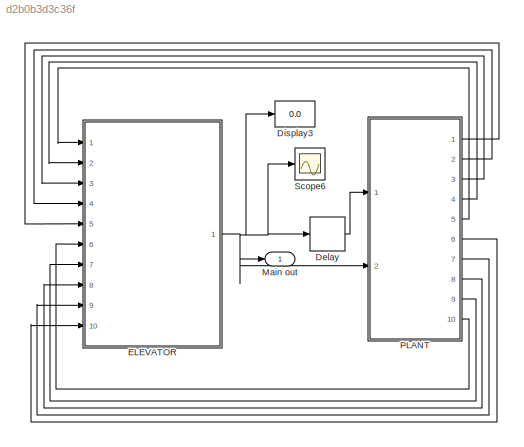
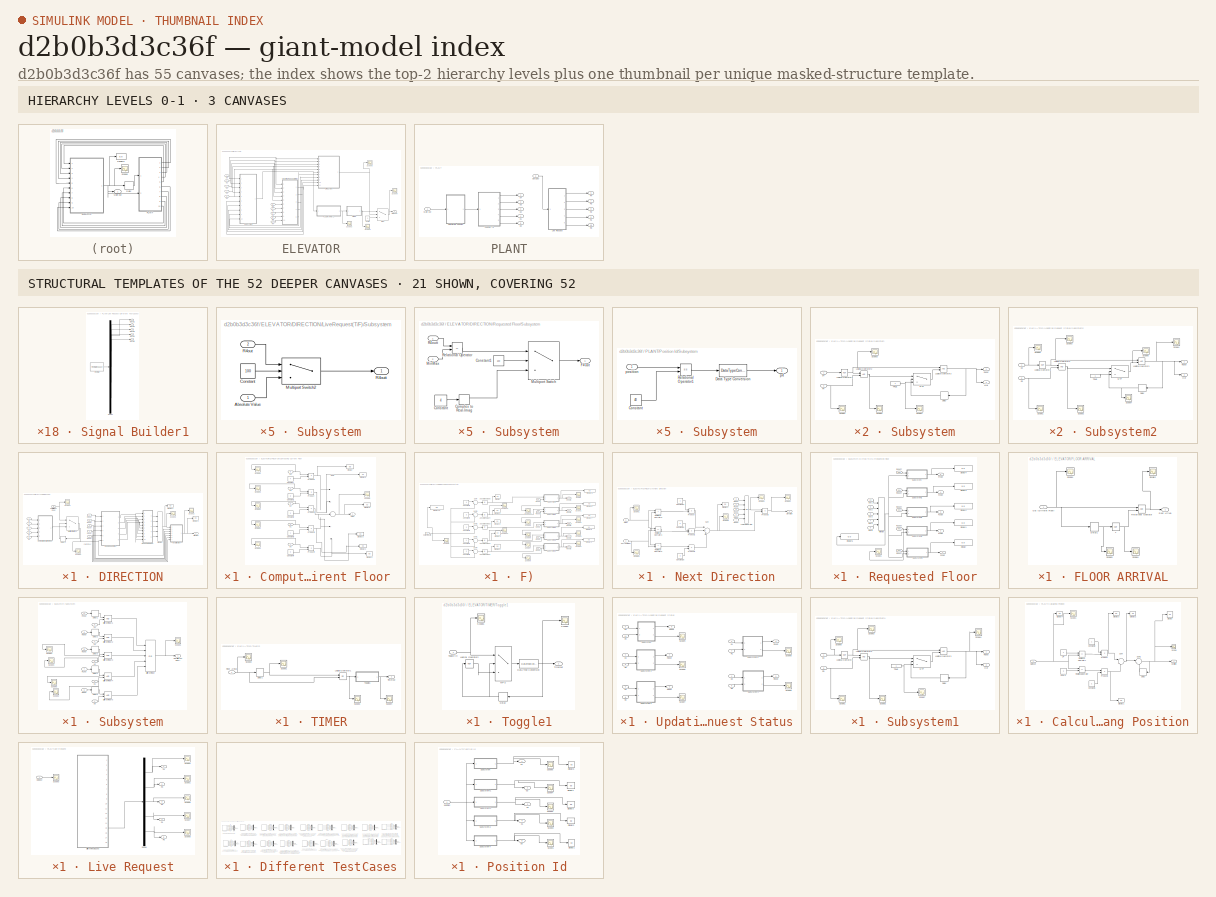
[diagram: thumbnail index - top-2 hierarchy levels (3 canvases) + 21 structural-template representatives of the remaining 52 canvases]
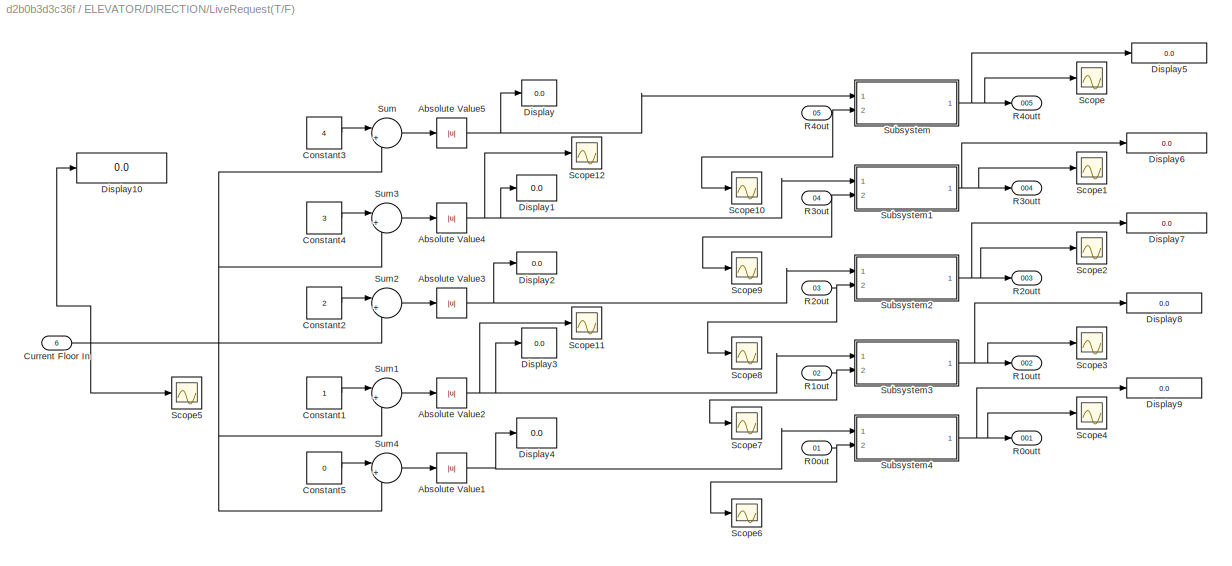
MODEL slx_d2b0b3d3c36f
KIND model
WORKSPACE source: MAT-file member
WORKSPACE i = 2
BLOCK [Delay] Delay
  DelayLength = 1
  InitialCondition = 0
  InputPortMap = u0
  Ports = [1, 1]
  SampleTime = 1
BLOCK [Display] Display3
  Decimation = 1
  Lockdown = off
  Ports = [1]
BLOCK [SubSystem] ELEVATOR
  FunctionWithSeparateData = off
  MaskHideContents = off
  MinAlgLoopOccurrences = off
  Opaque = off
  Ports = [10, 1]
  PropExecContextOutsideSubsystem = off
  RTWSystemCode = Auto
  RequestExecContextInheritance = off
BLOCK [SubSystem] ELEVATOR/DIRECTION
  FunctionWithSeparateData = off
  MaskHideContents = off
  MinAlgLoopOccurrences = off
  Opaque = off
  Ports = [11, 1]
  PropExecContextOutsideSubsystem = off
  RTWSystemCode = Auto
  RequestExecContextInheritance = off
BLOCK [Outport] ELEVATOR/DIRECTION/ Direction 
  IconDisplay = Port number
  OutDataTypeStr = int32
BLOCK [SubSystem] ELEVATOR/DIRECTION/Computing Current Floor 
  FunctionWithSeparateData = off
  MaskHideContents = off
  MinAlgLoopOccurrences = off
  Opaque = off
  Ports = [5, 1]
  PropExecContextOutsideSubsystem = off
  RTWSystemCode = Auto
  RequestExecContextInheritance = off
BLOCK [Constant] ELEVATOR/DIRECTION/Computing Current Floor /Constant
  OutDataTypeStr = int32
  Value = 4
BLOCK [Constant] ELEVATOR/DIRECTION/Computing Current Floor /Constant1
  OutDataTypeStr = int32
  Value = 3
BLOCK [Constant] ELEVATOR/DIRECTION/Computing Current Floor /Constant2
  OutDataTypeStr = int32
  Value = 2
BLOCK [Constant] ELEVATOR/DIRECTION/Computing Current Floor /Constant3
  OutDataTypeStr = int32
BLOCK [Constant] ELEVATOR/DIRECTION/Computing Current Floor /Constant4
  OutDataTypeStr = int32
  Value = 0
BLOCK [Display] ELEVATOR/DIRECTION/Computing Current Floor /Display
  Decimation = 1
  Lockdown = off
  Ports = [1]
BLOCK [Display] ELEVATOR/DIRECTION/Computing Current Floor /Display1
  Decimation = 1
  Lockdown = off
  Ports = [1]
BLOCK [Display] ELEVATOR/DIRECTION/Computing Current Floor /Display2
  Decimation = 1
  Lockdown = off
  Ports = [1]
BLOCK [Display] ELEVATOR/DIRECTION/Computing Current Floor /Display3
  Decimation = 1
  Lockdown = off
  Ports = [1]
BLOCK [Display] ELEVATOR/DIRECTION/Computing Current Floor /Display4
  Decimation = 1
  Lockdown = off
  Ports = [1]
BLOCK [Display] ELEVATOR/DIRECTION/Computing Current Floor /Display5
  Decimation = 1
  Lockdown = off
  Ports = [1]
BLOCK [Product] ELEVATOR/DIRECTION/Computing Current Floor /Product
  InputSameDT = off
  OutDataTypeStr = int32
  Ports = [2, 1]
  RndMeth = Floor
  SaturateOnIntegerOverflow = off
BLOCK [Product] ELEVATOR/DIRECTION/Computing Current Floor /Product1
  InputSameDT = off
  OutDataTypeStr = int32
  Ports = [2, 1]
  RndMeth = Floor
  SaturateOnIntegerOverflow = off
BLOCK [Product] ELEVATOR/DIRECTION/Computing Current Floor /Product2
  InputSameDT = off
  OutDataTypeStr = int32
  Ports = [2, 1]
  RndMeth = Floor
  SaturateOnIntegerOverflow = off
BLOCK [Product] ELEVATOR/DIRECTION/Computing Current Floor /Product3
  InputSameDT = off
  OutDataTypeStr = int32
  Ports = [2, 1]
  RndMeth = Floor
  SaturateOnIntegerOverflow = off
BLOCK [Product] ELEVATOR/DIRECTION/Computing Current Floor /Product4
  InputSameDT = off
  OutDataTypeStr = int32
  Ports = [2, 1]
  RndMeth = Floor
  SaturateOnIntegerOverflow = off
BLOCK [Scope] ELEVATOR/DIRECTION/Computing Current Floor /Scope1
  DataFormat = StructureWithTime
  Floating = off
  NumInputPorts = 1
  Ports = [1]
  SampleTime = 0
  SaveName = ScopeData58
  ShowLegends = off
BLOCK [Scope] ELEVATOR/DIRECTION/Computing Current Floor /Scope2
  DataFormat = StructureWithTime
  Floating = off
  NumInputPorts = 1
  Ports = [1]
  SampleTime = 0
  SaveName = ScopeData59
  ShowLegends = off
BLOCK [Scope] ELEVATOR/DIRECTION/Computing Current Floor /Scope3
  DataFormat = StructureWithTime
  Floating = off
  NumInputPorts = 1
  Ports = [1]
  SampleTime = 0
  SaveName = ScopeData60
  ShowLegends = off
BLOCK [Scope] ELEVATOR/DIRECTION/Computing Current Floor /Scope4
  DataFormat = StructureWithTime
  Floating = off
  NumInputPorts = 1
  Ports = [1]
  SampleTime = 0
  SaveName = ScopeData57
  ShowLegends = off
BLOCK [Scope] ELEVATOR/DIRECTION/Computing Current Floor /Scope5
  DataFormat = StructureWithTime
  Floating = off
  NumInputPorts = 1
  Ports = [1]
  SampleTime = 0
  SaveName = ScopeData61
  ShowLegends = off
BLOCK [Scope] ELEVATOR/DIRECTION/Computing Current Floor /Scope6
  DataFormat = StructureWithTime
  Floating = off
  NumInputPorts = 1
  Ports = [1]
  SampleTime = 0
  SaveName = ScopeData62
  ShowLegends = off
BLOCK [Sum] ELEVATOR/DIRECTION/Computing Current Floor /Sum
  AccumDataTypeStr = int32
  IconShape = round
  InputSameDT = off
  Inputs = |+++++
  OutDataTypeStr = int32
  Ports = [5, 1]
  SaturateOnIntegerOverflow = off
BLOCK [Outport] ELEVATOR/DIRECTION/Computing Current Floor /cfout
  IconDisplay = Port number
  OutDataTypeStr = int32
BLOCK [Inport] ELEVATOR/DIRECTION/Computing Current Floor /p0
  IconDisplay = Port number
  OutDataTypeStr = boolean
BLOCK [Inport] ELEVATOR/DIRECTION/Computing Current Floor /p1
  IconDisplay = Port number
  OutDataTypeStr = boolean
  Port = 2
BLOCK [Inport] ELEVATOR/DIRECTION/Computing Current Floor /p2
  IconDisplay = Port number
  OutDataTypeStr = boolean
  Port = 3
BLOCK [Inport] ELEVATOR/DIRECTION/Computing Current Floor /p3
  IconDisplay = Port number
  OutDataTypeStr = boolean
  Port = 4
BLOCK [Inport] ELEVATOR/DIRECTION/Computing Current Floor /p4
  IconDisplay = Port number
  OutDataTypeStr = boolean
  Port = 5
BLOCK [Delay] ELEVATOR/DIRECTION/Delay1
  DelayLength = 1
  InputPortMap = u0
  Ports = [1, 1]
  SampleTime = 1
BLOCK [Display] ELEVATOR/DIRECTION/Display1
  Decimation = 1
  Lockdown = off
  Ports = [1]
BLOCK [Display] ELEVATOR/DIRECTION/Display2
  Decimation = 1
  Lockdown = off
  Ports = [1]
BLOCK [SubSystem] ELEVATOR/DIRECTION/LiveRequest(T//F)
  FunctionWithSeparateData = off
  MaskHideContents = off
  MinAlgLoopOccurrences = off
  Opaque = off
  Ports = [6, 5]
  PropExecContextOutsideSubsystem = off
  RTWSystemCode = Auto
  RequestExecContextInheritance = off
BLOCK [Abs] ELEVATOR/DIRECTION/LiveRequest(T//F)/Absolute Value1
  OutDataTypeStr = int32
  SaturateOnIntegerOverflow = off
BLOCK [Abs] ELEVATOR/DIRECTION/LiveRequest(T//F)/Absolute Value2
  OutDataTypeStr = int32
  SaturateOnIntegerOverflow = off
BLOCK [Abs] ELEVATOR/DIRECTION/LiveRequest(T//F)/Absolute Value3
  OutDataTypeStr = int32
  SaturateOnIntegerOverflow = off
BLOCK [Abs] ELEVATOR/DIRECTION/LiveRequest(T//F)/Absolute Value4
  OutDataTypeStr = int32
  SaturateOnIntegerOverflow = off
BLOCK [Abs] ELEVATOR/DIRECTION/LiveRequest(T//F)/Absolute Value5
  OutDataTypeStr = int32
  SaturateOnIntegerOverflow = off
BLOCK [Constant] ELEVATOR/DIRECTION/LiveRequest(T//F)/Constant1
  OutDataTypeStr = int32
BLOCK [Constant] ELEVATOR/DIRECTION/LiveRequest(T//F)/Constant2
  OutDataTypeStr = int32
  Value = 2
BLOCK [Constant] ELEVATOR/DIRECTION/LiveRequest(T//F)/Constant3
  OutDataTypeStr = int32
  Value = 4
BLOCK [Constant] ELEVATOR/DIRECTION/LiveRequest(T//F)/Constant4
  OutDataTypeStr = int32
  Value = 3
BLOCK [Constant] ELEVATOR/DIRECTION/LiveRequest(T//F)/Constant5
  OutDataTypeStr = int32
  Value = 0
BLOCK [Inport] ELEVATOR/DIRECTION/LiveRequest(T//F)/Current Floor In
  IconDisplay = Port number
  OutDataTypeStr = int32
  Port = 6
BLOCK [Display] ELEVATOR/DIRECTION/LiveRequest(T//F)/Display
  Decimation = 1
  Lockdown = off
  Ports = [1]
BLOCK [Display] ELEVATOR/DIRECTION/LiveRequest(T//F)/Display1
  Decimation = 1
  Lockdown = off
  Ports = [1]
BLOCK [Display] ELEVATOR/DIRECTION/LiveRequest(T//F)/Display10
  Decimation = 1
  Lockdown = off
  Ports = [1]
BLOCK [Display] ELEVATOR/DIRECTION/LiveRequest(T//F)/Display2
  Decimation = 1
  Lockdown = off
  Ports = [1]
BLOCK [Display] ELEVATOR/DIRECTION/LiveRequest(T//F)/Display3
  Decimation = 1
  Lockdown = off
  Ports = [1]
BLOCK [Display] ELEVATOR/DIRECTION/LiveRequest(T//F)/Display4
  Decimation = 1
  Lockdown = off
  Ports = [1]
BLOCK [Display] ELEVATOR/DIRECTION/LiveRequest(T//F)/Display5
  Decimation = 1
  Lockdown = off
  Ports = [1]
BLOCK [Display] ELEVATOR/DIRECTION/LiveRequest(T//F)/Display6
  Decimation = 1
  Lockdown = off
  Ports = [1]
BLOCK [Display] ELEVATOR/DIRECTION/LiveRequest(T//F)/Display7
  Decimation = 1
  Lockdown = off
  Ports = [1]
BLOCK [Display] ELEVATOR/DIRECTION/LiveRequest(T//F)/Display8
  Decimation = 1
  Lockdown = off
  Ports = [1]
BLOCK [Display] ELEVATOR/DIRECTION/LiveRequest(T//F)/Display9
  Decimation = 1
  Lockdown = off
  Ports = [1]
BLOCK [Inport] ELEVATOR/DIRECTION/LiveRequest(T//F)/R0out
  IconDisplay = Port number
  OutDataTypeStr = boolean
  Port = 01
BLOCK [Outport] ELEVATOR/DIRECTION/LiveRequest(T//F)/R0outt
  IconDisplay = Port number
  OutDataTypeStr = int32
  Port = 001
BLOCK [Inport] ELEVATOR/DIRECTION/LiveRequest(T//F)/R1out
  IconDisplay = Port number
  OutDataTypeStr = boolean
  Port = 02
BLOCK [Outport] ELEVATOR/DIRECTION/LiveRequest(T//F)/R1outt
  IconDisplay = Port number
  OutDataTypeStr = int32
  Port = 002
BLOCK [Inport] ELEVATOR/DIRECTION/LiveRequest(T//F)/R2out
  IconDisplay = Port number
  OutDataTypeStr = boolean
  Port = 03
BLOCK [Outport] ELEVATOR/DIRECTION/LiveRequest(T//F)/R2outt
  IconDisplay = Port number
  OutDataTypeStr = int32
  Port = 003
BLOCK [Inport] ELEVATOR/DIRECTION/LiveRequest(T//F)/R3out
  IconDisplay = Port number
  OutDataTypeStr = boolean
  Port = 04
BLOCK [Outport] ELEVATOR/DIRECTION/LiveRequest(T//F)/R3outt
  IconDisplay = Port number
  OutDataTypeStr = int32
  Port = 004
BLOCK [Inport] ELEVATOR/DIRECTION/LiveRequest(T//F)/R4out
  IconDisplay = Port number
  OutDataTypeStr = boolean
  Port = 05
BLOCK [Outport] ELEVATOR/DIRECTION/LiveRequest(T//F)/R4outt
  IconDisplay = Port number
  OutDataTypeStr = int32
  Port = 005
BLOCK [Scope] ELEVATOR/DIRECTION/LiveRequest(T//F)/Scope
  DataFormat = StructureWithTime
  Floating = off
  NumInputPorts = 1
  Ports = [1]
  SampleTime = 0
  SaveName = ScopeData35
  ShowLegends = off
BLOCK [Scope] ELEVATOR/DIRECTION/LiveRequest(T//F)/Scope1
  DataFormat = StructureWithTime
  Floating = off
  NumInputPorts = 1
  Ports = [1]
  SampleTime = 0
  SaveName = ScopeData36
  ShowLegends = off
BLOCK [Scope] ELEVATOR/DIRECTION/LiveRequest(T//F)/Scope10
  DataFormat = StructureWithTime
  Floating = off
  NumInputPorts = 1
  Ports = [1]
  SampleTime = 0
  SaveName = ScopeData71
  ShowLegends = off
BLOCK [Scope] ELEVATOR/DIRECTION/LiveRequest(T//F)/Scope11
  DataFormat = StructureWithTime
  Floating = off
  NumInputPorts = 1
  Ports = [1]
  SampleTime = 0
  SaveName = ScopeData51
  ShowLegends = off
BLOCK [Scope] ELEVATOR/DIRECTION/LiveRequest(T//F)/Scope12
  DataFormat = StructureWithTime
  Floating = off
  NumInputPorts = 1
  Ports = [1]
  SampleTime = 0
  SaveName = ScopeData52
  ShowLegends = off
BLOCK [Scope] ELEVATOR/DIRECTION/LiveRequest(T//F)/Scope2
  DataFormat = StructureWithTime
  Floating = off
  NumInputPorts = 1
  Ports = [1]
  SampleTime = 0
  SaveName = ScopeData37
  ShowLegends = off
BLOCK [Scope] ELEVATOR/DIRECTION/LiveRequest(T//F)/Scope3
  DataFormat = StructureWithTime
  Floating = off
  NumInputPorts = 1
  Ports = [1]
  SampleTime = 0
  SaveName = ScopeData38
  ShowLegends = off
BLOCK [Scope] ELEVATOR/DIRECTION/LiveRequest(T//F)/Scope4
  DataFormat = StructureWithTime
  Floating = off
  NumInputPorts = 1
  Ports = [1]
  SampleTime = 0
  SaveName = ScopeData39
  ShowLegends = off
BLOCK [Scope] ELEVATOR/DIRECTION/LiveRequest(T//F)/Scope5
  DataFormat = StructureWithTime
  Floating = off
  NumInputPorts = 1
  Ports = [1]
  SampleTime = 0
  SaveName = ScopeData64
  ShowLegends = off
BLOCK [Scope] ELEVATOR/DIRECTION/LiveRequest(T//F)/Scope6
  DataFormat = StructureWithTime
  Floating = off
  NumInputPorts = 1
  Ports = [1]
  SampleTime = 0
  SaveName = ScopeData67
  ShowLegends = off
BLOCK [Scope] ELEVATOR/DIRECTION/LiveRequest(T//F)/Scope7
  DataFormat = StructureWithTime
  Floating = off
  NumInputPorts = 1
  Ports = [1]
  SampleTime = 0
  SaveName = ScopeData68
  ShowLegends = off
BLOCK [Scope] ELEVATOR/DIRECTION/LiveRequest(T//F)/Scope8
  DataFormat = StructureWithTime
  Floating = off
  NumInputPorts = 1
  Ports = [1]
  SampleTime = 0
  SaveName = ScopeData69
  ShowLegends = off
BLOCK [Scope] ELEVATOR/DIRECTION/LiveRequest(T//F)/Scope9
  DataFormat = StructureWithTime
  Floating = off
  NumInputPorts = 1
  Ports = [1]
  SampleTime = 0
  SaveName = ScopeData70
  ShowLegends = off
BLOCK [SubSystem] ELEVATOR/DIRECTION/LiveRequest(T//F)/Subsystem
  FunctionWithSeparateData = off
  MaskHideContents = off
  MinAlgLoopOccurrences = off
  Opaque = off
  Ports = [2, 1]
  PropExecContextOutsideSubsystem = off
  RTWSystemCode = Auto
  RequestExecContextInheritance = off
BLOCK [Inport] ELEVATOR/DIRECTION/LiveRequest(T//F)/Subsystem/Absolute Value
  IconDisplay = Port number
  OutDataTypeStr = int32
BLOCK [Constant] ELEVATOR/DIRECTION/LiveRequest(T//F)/Subsystem/Constant
  OutDataTypeStr = int32
  Value = 100
BLOCK [MultiPortSwitch] ELEVATOR/DIRECTION/LiveRequest(T//F)/Subsystem/Multiport Switch2
  DataPortOrder = Zero-based contiguous
  DiagnosticForDefault = None
  InputSameDT = off
  Inputs = 2
  OutDataTypeStr = int32
  Ports = [3, 1]
  SaturateOnIntegerOverflow = off
BLOCK [Inport] ELEVATOR/DIRECTION/LiveRequest(T//F)/Subsystem/R4out
  IconDisplay = Port number
  OutDataTypeStr = boolean
  Port = 2
BLOCK [Outport] ELEVATOR/DIRECTION/LiveRequest(T//F)/Subsystem/R4outt
  IconDisplay = Port number
  OutDataTypeStr = int32
BLOCK [SubSystem] ELEVATOR/DIRECTION/LiveRequest(T//F)/Subsystem1
  FunctionWithSeparateData = off
  MaskHideContents = off
  MinAlgLoopOccurrences = off
  Opaque = off
  Ports = [2, 1]
  PropExecContextOutsideSubsystem = off
  RTWSystemCode = Auto
  RequestExecContextInheritance = off
BLOCK [Inport] ELEVATOR/DIRECTION/LiveRequest(T//F)/Subsystem1/Absolute Value
  IconDisplay = Port number
  OutDataTypeStr = int32
BLOCK [Constant] ELEVATOR/DIRECTION/LiveRequest(T//F)/Subsystem1/Constant
  OutDataTypeStr = int32
  Value = 100
BLOCK [MultiPortSwitch] ELEVATOR/DIRECTION/LiveRequest(T//F)/Subsystem1/Multiport Switch
  DataPortOrder = Zero-based contiguous
  DiagnosticForDefault = None
  InputSameDT = off
  Inputs = 2
  OutDataTypeStr = int32
  Ports = [3, 1]
  SaturateOnIntegerOverflow = off
BLOCK [Inport] ELEVATOR/DIRECTION/LiveRequest(T//F)/Subsystem1/R3out
  IconDisplay = Port number
  OutDataTypeStr = boolean
  Port = 2
BLOCK [Outport] ELEVATOR/DIRECTION/LiveRequest(T//F)/Subsystem1/R3outt
  IconDisplay = Port number
  OutDataTypeStr = int32
BLOCK [SubSystem] ELEVATOR/DIRECTION/LiveRequest(T//F)/Subsystem2
  FunctionWithSeparateData = off
  MaskHideContents = off
  MinAlgLoopOccurrences = off
  Opaque = off
  Ports = [2, 1]
  PropExecContextOutsideSubsystem = off
  RTWSystemCode = Auto
  RequestExecContextInheritance = off
BLOCK [Inport] ELEVATOR/DIRECTION/LiveRequest(T//F)/Subsystem2/Absolute Value
  IconDisplay = Port number
  OutDataTypeStr = int32
BLOCK [Constant] ELEVATOR/DIRECTION/LiveRequest(T//F)/Subsystem2/Constant
  OutDataTypeStr = int32
  Value = 100
BLOCK [MultiPortSwitch] ELEVATOR/DIRECTION/LiveRequest(T//F)/Subsystem2/Multiport Switch
  DataPortOrder = Zero-based contiguous
  DiagnosticForDefault = None
  InputSameDT = off
  Inputs = 2
  OutDataTypeStr = int32
  Ports = [3, 1]
  SaturateOnIntegerOverflow = off
BLOCK [Inport] ELEVATOR/DIRECTION/LiveRequest(T//F)/Subsystem2/R2out
  IconDisplay = Port number
  OutDataTypeStr = boolean
  Port = 2
BLOCK [Outport] ELEVATOR/DIRECTION/LiveRequest(T//F)/Subsystem2/R2outt
  IconDisplay = Port number
  OutDataTypeStr = int32
BLOCK [SubSystem] ELEVATOR/DIRECTION/LiveRequest(T//F)/Subsystem3
  FunctionWithSeparateData = off
  MaskHideContents = off
  MinAlgLoopOccurrences = off
  Opaque = off
  Ports = [2, 1]
  PropExecContextOutsideSubsystem = off
  RTWSystemCode = Auto
  RequestExecContextInheritance = off
BLOCK [Inport] ELEVATOR/DIRECTION/LiveRequest(T//F)/Subsystem3/Absolute Value
  IconDisplay = Port number
  OutDataTypeStr = int32
BLOCK [Constant] ELEVATOR/DIRECTION/LiveRequest(T//F)/Subsystem3/Constant
  OutDataTypeStr = int32
  Value = 100
BLOCK [MultiPortSwitch] ELEVATOR/DIRECTION/LiveRequest(T//F)/Subsystem3/Multiport Switch
  DataPortOrder = Zero-based contiguous
  DiagnosticForDefault = None
  InputSameDT = off
  Inputs = 2
  OutDataTypeStr = int32
  Ports = [3, 1]
  SaturateOnIntegerOverflow = off
BLOCK [Inport] ELEVATOR/DIRECTION/LiveRequest(T//F)/Subsystem3/R1out
  IconDisplay = Port number
  OutDataTypeStr = boolean
  Port = 2
BLOCK [Outport] ELEVATOR/DIRECTION/LiveRequest(T//F)/Subsystem3/R1outt
  IconDisplay = Port number
  OutDataTypeStr = int32
BLOCK [SubSystem] ELEVATOR/DIRECTION/LiveRequest(T//F)/Subsystem4
  FunctionWithSeparateData = off
  MaskHideContents = off
  MinAlgLoopOccurrences = off
  Opaque = off
  Ports = [2, 1]
  PropExecContextOutsideSubsystem = off
  RTWSystemCode = Auto
  RequestExecContextInheritance = off
BLOCK [Inport] ELEVATOR/DIRECTION/LiveRequest(T//F)/Subsystem4/Absolute Value
  IconDisplay = Port number
  OutDataTypeStr = int32
BLOCK [Constant] ELEVATOR/DIRECTION/LiveRequest(T//F)/Subsystem4/Constant
  OutDataTypeStr = int32
  Value = 100
BLOCK [MultiPortSwitch] ELEVATOR/DIRECTION/LiveRequest(T//F)/Subsystem4/Multiport Switch
  DataPortOrder = Zero-based contiguous
  DiagnosticForDefault = None
  InputSameDT = off
  Inputs = 2
  OutDataTypeStr = int32
  Ports = [3, 1]
  SaturateOnIntegerOverflow = off
BLOCK [Inport] ELEVATOR/DIRECTION/LiveRequest(T//F)/Subsystem4/R0out
  IconDisplay = Port number
  OutDataTypeStr = boolean
  Port = 2
BLOCK [Outport] ELEVATOR/DIRECTION/LiveRequest(T//F)/Subsystem4/R0outt
  IconDisplay = Port number
  OutDataTypeStr = int32
BLOCK [Sum] ELEVATOR/DIRECTION/LiveRequest(T//F)/Sum
  AccumDataTypeStr = int32
  IconShape = round
  InputSameDT = off
  Inputs = |+-
  OutDataTypeStr = Inherit: Inherit via internal rule
  Ports = [2, 1]
  SaturateOnIntegerOverflow = off
BLOCK [Sum] ELEVATOR/DIRECTION/LiveRequest(T//F)/Sum1
  AccumDataTypeStr = int32
  IconShape = round
  InputSameDT = off
  Inputs = |+-
  OutDataTypeStr = Inherit: Inherit via internal rule
  Ports = [2, 1]
  SaturateOnIntegerOverflow = off
BLOCK [Sum] ELEVATOR/DIRECTION/LiveRequest(T//F)/Sum2
  AccumDataTypeStr = int32
  IconShape = round
  InputSameDT = off
  Inputs = |+-
  OutDataTypeStr = Inherit: Inherit via internal rule
  Ports = [2, 1]
  SaturateOnIntegerOverflow = off
BLOCK [Sum] ELEVATOR/DIRECTION/LiveRequest(T//F)/Sum3
  IconShape = round
  InputSameDT = off
  Inputs = |+-
  OutDataTypeStr = int32
  Ports = [2, 1]
  SaturateOnIntegerOverflow = off
BLOCK [Sum] ELEVATOR/DIRECTION/LiveRequest(T//F)/Sum4
  AccumDataTypeStr = int32
  IconShape = round
  InputSameDT = off
  Inputs = |+-
  OutDataTypeStr = Inherit: Inherit via internal rule
  Ports = [2, 1]
  SaturateOnIntegerOverflow = off
BLOCK [MinMax] ELEVATOR/DIRECTION/MinMax
  InputSameDT = off
  Inputs = 5
  OutDataTypeStr = int32
  Ports = [5, 1]
  SaturateOnIntegerOverflow = off
BLOCK [MultiPortSwitch] ELEVATOR/DIRECTION/Multiport Switch1
  DataPortOrder = Zero-based contiguous
  DiagnosticForDefault = None
  Inputs = 2
  OutDataTypeStr = int32
  Ports = [3, 1]
  SaturateOnIntegerOverflow = off
BLOCK [SubSystem] ELEVATOR/DIRECTION/Next Direction
  FunctionWithSeparateData = off
  MaskHideContents = off
  MinAlgLoopOccurrences = off
  Opaque = off
  Ports = [7, 1]
  PropExecContextOutsideSubsystem = off
  RTWSystemCode = Auto
  RequestExecContextInheritance = off
BLOCK [Constant] ELEVATOR/DIRECTION/Next Direction/Constant13
  OutDataTypeStr = int32
BLOCK [Constant] ELEVATOR/DIRECTION/Next Direction/Constant15
  OutDataTypeStr = int32
  Value = 0
BLOCK [Constant] ELEVATOR/DIRECTION/Next Direction/Constant16
  OutDataTypeStr = int32
  Value = -1
BLOCK [Inport] ELEVATOR/DIRECTION/Next Direction/Current Floor
  IconDisplay = Port number
  OutDataTypeStr = int32
  Port = 2
BLOCK [Outport] ELEVATOR/DIRECTION/Next Direction/Direction
  IconDisplay = Port number
  OutDataTypeStr = int32
BLOCK [Display] ELEVATOR/DIRECTION/Next Direction/Display1
  Decimation = 1
  Lockdown = off
  Ports = [1]
BLOCK [Inport] ELEVATOR/DIRECTION/Next Direction/Floor
  IconDisplay = Port number
  OutDataTypeStr = int32
BLOCK [Logic] ELEVATOR/DIRECTION/Next Direction/Logical Operator
  AllPortsSameDT = off
  Inputs = 5
  Operator = OR
  OutDataTypeStr = boolean
  Ports = [5, 1]
BLOCK [Product] ELEVATOR/DIRECTION/Next Direction/Product
  InputSameDT = off
  OutDataTypeStr = int32
  Ports = [2, 1]
  RndMeth = Floor
  SaturateOnIntegerOverflow = off
BLOCK [Product] ELEVATOR/DIRECTION/Next Direction/Product1
  InputSameDT = off
  OutDataTypeStr = int32
  Ports = [2, 1]
  RndMeth = Floor
  SaturateOnIntegerOverflow = off
BLOCK [Product] ELEVATOR/DIRECTION/Next Direction/Product2
  InputSameDT = off
  OutDataTypeStr = int32
  Ports = [2, 1]
  RndMeth = Floor
  SaturateOnIntegerOverflow = off
BLOCK [Product] ELEVATOR/DIRECTION/Next Direction/Product3
  InputSameDT = off
  OutDataTypeStr = int32
  Ports = [2, 1]
  RndMeth = Floor
  SaturateOnIntegerOverflow = off
BLOCK [Inport] ELEVATOR/DIRECTION/Next Direction/R0out
  IconDisplay = Port number
  OutDataTypeStr = boolean
  Port = 3
BLOCK [Inport] ELEVATOR/DIRECTION/Next Direction/R1out
  IconDisplay = Port number
  OutDataTypeStr = boolean
  Port = 4
BLOCK [Inport] ELEVATOR/DIRECTION/Next Direction/R2out
  IconDisplay = Port number
  OutDataTypeStr = boolean
  Port = 5
BLOCK [Inport] ELEVATOR/DIRECTION/Next Direction/R3out
  IconDisplay = Port number
  OutDataTypeStr = boolean
  Port = 6
BLOCK [Inport] ELEVATOR/DIRECTION/Next Direction/R4out
  IconDisplay = Port number
  OutDataTypeStr = boolean
  Port = 7
BLOCK [RelationalOperator] ELEVATOR/DIRECTION/Next Direction/Relational Operator3
  InputSameDT = off
  Operator = ==
  OutDataTypeStr = boolean
  Ports = [2, 1]
BLOCK [RelationalOperator] ELEVATOR/DIRECTION/Next Direction/Relational Operator5
  InputSameDT = off
  Operator = >
  OutDataTypeStr = boolean
  Ports = [2, 1]
BLOCK [RelationalOperator] ELEVATOR/DIRECTION/Next Direction/Relational Operator6
  InputSameDT = off
  Operator = <
  OutDataTypeStr = boolean
  Ports = [2, 1]
BLOCK [Scope] ELEVATOR/DIRECTION/Next Direction/Scope1
  DataFormat = StructureWithTime
  Floating = off
  NumInputPorts = 1
  Ports = [1]
  SampleTime = 0
  SaveName = ScopeData29
  ShowLegends = off
BLOCK [Scope] ELEVATOR/DIRECTION/Next Direction/Scope2
  DataFormat = StructureWithTime
  Floating = off
  NumInputPorts = 1
  Ports = [1]
  SampleTime = 0
  SaveName = ScopeData54
  ShowLegends = off
BLOCK [Scope] ELEVATOR/DIRECTION/Next Direction/Scope3
  DataFormat = StructureWithTime
  Floating = off
  NumInputPorts = 1
  Ports = [1]
  SampleTime = 0
  SaveName = ScopeData56
  ShowLegends = off
BLOCK [Scope] ELEVATOR/DIRECTION/Next Direction/Scope4
  DataFormat = StructureWithTime
  Floating = off
  NumInputPorts = 1
  Ports = [1]
  SampleTime = 0
  SaveName = ScopeData89
  ShowLegends = off
BLOCK [Scope] ELEVATOR/DIRECTION/Next Direction/Scope5
  DataFormat = StructureWithTime
  Floating = off
  NumInputPorts = 1
  Ports = [1]
  SampleTime = 0
  SaveName = ScopeData90
  ShowLegends = off
BLOCK [Sum] ELEVATOR/DIRECTION/Next Direction/Sum
  AccumDataTypeStr = int32
  IconShape = round
  InputSameDT = off
  Inputs = |+++
  OutDataTypeStr = int32
  Ports = [3, 1]
  SaturateOnIntegerOverflow = off
BLOCK [Inport] ELEVATOR/DIRECTION/Out (Different Floor)
  IconDisplay = Port number
  OutDataTypeStr = boolean
  Port = 6
BLOCK [Inport] ELEVATOR/DIRECTION/R0out
  IconDisplay = Port number
  OutDataTypeStr = boolean
  Port = 11
BLOCK [Inport] ELEVATOR/DIRECTION/R1out
  IconDisplay = Port number
  OutDataTypeStr = boolean
  Port = 10
BLOCK [Inport] ELEVATOR/DIRECTION/R2out
  IconDisplay = Port number
  OutDataTypeStr = boolean
  Port = 9
BLOCK [Inport] ELEVATOR/DIRECTION/R3out
  IconDisplay = Port number
  OutDataTypeStr = boolean
  Port = 8
BLOCK [Inport] ELEVATOR/DIRECTION/R4out
  IconDisplay = Port number
  OutDataTypeStr = boolean
  Port = 7
BLOCK [SubSystem] ELEVATOR/DIRECTION/Requested Floor
  FunctionWithSeparateData = off
  MaskHideContents = off
  MinAlgLoopOccurrences = off
  Opaque = off
  Ports = [10, 5]
  PropExecContextOutsideSubsystem = off
  RTWSystemCode = Auto
  RequestExecContextInheritance = off
BLOCK [Display] ELEVATOR/DIRECTION/Requested Floor/Display
  Decimation = 1
  Lockdown = off
  Ports = [1]
BLOCK [Display] ELEVATOR/DIRECTION/Requested Floor/Display1
  Decimation = 1
  Lockdown = off
  Ports = [1]
BLOCK [Display] ELEVATOR/DIRECTION/Requested Floor/Display2
  Decimation = 1
  Lockdown = off
  Ports = [1]
BLOCK [Display] ELEVATOR/DIRECTION/Requested Floor/Display3
  Decimation = 1
  Lockdown = off
  Ports = [1]
BLOCK [Display] ELEVATOR/DIRECTION/Requested Floor/Display4
  Decimation = 1
  Lockdown = off
  Ports = [1]
BLOCK [Display] ELEVATOR/DIRECTION/Requested Floor/Display5
  Decimation = 1
  Lockdown = off
  Ports = [1]
BLOCK [Outport] ELEVATOR/DIRECTION/Requested Floor/F0Out
  IconDisplay = Port number
  OutDataTypeStr = int32
BLOCK [Outport] ELEVATOR/DIRECTION/Requested Floor/F1Out
  IconDisplay = Port number
  OutDataTypeStr = int32
  Port = 2
BLOCK [Outport] ELEVATOR/DIRECTION/Requested Floor/F2Out
  IconDisplay = Port number
  OutDataTypeStr = int32
  Port = 3
BLOCK [Outport] ELEVATOR/DIRECTION/Requested Floor/F3Out
  IconDisplay = Port number
  OutDataTypeStr = int32
  Port = 4
BLOCK [Outport] ELEVATOR/DIRECTION/Requested Floor/F4Out
  IconDisplay = Port number
  OutDataTypeStr = int32
  Port = 5
BLOCK [MinMax] ELEVATOR/DIRECTION/Requested Floor/MinMax
  InputSameDT = off
  Inputs = 5
  OutDataTypeStr = int32
  Ports = [5, 1]
  SaturateOnIntegerOverflow = off
BLOCK [Inport] ELEVATOR/DIRECTION/Requested Floor/R0outt
  IconDisplay = Port number
  OutDataTypeStr = int32
  Port = 001
BLOCK [Inport] ELEVATOR/DIRECTION/Requested Floor/R1outt
  IconDisplay = Port number
  OutDataTypeStr = int32
  Port = 002
BLOCK [Inport] ELEVATOR/DIRECTION/Requested Floor/R2outt
  IconDisplay = Port number
  OutDataTypeStr = int32
  Port = 003
BLOCK [Inport] ELEVATOR/DIRECTION/Requested Floor/R3outt
  IconDisplay = Port number
  OutDataTypeStr = int32
  Port = 004
BLOCK [Inport] ELEVATOR/DIRECTION/Requested Floor/R4outt
  IconDisplay = Port number
  OutDataTypeStr = int32
  Port = 005
BLOCK [Scope] ELEVATOR/DIRECTION/Requested Floor/Scope1
  DataFormat = StructureWithTime
  Floating = off
  NumInputPorts = 1
  Ports = [1]
  SampleTime = 0
  SaveName = ScopeData72
  ShowLegends = off
BLOCK [SubSystem] ELEVATOR/DIRECTION/Requested Floor/Subsystem
  FunctionWithSeparateData = off
  MaskHideContents = off
  MinAlgLoopOccurrences = off
  Opaque = off
  Ports = [2, 1]
  PropExecContextOutsideSubsystem = off
  RTWSystemCode = Auto
  RequestExecContextInheritance = off
BLOCK [ComplexToRealImag] ELEVATOR/DIRECTION/Requested Floor/Subsystem/Complex to Real-Imag
  Ports = [1, 2]
BLOCK [Constant] ELEVATOR/DIRECTION/Requested Floor/Subsystem/Constant
  OutDataTypeStr = int32
  Value = 4
BLOCK [Constant] ELEVATOR/DIRECTION/Requested Floor/Subsystem/Constant1
  OutDataTypeStr = int32
  Value = 100
BLOCK [Outport] ELEVATOR/DIRECTION/Requested Floor/Subsystem/F4Out
  IconDisplay = Port number
  OutDataTypeStr = int32
BLOCK [Inport] ELEVATOR/DIRECTION/Requested Floor/Subsystem/MinMax
  IconDisplay = Port number
  OutDataTypeStr = int32
  Port = 2
BLOCK [MultiPortSwitch] ELEVATOR/DIRECTION/Requested Floor/Subsystem/Multiport Switch
  DataPortOrder = Zero-based contiguous
  DiagnosticForDefault = None
  InputSameDT = off
  Inputs = 2
  OutDataTypeStr = int32
  Ports = [3, 1]
  SaturateOnIntegerOverflow = off
BLOCK [Inport] ELEVATOR/DIRECTION/Requested Floor/Subsystem/R4outt
  IconDisplay = Port number
  OutDataTypeStr = int32
BLOCK [RelationalOperator] ELEVATOR/DIRECTION/Requested Floor/Subsystem/Relational Operator
  InputSameDT = off
  Operator = ==
  OutDataTypeStr = boolean
  Ports = [2, 1]
BLOCK [SubSystem] ELEVATOR/DIRECTION/Requested Floor/Subsystem1
  FunctionWithSeparateData = off
  MaskHideContents = off
  MinAlgLoopOccurrences = off
  Opaque = off
  Ports = [2, 1]
  PropExecContextOutsideSubsystem = off
  RTWSystemCode = Auto
  RequestExecContextInheritance = off
BLOCK [ComplexToRealImag] ELEVATOR/DIRECTION/Requested Floor/Subsystem1/Complex to Real-Imag
  Ports = [1, 2]
BLOCK [Constant] ELEVATOR/DIRECTION/Requested Floor/Subsystem1/Constant
  OutDataTypeStr = int32
  Value = 3
BLOCK [Constant] ELEVATOR/DIRECTION/Requested Floor/Subsystem1/Constant1
  OutDataTypeStr = int32
  Value = 100
BLOCK [Outport] ELEVATOR/DIRECTION/Requested Floor/Subsystem1/F3Out
  IconDisplay = Port number
  OutDataTypeStr = int32
BLOCK [Inport] ELEVATOR/DIRECTION/Requested Floor/Subsystem1/MinMax
  IconDisplay = Port number
  OutDataTypeStr = int32
  Port = 2
BLOCK [MultiPortSwitch] ELEVATOR/DIRECTION/Requested Floor/Subsystem1/Multiport Switch
  DataPortOrder = Zero-based contiguous
  DiagnosticForDefault = None
  InputSameDT = off
  Inputs = 2
  OutDataTypeStr = int32
  Ports = [3, 1]
  SaturateOnIntegerOverflow = off
BLOCK [Inport] ELEVATOR/DIRECTION/Requested Floor/Subsystem1/R3outt
  IconDisplay = Port number
  OutDataTypeStr = int32
BLOCK [RelationalOperator] ELEVATOR/DIRECTION/Requested Floor/Subsystem1/Relational Operator
  InputSameDT = off
  Operator = ==
  OutDataTypeStr = boolean
  Ports = [2, 1]
BLOCK [SubSystem] ELEVATOR/DIRECTION/Requested Floor/Subsystem2
  FunctionWithSeparateData = off
  MaskHideContents = off
  MinAlgLoopOccurrences = off
  Opaque = off
  Ports = [2, 1]
  PropExecContextOutsideSubsystem = off
  RTWSystemCode = Auto
  RequestExecContextInheritance = off
BLOCK [ComplexToRealImag] ELEVATOR/DIRECTION/Requested Floor/Subsystem2/Complex to Real-Imag
  Ports = [1, 2]
BLOCK [Constant] ELEVATOR/DIRECTION/Requested Floor/Subsystem2/Constant
  OutDataTypeStr = int32
  Value = 2
BLOCK [Constant] ELEVATOR/DIRECTION/Requested Floor/Subsystem2/Constant1
  OutDataTypeStr = int32
  Value = 100
BLOCK [Outport] ELEVATOR/DIRECTION/Requested Floor/Subsystem2/F2Out
  IconDisplay = Port number
  OutDataTypeStr = int32
BLOCK [Inport] ELEVATOR/DIRECTION/Requested Floor/Subsystem2/MinMax
  IconDisplay = Port number
  OutDataTypeStr = int32
  Port = 2
BLOCK [MultiPortSwitch] ELEVATOR/DIRECTION/Requested Floor/Subsystem2/Multiport Switch
  DataPortOrder = Zero-based contiguous
  DiagnosticForDefault = None
  InputSameDT = off
  Inputs = 2
  OutDataTypeStr = int32
  Ports = [3, 1]
  SaturateOnIntegerOverflow = off
BLOCK [Inport] ELEVATOR/DIRECTION/Requested Floor/Subsystem2/R2outt
  IconDisplay = Port number
  OutDataTypeStr = int32
BLOCK [RelationalOperator] ELEVATOR/DIRECTION/Requested Floor/Subsystem2/Relational Operator
  InputSameDT = off
  Operator = ==
  OutDataTypeStr = boolean
  Ports = [2, 1]
BLOCK [SubSystem] ELEVATOR/DIRECTION/Requested Floor/Subsystem3
  FunctionWithSeparateData = off
  MaskHideContents = off
  MinAlgLoopOccurrences = off
  Opaque = off
  Ports = [2, 1]
  PropExecContextOutsideSubsystem = off
  RTWSystemCode = Auto
  RequestExecContextInheritance = off
BLOCK [ComplexToRealImag] ELEVATOR/DIRECTION/Requested Floor/Subsystem3/Complex to Real-Imag
  Ports = [1, 2]
BLOCK [Constant] ELEVATOR/DIRECTION/Requested Floor/Subsystem3/Constant
  OutDataTypeStr = int32
BLOCK [Constant] ELEVATOR/DIRECTION/Requested Floor/Subsystem3/Constant1
  OutDataTypeStr = int32
  Value = 100
BLOCK [Outport] ELEVATOR/DIRECTION/Requested Floor/Subsystem3/F1Out
  IconDisplay = Port number
  OutDataTypeStr = int32
BLOCK [Inport] ELEVATOR/DIRECTION/Requested Floor/Subsystem3/MinMax
  IconDisplay = Port number
  OutDataTypeStr = int32
  Port = 2
BLOCK [MultiPortSwitch] ELEVATOR/DIRECTION/Requested Floor/Subsystem3/Multiport Switch
  DataPortOrder = Zero-based contiguous
  DiagnosticForDefault = None
  InputSameDT = off
  Inputs = 2
  OutDataTypeStr = int32
  Ports = [3, 1]
  SaturateOnIntegerOverflow = off
BLOCK [Inport] ELEVATOR/DIRECTION/Requested Floor/Subsystem3/R1outt
  IconDisplay = Port number
  OutDataTypeStr = int32
BLOCK [RelationalOperator] ELEVATOR/DIRECTION/Requested Floor/Subsystem3/Relational Operator
  InputSameDT = off
  Operator = ==
  OutDataTypeStr = boolean
  Ports = [2, 1]
BLOCK [SubSystem] ELEVATOR/DIRECTION/Requested Floor/Subsystem4
  FunctionWithSeparateData = off
  MaskHideContents = off
  MinAlgLoopOccurrences = off
  Opaque = off
  Ports = [2, 1]
  PropExecContextOutsideSubsystem = off
  RTWSystemCode = Auto
  RequestExecContextInheritance = off
BLOCK [ComplexToRealImag] ELEVATOR/DIRECTION/Requested Floor/Subsystem4/Complex to Real-Imag
  Ports = [1, 2]
BLOCK [Constant] ELEVATOR/DIRECTION/Requested Floor/Subsystem4/Constant
  OutDataTypeStr = int32
  Value = 0
BLOCK [Constant] ELEVATOR/DIRECTION/Requested Floor/Subsystem4/Constant1
  OutDataTypeStr = int32
  Value = 100
BLOCK [Outport] ELEVATOR/DIRECTION/Requested Floor/Subsystem4/F0Out
  IconDisplay = Port number
  OutDataTypeStr = int32
BLOCK [Inport] ELEVATOR/DIRECTION/Requested Floor/Subsystem4/MinMax
  IconDisplay = Port number
  OutDataTypeStr = int32
  Port = 2
BLOCK [MultiPortSwitch] ELEVATOR/DIRECTION/Requested Floor/Subsystem4/Multiport Switch
  DataPortOrder = Zero-based contiguous
  DiagnosticForDefault = None
  InputSameDT = off
  Inputs = 2
  OutDataTypeStr = int32
  Ports = [3, 1]
  SaturateOnIntegerOverflow = off
BLOCK [Inport] ELEVATOR/DIRECTION/Requested Floor/Subsystem4/R0outt
  IconDisplay = Port number
  OutDataTypeStr = int32
BLOCK [RelationalOperator] ELEVATOR/DIRECTION/Requested Floor/Subsystem4/Relational Operator
  InputSameDT = off
  Operator = ==
  OutDataTypeStr = boolean
  Ports = [2, 1]
BLOCK [Inport] ELEVATOR/DIRECTION/Requested Floor/out1
  IconDisplay = Port number
  OutDataTypeStr = int32
  Port = 10
BLOCK [Inport] ELEVATOR/DIRECTION/Requested Floor/out2
  IconDisplay = Port number
  OutDataTypeStr = int32
  Port = 9
BLOCK [Inport] ELEVATOR/DIRECTION/Requested Floor/out3
  IconDisplay = Port number
  OutDataTypeStr = int32
  Port = 8
BLOCK [Inport] ELEVATOR/DIRECTION/Requested Floor/out4
  IconDisplay = Port number
  OutDataTypeStr = int32
  Port = 7
BLOCK [Inport] ELEVATOR/DIRECTION/Requested Floor/out5
  IconDisplay = Port number
  OutDataTypeStr = int32
  Port = 6
BLOCK [Scope] ELEVATOR/DIRECTION/Scope1
  DataFormat = StructureWithTime
  Floating = off
  NumInputPorts = 1
  Ports = [1]
  SampleTime = 0
  SaveName = ScopeData83
  ShowLegends = off
BLOCK [Scope] ELEVATOR/DIRECTION/Scope2
  DataFormat = StructureWithTime
  Floating = off
  NumInputPorts = 1
  Ports = [1]
  SampleTime = 0
  SaveName = ScopeData47
  ShowLegends = off
BLOCK [Scope] ELEVATOR/DIRECTION/Scope3
  DataFormat = StructureWithTime
  Floating = off
  NumInputPorts = 1
  Ports = [1]
  SampleTime = 0
  SaveName = ScopeData53
  ShowLegends = off
BLOCK [Scope] ELEVATOR/DIRECTION/Scope4
  DataFormat = StructureWithTime
  Floating = off
  NumInputPorts = 1
  Ports = [1]
  SampleTime = 0
  SaveName = ScopeData84
  ShowLegends = off
BLOCK [Inport] ELEVATOR/DIRECTION/p0
  IconDisplay = Port number
  OutDataTypeStr = boolean
BLOCK [Inport] ELEVATOR/DIRECTION/p1
  IconDisplay = Port number
  OutDataTypeStr = boolean
  Port = 2
BLOCK [Inport] ELEVATOR/DIRECTION/p2
  IconDisplay = Port number
  OutDataTypeStr = boolean
  Port = 3
BLOCK [Inport] ELEVATOR/DIRECTION/p3
  IconDisplay = Port number
  OutDataTypeStr = boolean
  Port = 4
BLOCK [Inport] ELEVATOR/DIRECTION/p4
  IconDisplay = Port number
  OutDataTypeStr = boolean
  Port = 5
BLOCK [SubSystem] ELEVATOR/FLOOR ARRIVAL
  FunctionWithSeparateData = off
  MaskHideContents = off
  MinAlgLoopOccurrences = off
  Opaque = off
  Ports = [1, 1]
  PropExecContextOutsideSubsystem = off
  RTWSystemCode = Auto
  RequestExecContextInheritance = off
BLOCK [Logic] ELEVATOR/FLOOR ARRIVAL/ 1
  AllPortsSameDT = off
  Operator = NOT
  OutDataTypeStr = boolean
  Ports = [1, 1]
BLOCK [Delay] ELEVATOR/FLOOR ARRIVAL/Delay1
  DelayLength = 1
  InputPortMap = u0
  Ports = [1, 1]
  SampleTime = 1
BLOCK [Outport] ELEVATOR/FLOOR ARRIVAL/Floor Arrival
  IconDisplay = Port number
  OutDataTypeStr = boolean
BLOCK [Inport] ELEVATOR/FLOOR ARRIVAL/Out (Differnt Floor)
  IconDisplay = Port number
  OutDataTypeStr = boolean
BLOCK [Logic] ELEVATOR/FLOOR ARRIVAL/Relational Operator 
  AllPortsSameDT = off
  OutDataTypeStr = boolean
  Ports = [2, 1]
BLOCK [Scope] ELEVATOR/FLOOR ARRIVAL/Scope1
  DataFormat = StructureWithTime
  Floating = off
  NumInputPorts = 1
  Ports = [1]
  SampleTime = 0
  SaveName = ScopeData31
  ShowLegends = off
BLOCK [Scope] ELEVATOR/FLOOR ARRIVAL/Scope2
  DataFormat = StructureWithTime
  Floating = off
  NumInputPorts = 1
  Ports = [1]
  SampleTime = 0
  SaveName = ScopeData32
  ShowLegends = off
BLOCK [Scope] ELEVATOR/FLOOR ARRIVAL/Scope3
  DataFormat = StructureWithTime
  Floating = off
  NumInputPorts = 1
  Ports = [1]
  SampleTime = 0
  SaveName = ScopeData75
  ShowLegends = off
BLOCK [Scope] ELEVATOR/FLOOR ARRIVAL/Scope4
  DataFormat = StructureWithTime
  Floating = off
  NumInputPorts = 1
  Ports = [1]
  SampleTime = 0
  SaveName = ScopeData77
  ShowLegends = off
BLOCK [MultiPortSwitch] ELEVATOR/MPS 
  DataPortOrder = Zero-based contiguous
  DiagnosticForDefault = None
  Inputs = 2
  OutDataTypeStr = int32
  Ports = [3, 1]
  SaturateOnIntegerOverflow = off
BLOCK [Outport] ELEVATOR/Main out
  IconDisplay = Port number
  OutDataTypeStr = int32
BLOCK [Inport] ELEVATOR/R0
  IconDisplay = Port number
  OutDataTypeStr = boolean
  Port = 6
BLOCK [Inport] ELEVATOR/R1
  IconDisplay = Port number
  OutDataTypeStr = boolean
  Port = 7
BLOCK [Inport] ELEVATOR/R2
  IconDisplay = Port number
  OutDataTypeStr = boolean
  Port = 8
BLOCK [Inport] ELEVATOR/R3
  IconDisplay = Port number
  OutDataTypeStr = boolean
  Port = 9
BLOCK [Inport] ELEVATOR/R4
  IconDisplay = Port number
  OutDataTypeStr = boolean
  Port = 10
BLOCK [Constant] ELEVATOR/STOP
  OutDataTypeStr = int32
  Value = 0
BLOCK [Scope] ELEVATOR/Scope3
  DataFormat = StructureWithTime
  Floating = off
  NumInputPorts = 1
  Ports = [1]
  SampleTime = 0
  SaveName = ScopeData76
  ShowLegends = off
  ZoomMode = yonly
BLOCK [Scope] ELEVATOR/Scope4
  DataFormat = StructureWithTime
  Floating = off
  NumInputPorts = 1
  Ports = [1]
  SampleTime = 0
  SaveName = ScopeData78
  ShowLegends = off
  ZoomMode = yonly
BLOCK [Scope] ELEVATOR/Scope5
  DataFormat = StructureWithTime
  Floating = off
  NumInputPorts = 1
  Ports = [1]
  SampleTime = 0
  SaveName = ScopeData8
  ShowLegends = off
  ZoomMode = yonly
BLOCK [Scope] ELEVATOR/Scope6
  DataFormat = StructureWithTime
  Floating = off
  NumInputPorts = 1
  Ports = [1]
  SampleTime = 0
  SaveName = ScopeData73
  ShowLegends = off
BLOCK [SubSystem] ELEVATOR/Subsystem
  FunctionWithSeparateData = off
  MaskHideContents = off
  MinAlgLoopOccurrences = off
  Opaque = off
  Ports = [10, 1]
  PropExecContextOutsideSubsystem = off
  RTWSystemCode = Auto
  RequestExecContextInheritance = off
BLOCK [Delay] ELEVATOR/Subsystem/Delay1
  DelayLength = 1
  InputPortMap = u0
  Ports = [1, 1]
  SampleTime = 1
BLOCK [Delay] ELEVATOR/Subsystem/Delay2
  DelayLength = 1
  InputPortMap = u0
  Ports = [1, 1]
  SampleTime = 1
BLOCK [Delay] ELEVATOR/Subsystem/Delay3
  DelayLength = 1
  InputPortMap = u0
  Ports = [1, 1]
  SampleTime = 1
BLOCK [Delay] ELEVATOR/Subsystem/Delay4
  DelayLength = 1
  InputPortMap = u0
  Ports = [1, 1]
  SampleTime = 1
BLOCK [Delay] ELEVATOR/Subsystem/Delay5
  DelayLength = 1
  InputPortMap = u0
  Ports = [1, 1]
  SampleTime = 1
BLOCK [Logic] ELEVATOR/Subsystem/Different Floor
  AllPortsSameDT = off
  Inputs = 5
  Operator = OR
  OutDataTypeStr = boolean
  Ports = [5, 1]
BLOCK [Logic] ELEVATOR/Subsystem/Different Floor1
  AllPortsSameDT = off
  OutDataTypeStr = boolean
  Ports = [2, 1]
BLOCK [Logic] ELEVATOR/Subsystem/Different Floor2
  AllPortsSameDT = off
  OutDataTypeStr = boolean
  Ports = [2, 1]
BLOCK [Logic] ELEVATOR/Subsystem/Different Floor3
  AllPortsSameDT = off
  OutDataTypeStr = boolean
  Ports = [2, 1]
BLOCK [Logic] ELEVATOR/Subsystem/Different Floor4
  AllPortsSameDT = off
  OutDataTypeStr = boolean
  Ports = [2, 1]
BLOCK [Logic] ELEVATOR/Subsystem/Different Floor5
  AllPortsSameDT = off
  OutDataTypeStr = boolean
  Ports = [2, 1]
BLOCK [Outport] ELEVATOR/Subsystem/Out (Different Floor)
  IconDisplay = Port number
  OutDataTypeStr = boolean
BLOCK [Inport] ELEVATOR/Subsystem/R0out
  IconDisplay = Port number
  OutDataTypeStr = boolean
  Port = 6
BLOCK [Inport] ELEVATOR/Subsystem/R1out
  IconDisplay = Port number
  OutDataTypeStr = boolean
  Port = 7
BLOCK [Inport] ELEVATOR/Subsystem/R2out
  IconDisplay = Port number
  OutDataTypeStr = boolean
  Port = 8
BLOCK [Inport] ELEVATOR/Subsystem/R3out
  IconDisplay = Port number
  OutDataTypeStr = boolean
  Port = 9
BLOCK [Inport] ELEVATOR/Subsystem/R4out
  IconDisplay = Port number
  OutDataTypeStr = boolean
  Port = 10
BLOCK [Scope] ELEVATOR/Subsystem/Scope1
  DataFormat = StructureWithTime
  Floating = off
  NumInputPorts = 1
  Ports = [1]
  SampleTime = 0
  SaveName = ScopeData45
  ShowLegends = off
  ZoomMode = yonly
BLOCK [Scope] ELEVATOR/Subsystem/Scope2
  DataFormat = StructureWithTime
  Floating = off
  NumInputPorts = 1
  Ports = [1]
  SampleTime = 0
  SaveName = ScopeData46
  ShowLegends = off
  ZoomMode = yonly
BLOCK [Scope] ELEVATOR/Subsystem/Scope3
  DataFormat = StructureWithTime
  Floating = off
  NumInputPorts = 1
  Ports = [1]
  SampleTime = 0
  SaveName = ScopeData65
  ShowLegends = off
  ZoomMode = yonly
BLOCK [Scope] ELEVATOR/Subsystem/Scope4
  DataFormat = StructureWithTime
  Floating = off
  NumInputPorts = 1
  Ports = [1]
  SampleTime = 0
  SaveName = ScopeData66
  ShowLegends = off
  ZoomMode = yonly
BLOCK [Scope] ELEVATOR/Subsystem/Scope5
  DataFormat = StructureWithTime
  Floating = off
  NumInputPorts = 1
  Ports = [1]
  SampleTime = 0
  SaveName = ScopeData44
  ShowLegends = off
  ZoomMode = yonly
BLOCK [Inport] ELEVATOR/Subsystem/p0
  IconDisplay = Port number
  OutDataTypeStr = boolean
BLOCK [Inport] ELEVATOR/Subsystem/p1
  IconDisplay = Port number
  OutDataTypeStr = boolean
  Port = 2
BLOCK [Inport] ELEVATOR/Subsystem/p2
  IconDisplay = Port number
  OutDataTypeStr = boolean
  Port = 3
BLOCK [Inport] ELEVATOR/Subsystem/p3
  IconDisplay = Port number
  OutDataTypeStr = boolean
  Port = 4
BLOCK [Inport] ELEVATOR/Subsystem/p4
  IconDisplay = Port number
  OutDataTypeStr = boolean
  Port = 5
  SampleTime = 1
BLOCK [SubSystem] ELEVATOR/TIMER
  FunctionWithSeparateData = off
  MaskHideContents = off
  MinAlgLoopOccurrences = off
  Opaque = off
  Ports = [1, 1]
  PropExecContextOutsideSubsystem = off
  RTWSystemCode = Auto
  RequestExecContextInheritance = off
BLOCK [Delay] ELEVATOR/TIMER/Delay1
  DelayLength = 10
  InputPortMap = u0
  Ports = [1, 1]
  SampleTime = 1
BLOCK [Inport] ELEVATOR/TIMER/Floor Arrival
  IconDisplay = Port number
  OutDataTypeStr = boolean
BLOCK [Logic] ELEVATOR/TIMER/Logical Operator1
  AllPortsSameDT = off
  Operator = OR
  OutDataTypeStr = boolean
  Ports = [2, 1]
BLOCK [Scope] ELEVATOR/TIMER/Scope1
  DataFormat = StructureWithTime
  Floating = off
  NumInputPorts = 1
  Ports = [1]
  SampleTime = 0
  SaveName = ScopeData33
  ShowLegends = off
  ZoomMode = yonly
BLOCK [Scope] ELEVATOR/TIMER/Scope2
  DataFormat = StructureWithTime
  Floating = off
  NumInputPorts = 1
  Ports = [1]
  SampleTime = 0
  SaveName = ScopeData30
  ShowLegends = off
  ZoomMode = yonly
BLOCK [Scope] ELEVATOR/TIMER/Scope3
  DataFormat = StructureWithTime
  Floating = off
  NumInputPorts = 1
  Ports = [1]
  SampleTime = 0
  SaveName = ScopeData48
  ShowLegends = off
  ZoomMode = yonly
BLOCK [Scope] ELEVATOR/TIMER/Scope4
  DataFormat = StructureWithTime
  Floating = off
  NumInputPorts = 1
  Ports = [1]
  SampleTime = 0
  SaveName = ScopeData50
  ShowLegends = off
  ZoomMode = yonly
BLOCK [Outport] ELEVATOR/TIMER/Timerout
  IconDisplay = Port number
  OutDataTypeStr = boolean
BLOCK [SubSystem] ELEVATOR/TIMER/Toggle1
  FunctionWithSeparateData = off
  MaskHideContents = off
  MinAlgLoopOccurrences = off
  Opaque = off
  Ports = [1, 1]
  PropExecContextOutsideSubsystem = off
  RTWSystemCode = Auto
  RequestExecContextInheritance = off
BLOCK [DataTypeConversion] ELEVATOR/TIMER/Toggle1/Data Type Conversion
  OutDataTypeStr = boolean
  RndMeth = Floor
  SaturateOnIntegerOverflow = off
BLOCK [Delay] ELEVATOR/TIMER/Toggle1/Delay
  DelayLength = 1
  InitialCondition = 0
  InputPortMap = u0
  Ports = [1, 1]
  SampleTime = 1
BLOCK [Logic] ELEVATOR/TIMER/Toggle1/Logical Operator2
  AllPortsSameDT = off
  Operator = NOT
  OutDataTypeStr = boolean
  Ports = [1, 1]
BLOCK [MultiPortSwitch] ELEVATOR/TIMER/Toggle1/MPS 
  DataPortOrder = Zero-based contiguous
  DiagnosticForDefault = None
  InputSameDT = off
  Inputs = 2
  OutDataTypeStr = int32
  Ports = [3, 1]
  SaturateOnIntegerOverflow = off
BLOCK [Scope] ELEVATOR/TIMER/Toggle1/Scope1
  DataFormat = StructureWithTime
  Floating = off
  NumInputPorts = 1
  Ports = [1]
  SampleTime = 0
  SaveName = ScopeData49
  ShowLegends = off
  ZoomMode = yonly
BLOCK [Scope] ELEVATOR/TIMER/Toggle1/Scope2
  DataFormat = StructureWithTime
  Floating = off
  NumInputPorts = 1
  Ports = [1]
  SampleTime = 0
  SaveName = ScopeData34
  ShowLegends = off
  ZoomMode = yonly
BLOCK [Outport] ELEVATOR/TIMER/Toggle1/Timerout
  IconDisplay = Port number
  OutDataTypeStr = boolean
BLOCK [Inport] ELEVATOR/TIMER/Toggle1/Toggle In
  IconDisplay = Port number
  OutDataTypeStr = boolean
BLOCK [SubSystem] ELEVATOR/Updating Request Status
  FunctionWithSeparateData = off
  MaskHideContents = off
  MinAlgLoopOccurrences = off
  Opaque = off
  Ports = [10, 5]
  PropExecContextOutsideSubsystem = off
  RTWSystemCode = Auto
  RequestExecContextInheritance = off
BLOCK [Inport] ELEVATOR/Updating Request Status/R0
  IconDisplay = Port number
  Port = 6
BLOCK [Outport] ELEVATOR/Updating Request Status/R0out
  IconDisplay = Port number
  OutDataTypeStr = boolean
BLOCK [Inport] ELEVATOR/Updating Request Status/R1
  IconDisplay = Port number
  OutDataTypeStr = boolean
  Port = 7
BLOCK [Outport] ELEVATOR/Updating Request Status/R1out
  IconDisplay = Port number
  OutDataTypeStr = boolean
  Port = 2
BLOCK [Inport] ELEVATOR/Updating Request Status/R2
  IconDisplay = Port number
  OutDataTypeStr = boolean
  Port = 8
BLOCK [Outport] ELEVATOR/Updating Request Status/R2out
  IconDisplay = Port number
  OutDataTypeStr = boolean
  Port = 3
BLOCK [Inport] ELEVATOR/Updating Request Status/R3
  IconDisplay = Port number
  OutDataTypeStr = boolean
  Port = 9
BLOCK [Outport] ELEVATOR/Updating Request Status/R3out
  IconDisplay = Port number
  OutDataTypeStr = boolean
  Port = 4
BLOCK [Inport] ELEVATOR/Updating Request Status/R4
  IconDisplay = Port number
  OutDataTypeStr = boolean
  Port = 10
BLOCK [Outport] ELEVATOR/Updating Request Status/R4out
  IconDisplay = Port number
  OutDataTypeStr = boolean
  Port = 5
BLOCK [Scope] ELEVATOR/Updating Request Status/Scope5
  DataFormat = StructureWithTime
  Floating = off
  NumInputPorts = 1
  Ports = [1]
  SampleTime = 0
  SaveName = ScopeData14
  ShowLegends = off
BLOCK [Scope] ELEVATOR/Updating Request Status/Scope6
  DataFormat = StructureWithTime
  Floating = off
  NumInputPorts = 1
  Ports = [1]
  SampleTime = 0
  SaveName = ScopeData15
  ShowLegends = off
BLOCK [Scope] ELEVATOR/Updating Request Status/Scope7
  DataFormat = StructureWithTime
  Floating = off
  NumInputPorts = 1
  Ports = [1]
  SampleTime = 0
  SaveName = ScopeData16
  ShowLegends = off
BLOCK [Scope] ELEVATOR/Updating Request Status/Scope8
  DataFormat = StructureWithTime
  Floating = off
  NumInputPorts = 1
  Ports = [1]
  SampleTime = 0
  SaveName = ScopeData17
  ShowLegends = off
BLOCK [Scope] ELEVATOR/Updating Request Status/Scope9
  DataFormat = StructureWithTime
  Floating = off
  NumInputPorts = 1
  Ports = [1]
  SampleTime = 0
  SaveName = ScopeData18
  ShowLegends = off
BLOCK [SubSystem] ELEVATOR/Updating Request Status/Subsystem
  FunctionWithSeparateData = off
  MaskHideContents = off
  MinAlgLoopOccurrences = off
  Opaque = off
  Ports = [2, 2]
  PropExecContextOutsideSubsystem = off
  RTWSystemCode = Auto
  RequestExecContextInheritance = off
BLOCK [Delay] ELEVATOR/Updating Request Status/Subsystem/Delay
  DelayLength = 1
  InputPortMap = u0
  Ports = [1, 1]
  SampleTime = 1
BLOCK [Logic] ELEVATOR/Updating Request Status/Subsystem/Logical Operator1
  AllPortsSameDT = off
  Operator = NOT
  OutDataTypeStr = boolean
  Ports = [1, 1]
BLOCK [Logic] ELEVATOR/Updating Request Status/Subsystem/Logical Operator2
  AllPortsSameDT = off
  OutDataTypeStr = boolean
  Ports = [2, 1]
BLOCK [Logic] ELEVATOR/Updating Request Status/Subsystem/Logical Operator3
  AllPortsSameDT = off
  OutDataTypeStr = boolean
  Ports = [2, 1]
BLOCK [MultiPortSwitch] ELEVATOR/Updating Request Status/Subsystem/MTP
  DataPortOrder = Zero-based contiguous
  DiagnosticForDefault = None
  InputSameDT = off
  Inputs = 2
  OutDataTypeStr = int32
  Ports = [3, 1]
  SaturateOnIntegerOverflow = off
BLOCK [Outport] ELEVATOR/Updating Request Status/Subsystem/Out
  IconDisplay = Port number
  OutDataTypeStr = boolean
  Port = 2
BLOCK [Inport] ELEVATOR/Updating Request Status/Subsystem/R4
  IconDisplay = Port number
  OutDataTypeStr = boolean
  Port = 2
BLOCK [Outport] ELEVATOR/Updating Request Status/Subsystem/R4out
  IconDisplay = Port number
  OutDataTypeStr = boolean
BLOCK [Scope] ELEVATOR/Updating Request Status/Subsystem/Scope1
  DataFormat = StructureWithTime
  Floating = off
  NumInputPorts = 1
  Ports = [1]
  SampleTime = 0
  SaveName = ScopeData24
  ShowLegends = off
BLOCK [Scope] ELEVATOR/Updating Request Status/Subsystem/Scope2
  DataFormat = StructureWithTime
  Floating = off
  NumInputPorts = 1
  Ports = [1]
  SampleTime = 0
  SaveName = ScopeData22
  ShowLegends = off
BLOCK [Scope] ELEVATOR/Updating Request Status/Subsystem/Scope3
  DataFormat = StructureWithTime
  Floating = off
  NumInputPorts = 1
  Ports = [1]
  SampleTime = 0
  SaveName = ScopeData13
  ShowLegends = off
BLOCK [Scope] ELEVATOR/Updating Request Status/Subsystem/Scope4
  DataFormat = StructureWithTime
  Floating = off
  NumInputPorts = 1
  Ports = [1]
  SampleTime = 0
  SaveName = ScopeData92
  ShowLegends = off
BLOCK [Constant] ELEVATOR/Updating Request Status/Subsystem/TRUE
  OutDataTypeStr = boolean
BLOCK [Inport] ELEVATOR/Updating Request Status/Subsystem/p4
  IconDisplay = Port number
  OutDataTypeStr = boolean
BLOCK [SubSystem] ELEVATOR/Updating Request Status/Subsystem1
  FunctionWithSeparateData = off
  MaskHideContents = off
  MinAlgLoopOccurrences = off
  Opaque = off
  Ports = [2, 2]
  PropExecContextOutsideSubsystem = off
  RTWSystemCode = Auto
  RequestExecContextInheritance = off
BLOCK [Delay] ELEVATOR/Updating Request Status/Subsystem1/Delay
  DelayLength = 1
  InputPortMap = u0
  Ports = [1, 1]
  SampleTime = 1
BLOCK [Logic] ELEVATOR/Updating Request Status/Subsystem1/Logical Operator1
  AllPortsSameDT = off
  Operator = NOT
  OutDataTypeStr = boolean
  Ports = [1, 1]
BLOCK [Logic] ELEVATOR/Updating Request Status/Subsystem1/Logical Operator2
  AllPortsSameDT = off
  OutDataTypeStr = boolean
  Ports = [2, 1]
BLOCK [Logic] ELEVATOR/Updating Request Status/Subsystem1/Logical Operator3
  AllPortsSameDT = off
  OutDataTypeStr = boolean
  Ports = [2, 1]
BLOCK [MultiPortSwitch] ELEVATOR/Updating Request Status/Subsystem1/MTP
  DataPortOrder = Zero-based contiguous
  DiagnosticForDefault = None
  InputSameDT = off
  Inputs = 2
  OutDataTypeStr = int32
  Ports = [3, 1]
  SaturateOnIntegerOverflow = off
BLOCK [Outport] ELEVATOR/Updating Request Status/Subsystem1/Out
  IconDisplay = Port number
  OutDataTypeStr = boolean
  Port = 2
BLOCK [Inport] ELEVATOR/Updating Request Status/Subsystem1/R3
  IconDisplay = Port number
  OutDataTypeStr = boolean
  Port = 2
BLOCK [Outport] ELEVATOR/Updating Request Status/Subsystem1/R3out
  IconDisplay = Port number
  OutDataTypeStr = boolean
BLOCK [Scope] ELEVATOR/Updating Request Status/Subsystem1/Scope1
  DataFormat = StructureWithTime
  Floating = off
  NumInputPorts = 1
  Ports = [1]
  SampleTime = 0
  SaveName = ScopeData12
  ShowLegends = off
BLOCK [Scope] ELEVATOR/Updating Request Status/Subsystem1/Scope2
  DataFormat = StructureWithTime
  Floating = off
  NumInputPorts = 1
  Ports = [1]
  SampleTime = 0
  SaveName = ScopeData21
  ShowLegends = off
BLOCK [Scope] ELEVATOR/Updating Request Status/Subsystem1/Scope3
  DataFormat = StructureWithTime
  Floating = off
  NumInputPorts = 1
  Ports = [1]
  SampleTime = 0
  SaveName = ScopeData25
  ShowLegends = off
BLOCK [Scope] ELEVATOR/Updating Request Status/Subsystem1/Scope4
  DataFormat = StructureWithTime
  Floating = off
  NumInputPorts = 1
  Ports = [1]
  SampleTime = 0
  SaveName = ScopeData55
  ShowLegends = off
BLOCK [Scope] ELEVATOR/Updating Request Status/Subsystem1/Scope5
  DataFormat = StructureWithTime
  Floating = off
  NumInputPorts = 1
  Ports = [1]
  SampleTime = 0
  SaveName = ScopeData94
  ShowLegends = off
BLOCK [Scope] ELEVATOR/Updating Request Status/Subsystem1/Scope7
  DataFormat = StructureWithTime
  Floating = off
  NumInputPorts = 1
  Ports = [1]
  SampleTime = 0
  SaveName = ScopeData93
  ShowLegends = off
BLOCK [Constant] ELEVATOR/Updating Request Status/Subsystem1/TRUE
  OutDataTypeStr = boolean
BLOCK [Inport] ELEVATOR/Updating Request Status/Subsystem1/p3
  IconDisplay = Port number
  OutDataTypeStr = boolean
BLOCK [SubSystem] ELEVATOR/Updating Request Status/Subsystem2
  FunctionWithSeparateData = off
  MaskHideContents = off
  MinAlgLoopOccurrences = off
  Opaque = off
  Ports = [2, 2]
  PropExecContextOutsideSubsystem = off
  RTWSystemCode = Auto
  RequestExecContextInheritance = off
BLOCK [Delay] ELEVATOR/Updating Request Status/Subsystem2/Delay
  DelayLength = 1
  InputPortMap = u0
  Ports = [1, 1]
  SampleTime = 1
BLOCK [Logic] ELEVATOR/Updating Request Status/Subsystem2/Logical Operator1
  AllPortsSameDT = off
  Operator = NOT
  OutDataTypeStr = boolean
  Ports = [1, 1]
BLOCK [Logic] ELEVATOR/Updating Request Status/Subsystem2/Logical Operator2
  AllPortsSameDT = off
  OutDataTypeStr = boolean
  Ports = [2, 1]
BLOCK [Logic] ELEVATOR/Updating Request Status/Subsystem2/Logical Operator3
  AllPortsSameDT = off
  OutDataTypeStr = boolean
  Ports = [2, 1]
BLOCK [MultiPortSwitch] ELEVATOR/Updating Request Status/Subsystem2/MTP
  DataPortOrder = Zero-based contiguous
  DiagnosticForDefault = None
  InputSameDT = off
  Inputs = 2
  OutDataTypeStr = int32
  Ports = [3, 1]
  SaturateOnIntegerOverflow = off
BLOCK [Outport] ELEVATOR/Updating Request Status/Subsystem2/Out
  IconDisplay = Port number
  OutDataTypeStr = boolean
  Port = 2
BLOCK [Inport] ELEVATOR/Updating Request Status/Subsystem2/R2
  IconDisplay = Port number
  OutDataTypeStr = boolean
  Port = 2
BLOCK [Outport] ELEVATOR/Updating Request Status/Subsystem2/R2out
  IconDisplay = Port number
  OutDataTypeStr = boolean
BLOCK [Scope] ELEVATOR/Updating Request Status/Subsystem2/Scope1
  DataFormat = StructureWithTime
  Floating = off
  NumInputPorts = 1
  Ports = [1]
  SampleTime = 0
  SaveName = ScopeData11
  ShowLegends = off
BLOCK [Scope] ELEVATOR/Updating Request Status/Subsystem2/Scope2
  DataFormat = StructureWithTime
  Floating = off
  NumInputPorts = 1
  Ports = [1]
  SampleTime = 0
  SaveName = ScopeData20
  ShowLegends = off
BLOCK [Scope] ELEVATOR/Updating Request Status/Subsystem2/Scope3
  DataFormat = StructureWithTime
  Floating = off
  NumInputPorts = 1
  Ports = [1]
  SampleTime = 0
  SaveName = ScopeData26
  ShowLegends = off
BLOCK [Scope] ELEVATOR/Updating Request Status/Subsystem2/Scope4
  DataFormat = StructureWithTime
  Floating = off
  NumInputPorts = 1
  Ports = [1]
  SampleTime = 0
  SaveName = ScopeData79
  ShowLegends = off
BLOCK [Scope] ELEVATOR/Updating Request Status/Subsystem2/Scope5
  DataFormat = StructureWithTime
  Floating = off
  NumInputPorts = 1
  Ports = [1]
  SampleTime = 0
  SaveName = ScopeData85
  ShowLegends = off
BLOCK [Scope] ELEVATOR/Updating Request Status/Subsystem2/Scope6
  DataFormat = StructureWithTime
  Floating = off
  NumInputPorts = 1
  Ports = [1]
  SampleTime = 0
  SaveName = ScopeData81
  ShowLegends = off
BLOCK [Scope] ELEVATOR/Updating Request Status/Subsystem2/Scope7
  DataFormat = StructureWithTime
  Floating = off
  NumInputPorts = 1
  Ports = [1]
  SampleTime = 0
  SaveName = ScopeData87
  ShowLegends = off
BLOCK [Constant] ELEVATOR/Updating Request Status/Subsystem2/TRUE
  OutDataTypeStr = boolean
BLOCK [Inport] ELEVATOR/Updating Request Status/Subsystem2/p2
  IconDisplay = Port number
  OutDataTypeStr = boolean
BLOCK [SubSystem] ELEVATOR/Updating Request Status/Subsystem3
  FunctionWithSeparateData = off
  MaskHideContents = off
  MinAlgLoopOccurrences = off
  Opaque = off
  Ports = [2, 2]
  PropExecContextOutsideSubsystem = off
  RTWSystemCode = Auto
  RequestExecContextInheritance = off
BLOCK [Delay] ELEVATOR/Updating Request Status/Subsystem3/Delay
  DelayLength = 1
  InputPortMap = u0
  Ports = [1, 1]
  SampleTime = 1
BLOCK [Logic] ELEVATOR/Updating Request Status/Subsystem3/Logical Operator1
  AllPortsSameDT = off
  Operator = NOT
  OutDataTypeStr = boolean
  Ports = [1, 1]
BLOCK [Logic] ELEVATOR/Updating Request Status/Subsystem3/Logical Operator2
  AllPortsSameDT = off
  OutDataTypeStr = boolean
  Ports = [2, 1]
BLOCK [Logic] ELEVATOR/Updating Request Status/Subsystem3/Logical Operator3
  AllPortsSameDT = off
  OutDataTypeStr = boolean
  Ports = [2, 1]
BLOCK [MultiPortSwitch] ELEVATOR/Updating Request Status/Subsystem3/MTP
  DataPortOrder = Zero-based contiguous
  DiagnosticForDefault = None
  InputSameDT = off
  Inputs = 2
  OutDataTypeStr = int32
  Ports = [3, 1]
  SaturateOnIntegerOverflow = off
BLOCK [Outport] ELEVATOR/Updating Request Status/Subsystem3/Out
  IconDisplay = Port number
  OutDataTypeStr = boolean
  Port = 2
BLOCK [Inport] ELEVATOR/Updating Request Status/Subsystem3/R1
  IconDisplay = Port number
  OutDataTypeStr = boolean
  Port = 2
BLOCK [Outport] ELEVATOR/Updating Request Status/Subsystem3/R1out
  IconDisplay = Port number
  OutDataTypeStr = boolean
BLOCK [Scope] ELEVATOR/Updating Request Status/Subsystem3/Scope1
  DataFormat = StructureWithTime
  Floating = off
  NumInputPorts = 1
  Ports = [1]
  SampleTime = 0
  SaveName = ScopeData6
  ShowLegends = off
BLOCK [Scope] ELEVATOR/Updating Request Status/Subsystem3/Scope2
  DataFormat = StructureWithTime
  Floating = off
  NumInputPorts = 1
  Ports = [1]
  SampleTime = 0
  SaveName = ScopeData9
  ShowLegends = off
BLOCK [Scope] ELEVATOR/Updating Request Status/Subsystem3/Scope3
  DataFormat = StructureWithTime
  Floating = off
  NumInputPorts = 1
  Ports = [1]
  SampleTime = 0
  SaveName = ScopeData19
  ShowLegends = off
BLOCK [Scope] ELEVATOR/Updating Request Status/Subsystem3/Scope4
  DataFormat = StructureWithTime
  Floating = off
  NumInputPorts = 1
  Ports = [1]
  SampleTime = 0
  SaveName = ScopeData27
  ShowLegends = off
BLOCK [Scope] ELEVATOR/Updating Request Status/Subsystem3/Scope5
  DataFormat = StructureWithTime
  Floating = off
  NumInputPorts = 1
  Ports = [1]
  SampleTime = 0
  SaveName = ScopeData80
  ShowLegends = off
BLOCK [Scope] ELEVATOR/Updating Request Status/Subsystem3/Scope6
  DataFormat = StructureWithTime
  Floating = off
  NumInputPorts = 1
  Ports = [1]
  SampleTime = 0
  SaveName = ScopeData82
  ShowLegends = off
BLOCK [Scope] ELEVATOR/Updating Request Status/Subsystem3/Scope7
  DataFormat = StructureWithTime
  Floating = off
  NumInputPorts = 1
  Ports = [1]
  SampleTime = 0
  SaveName = ScopeData86
  ShowLegends = off
BLOCK [Constant] ELEVATOR/Updating Request Status/Subsystem3/TRUE
  OutDataTypeStr = boolean
BLOCK [Inport] ELEVATOR/Updating Request Status/Subsystem3/p1
  IconDisplay = Port number
  OutDataTypeStr = boolean
BLOCK [SubSystem] ELEVATOR/Updating Request Status/Subsystem4
  FunctionWithSeparateData = off
  MaskHideContents = off
  MinAlgLoopOccurrences = off
  Opaque = off
  Ports = [2, 2]
  PropExecContextOutsideSubsystem = off
  RTWSystemCode = Auto
  RequestExecContextInheritance = off
BLOCK [Delay] ELEVATOR/Updating Request Status/Subsystem4/Delay
  DelayLength = 1
  InputPortMap = u0
  Ports = [1, 1]
  SampleTime = 1
BLOCK [Logic] ELEVATOR/Updating Request Status/Subsystem4/Logical Operator1
  AllPortsSameDT = off
  Operator = NOT
  OutDataTypeStr = boolean
  Ports = [1, 1]
BLOCK [Logic] ELEVATOR/Updating Request Status/Subsystem4/Logical Operator2
  AllPortsSameDT = off
  OutDataTypeStr = boolean
  Ports = [2, 1]
BLOCK [Logic] ELEVATOR/Updating Request Status/Subsystem4/Logical Operator3
  AllPortsSameDT = off
  OutDataTypeStr = boolean
  Ports = [2, 1]
BLOCK [MultiPortSwitch] ELEVATOR/Updating Request Status/Subsystem4/MTP
  DataPortOrder = Zero-based contiguous
  DiagnosticForDefault = None
  InputSameDT = off
  Inputs = 2
  OutDataTypeStr = int32
  Ports = [3, 1]
  SaturateOnIntegerOverflow = off
BLOCK [Outport] ELEVATOR/Updating Request Status/Subsystem4/Out
  IconDisplay = Port number
  OutDataTypeStr = boolean
  Port = 2
BLOCK [Inport] ELEVATOR/Updating Request Status/Subsystem4/R0
  IconDisplay = Port number
  OutDataTypeStr = boolean
  Port = 2
BLOCK [Outport] ELEVATOR/Updating Request Status/Subsystem4/R0out
  IconDisplay = Port number
  OutDataTypeStr = boolean
BLOCK [Scope] ELEVATOR/Updating Request Status/Subsystem4/Scope1
  DataFormat = StructureWithTime
  Floating = off
  NumInputPorts = 1
  Ports = [1]
  SampleTime = 0
  SaveName = ScopeData10
  ShowLegends = off
BLOCK [Scope] ELEVATOR/Updating Request Status/Subsystem4/Scope2
  DataFormat = StructureWithTime
  Floating = off
  NumInputPorts = 1
  Ports = [1]
  SampleTime = 0
  SaveName = ScopeData23
  ShowLegends = off
BLOCK [Scope] ELEVATOR/Updating Request Status/Subsystem4/Scope3
  DataFormat = StructureWithTime
  Floating = off
  NumInputPorts = 1
  Ports = [1]
  SampleTime = 0
  SaveName = ScopeData28
  ShowLegends = off
BLOCK [Scope] ELEVATOR/Updating Request Status/Subsystem4/Scope4
  DataFormat = StructureWithTime
  Floating = off
  NumInputPorts = 1
  Ports = [1]
  SampleTime = 0
  SaveName = ScopeData88
  ShowLegends = off
BLOCK [Constant] ELEVATOR/Updating Request Status/Subsystem4/TRUE
  OutDataTypeStr = boolean
BLOCK [Inport] ELEVATOR/Updating Request Status/Subsystem4/p0
  IconDisplay = Port number
  OutDataTypeStr = boolean
BLOCK [Inport] ELEVATOR/Updating Request Status/p0
  IconDisplay = Port number
BLOCK [Inport] ELEVATOR/Updating Request Status/p1
  IconDisplay = Port number
  OutDataTypeStr = boolean
  Port = 2
BLOCK [Inport] ELEVATOR/Updating Request Status/p2
  IconDisplay = Port number
  OutDataTypeStr = boolean
  Port = 3
BLOCK [Inport] ELEVATOR/Updating Request Status/p3
  IconDisplay = Port number
  OutDataTypeStr = boolean
  Port = 4
BLOCK [Inport] ELEVATOR/Updating Request Status/p4
  IconDisplay = Port number
  OutDataTypeStr = boolean
  Port = 5
BLOCK [Inport] ELEVATOR/p0
  IconDisplay = Port number
  OutDataTypeStr = boolean
BLOCK [Inport] ELEVATOR/p1
  IconDisplay = Port number
  OutDataTypeStr = boolean
  Port = 2
BLOCK [Inport] ELEVATOR/p2
  IconDisplay = Port number
  OutDataTypeStr = boolean
  Port = 3
BLOCK [Inport] ELEVATOR/p3
  IconDisplay = Port number
  OutDataTypeStr = boolean
  Port = 4
BLOCK [Inport] ELEVATOR/p4
  IconDisplay = Port number
  OutDataTypeStr = boolean
  Port = 5
  SampleTime = 1
BLOCK [Outport] Main out
  IconDisplay = Port number
  OutDataTypeStr = int32
BLOCK [SubSystem] PLANT
  FunctionWithSeparateData = off
  MaskHideContents = off
  MinAlgLoopOccurrences = off
  Opaque = off
  Ports = [2, 10]
  PropExecContextOutsideSubsystem = off
  RTWSystemCode = Auto
  RequestExecContextInheritance = off
BLOCK [SubSystem] PLANT/Calculating Position
  FunctionWithSeparateData = off
  MaskHideContents = off
  MinAlgLoopOccurrences = off
  Opaque = off
  Ports = [1, 1]
  PropExecContextOutsideSubsystem = off
  RTWSystemCode = Auto
  RequestExecContextInheritance = off
BLOCK [Constant] PLANT/Calculating Position/Constant1
  OutDataTypeStr = int32
  Value = -1
BLOCK [Constant] PLANT/Calculating Position/Constant2
  OutDataTypeStr = int32
BLOCK [Constant] PLANT/Calculating Position/DOWN
  OutDataTypeStr = int32
  Value = -1
BLOCK [Delay] PLANT/Calculating Position/Delay
  DelayLength = 1
  InitialCondition = 0
  InputPortMap = u0
  Ports = [1, 1]
  SampleTime = 1
BLOCK [Display] PLANT/Calculating Position/Display
  Decimation = 1
  Lockdown = off
  Ports = [1]
BLOCK [Display] PLANT/Calculating Position/Display1
  Decimation = 1
  Lockdown = off
  Ports = [1]
BLOCK [Display] PLANT/Calculating Position/Display2
  Decimation = 1
  Lockdown = off
  Ports = [1]
BLOCK [Display] PLANT/Calculating Position/Display3
  Decimation = 1
  Lockdown = off
  Ports = [1]
BLOCK [Display] PLANT/Calculating Position/Display4
  Decimation = 1
  Lockdown = off
  Ports = [1]
BLOCK [Inport] PLANT/Calculating Position/Main out
  IconDisplay = Port number
  OutDataTypeStr = int32
BLOCK [Product] PLANT/Calculating Position/Product
  InputSameDT = off
  OutDataTypeStr = int32
  Ports = [2, 1]
  RndMeth = Floor
  SaturateOnIntegerOverflow = off
BLOCK [Product] PLANT/Calculating Position/Product1
  InputSameDT = off
  OutDataTypeStr = int32
  Ports = [2, 1]
  RndMeth = Floor
  SaturateOnIntegerOverflow = off
BLOCK [RelationalOperator] PLANT/Calculating Position/Relational Operator
  InputSameDT = off
  Operator = ==
  OutDataTypeStr = boolean
  Ports = [2, 1]
BLOCK [RelationalOperator] PLANT/Calculating Position/Relational Operator1
  InputSameDT = off
  Operator = ==
  OutDataTypeStr = boolean
  Ports = [2, 1]
BLOCK [Scope] PLANT/Calculating Position/Scope
  DataFormat = StructureWithTime
  Floating = off
  NumInputPorts = 1
  Ports = [1]
  SampleTime = 0
  SaveName = ScopeData74
  ShowLegends = off
BLOCK [Scope] PLANT/Calculating Position/Scope1
  DataFormat = StructureWithTime
  Floating = off
  NumInputPorts = 1
  Ports = [1]
  SampleTime = 0
  SaveName = ScopeData63
  ShowLegends = off
BLOCK [Sum] PLANT/Calculating Position/Sum
  AccumDataTypeStr = int32
  IconShape = round
  InputSameDT = off
  Inputs = |++
  OutDataTypeStr = int32
  Ports = [2, 1]
  SaturateOnIntegerOverflow = off
BLOCK [Sum] PLANT/Calculating Position/Sum1
  AccumDataTypeStr = int32
  IconShape = round
  InputSameDT = off
  Inputs = |++
  OutDataTypeStr = int32
  Ports = [2, 1]
  SaturateOnIntegerOverflow = off
BLOCK [Constant] PLANT/Calculating Position/UP
  OutDataTypeStr = int32
BLOCK [Outport] PLANT/Calculating Position/position
  IconDisplay = Port number
  OutDataTypeStr = int32
BLOCK [SubSystem] PLANT/Live Request
  FunctionWithSeparateData = off
  MaskHideContents = off
  MinAlgLoopOccurrences = off
  Opaque = off
  Ports = [1, 5]
  PropExecContextOutsideSubsystem = off
  RTWSystemCode = Auto
  RequestExecContextInheritance = off
BLOCK [Demux] PLANT/Live Request/Demux
  DisplayOption = bar
  Outputs = 5
  Ports = [1, 5]
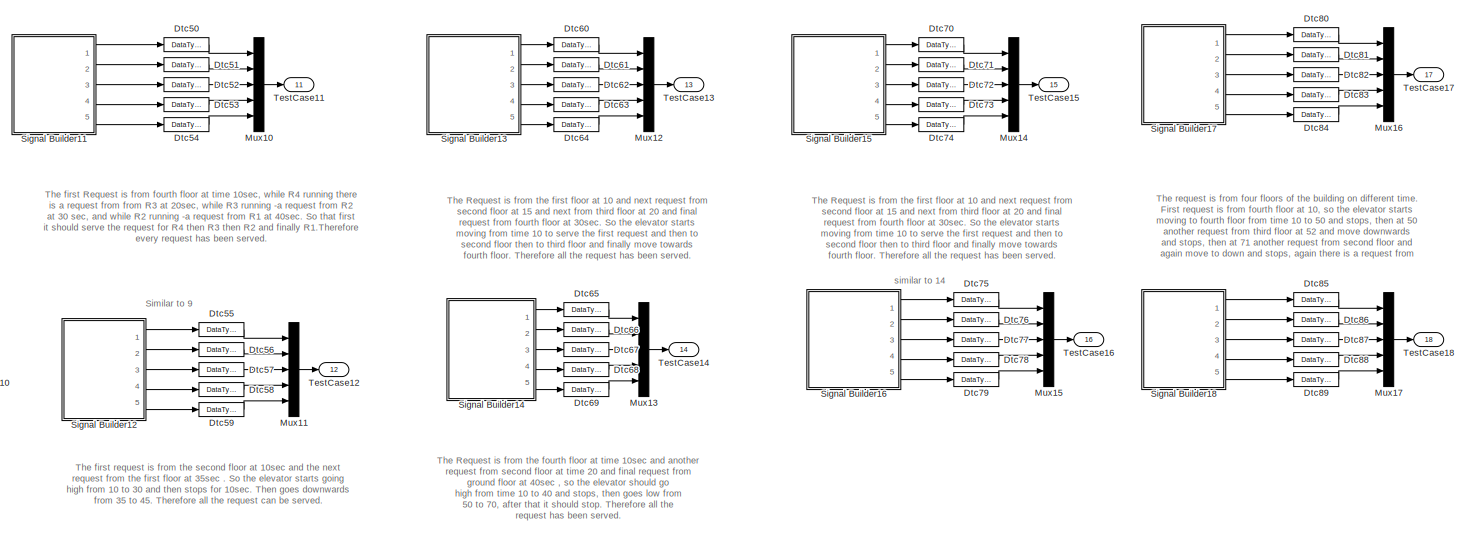
[diagram: PLANT/Live Request/Different TestCases - part 1/4, right side, full height]
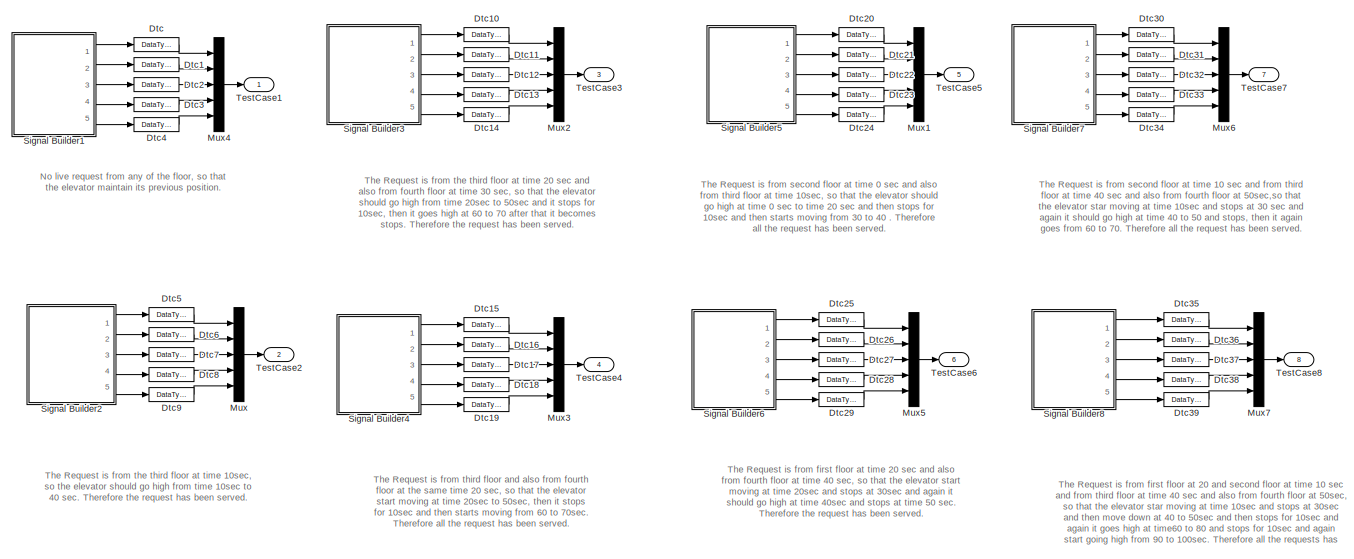
[diagram: PLANT/Live Request/Different TestCases - part 2/4, left side, full height]
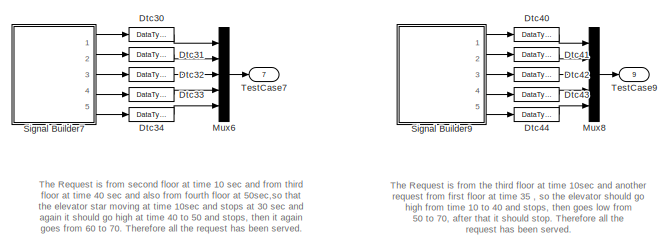
[diagram: PLANT/Live Request/Different TestCases - part 3/4, top center region]
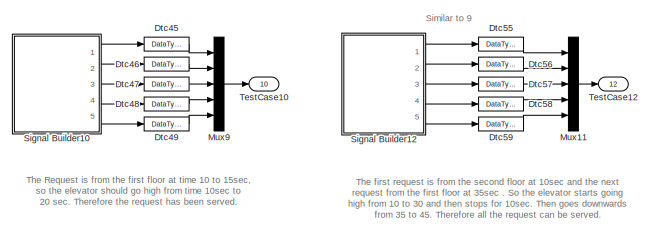
[diagram: PLANT/Live Request/Different TestCases - part 4/4, bottom center region]
BLOCK [SubSystem] PLANT/Live Request/Different TestCases
  FunctionWithSeparateData = off
  MaskHideContents = off
  MinAlgLoopOccurrences = off
  Opaque = off
  Ports = [0, 18]
  PropExecContextOutsideSubsystem = off
  RTWSystemCode = Auto
  RequestExecContextInheritance = off
BLOCK [DataTypeConversion] PLANT/Live Request/Different TestCases/Dtc
  OutDataTypeStr = boolean
  RndMeth = Floor
  SaturateOnIntegerOverflow = off
BLOCK [DataTypeConversion] PLANT/Live Request/Different TestCases/Dtc1
  OutDataTypeStr = boolean
  RndMeth = Floor
  SaturateOnIntegerOverflow = off
BLOCK [DataTypeConversion] PLANT/Live Request/Different TestCases/Dtc10
  OutDataTypeStr = boolean
  RndMeth = Floor
  SaturateOnIntegerOverflow = off
BLOCK [DataTypeConversion] PLANT/Live Request/Different TestCases/Dtc11
  OutDataTypeStr = boolean
  RndMeth = Floor
  SaturateOnIntegerOverflow = off
BLOCK [DataTypeConversion] PLANT/Live Request/Different TestCases/Dtc12
  OutDataTypeStr = boolean
  RndMeth = Floor
  SaturateOnIntegerOverflow = off
BLOCK [DataTypeConversion] PLANT/Live Request/Different TestCases/Dtc13
  OutDataTypeStr = boolean
  RndMeth = Floor
  SaturateOnIntegerOverflow = off
BLOCK [DataTypeConversion] PLANT/Live Request/Different TestCases/Dtc14
  OutDataTypeStr = boolean
  RndMeth = Floor
  SaturateOnIntegerOverflow = off
BLOCK [DataTypeConversion] PLANT/Live Request/Different TestCases/Dtc15
  OutDataTypeStr = boolean
  RndMeth = Floor
  SaturateOnIntegerOverflow = off
BLOCK [DataTypeConversion] PLANT/Live Request/Different TestCases/Dtc16
  OutDataTypeStr = boolean
  RndMeth = Floor
  SaturateOnIntegerOverflow = off
BLOCK [DataTypeConversion] PLANT/Live Request/Different TestCases/Dtc17
  OutDataTypeStr = boolean
  RndMeth = Floor
  SaturateOnIntegerOverflow = off
BLOCK [DataTypeConversion] PLANT/Live Request/Different TestCases/Dtc18
  OutDataTypeStr = boolean
  RndMeth = Floor
  SaturateOnIntegerOverflow = off
BLOCK [DataTypeConversion] PLANT/Live Request/Different TestCases/Dtc19
  OutDataTypeStr = boolean
  RndMeth = Floor
  SaturateOnIntegerOverflow = off
BLOCK [DataTypeConversion] PLANT/Live Request/Different TestCases/Dtc2
  OutDataTypeStr = boolean
  RndMeth = Floor
  SaturateOnIntegerOverflow = off
BLOCK [DataTypeConversion] PLANT/Live Request/Different TestCases/Dtc20
  OutDataTypeStr = boolean
  RndMeth = Floor
  SaturateOnIntegerOverflow = off
BLOCK [DataTypeConversion] PLANT/Live Request/Different TestCases/Dtc21
  OutDataTypeStr = boolean
  RndMeth = Floor
  SaturateOnIntegerOverflow = off
BLOCK [DataTypeConversion] PLANT/Live Request/Different TestCases/Dtc22
  OutDataTypeStr = boolean
  RndMeth = Floor
  SaturateOnIntegerOverflow = off
BLOCK [DataTypeConversion] PLANT/Live Request/Different TestCases/Dtc23
  OutDataTypeStr = boolean
  RndMeth = Floor
  SaturateOnIntegerOverflow = off
BLOCK [DataTypeConversion] PLANT/Live Request/Different TestCases/Dtc24
  OutDataTypeStr = boolean
  RndMeth = Floor
  SaturateOnIntegerOverflow = off
BLOCK [DataTypeConversion] PLANT/Live Request/Different TestCases/Dtc25
  OutDataTypeStr = boolean
  RndMeth = Floor
  SaturateOnIntegerOverflow = off
BLOCK [DataTypeConversion] PLANT/Live Request/Different TestCases/Dtc26
  OutDataTypeStr = boolean
  RndMeth = Floor
  SaturateOnIntegerOverflow = off
BLOCK [DataTypeConversion] PLANT/Live Request/Different TestCases/Dtc27
  OutDataTypeStr = boolean
  RndMeth = Floor
  SaturateOnIntegerOverflow = off
BLOCK [DataTypeConversion] PLANT/Live Request/Different TestCases/Dtc28
  OutDataTypeStr = boolean
  RndMeth = Floor
  SaturateOnIntegerOverflow = off
BLOCK [DataTypeConversion] PLANT/Live Request/Different TestCases/Dtc29
  OutDataTypeStr = boolean
  RndMeth = Floor
  SaturateOnIntegerOverflow = off
BLOCK [DataTypeConversion] PLANT/Live Request/Different TestCases/Dtc3
  OutDataTypeStr = boolean
  RndMeth = Floor
  SaturateOnIntegerOverflow = off
BLOCK [DataTypeConversion] PLANT/Live Request/Different TestCases/Dtc30
  OutDataTypeStr = boolean
  RndMeth = Floor
  SaturateOnIntegerOverflow = off
BLOCK [DataTypeConversion] PLANT/Live Request/Different TestCases/Dtc31
  OutDataTypeStr = boolean
  RndMeth = Floor
  SaturateOnIntegerOverflow = off
BLOCK [DataTypeConversion] PLANT/Live Request/Different TestCases/Dtc32
  OutDataTypeStr = boolean
  RndMeth = Floor
  SaturateOnIntegerOverflow = off
BLOCK [DataTypeConversion] PLANT/Live Request/Different TestCases/Dtc33
  OutDataTypeStr = boolean
  RndMeth = Floor
  SaturateOnIntegerOverflow = off
BLOCK [DataTypeConversion] PLANT/Live Request/Different TestCases/Dtc34
  OutDataTypeStr = boolean
  RndMeth = Floor
  SaturateOnIntegerOverflow = off
BLOCK [DataTypeConversion] PLANT/Live Request/Different TestCases/Dtc35
  OutDataTypeStr = boolean
  RndMeth = Floor
  SaturateOnIntegerOverflow = off
BLOCK [DataTypeConversion] PLANT/Live Request/Different TestCases/Dtc36
  OutDataTypeStr = boolean
  RndMeth = Floor
  SaturateOnIntegerOverflow = off
BLOCK [DataTypeConversion] PLANT/Live Request/Different TestCases/Dtc37
  OutDataTypeStr = boolean
  RndMeth = Floor
  SaturateOnIntegerOverflow = off
BLOCK [DataTypeConversion] PLANT/Live Request/Different TestCases/Dtc38
  OutDataTypeStr = boolean
  RndMeth = Floor
  SaturateOnIntegerOverflow = off
BLOCK [DataTypeConversion] PLANT/Live Request/Different TestCases/Dtc39
  OutDataTypeStr = boolean
  RndMeth = Floor
  SaturateOnIntegerOverflow = off
BLOCK [DataTypeConversion] PLANT/Live Request/Different TestCases/Dtc4
  OutDataTypeStr = boolean
  RndMeth = Floor
  SaturateOnIntegerOverflow = off
BLOCK [DataTypeConversion] PLANT/Live Request/Different TestCases/Dtc40
  OutDataTypeStr = boolean
  RndMeth = Floor
  SaturateOnIntegerOverflow = off
BLOCK [DataTypeConversion] PLANT/Live Request/Different TestCases/Dtc41
  OutDataTypeStr = boolean
  RndMeth = Floor
  SaturateOnIntegerOverflow = off
BLOCK [DataTypeConversion] PLANT/Live Request/Different TestCases/Dtc42
  OutDataTypeStr = boolean
  RndMeth = Floor
  SaturateOnIntegerOverflow = off
BLOCK [DataTypeConversion] PLANT/Live Request/Different TestCases/Dtc43
  OutDataTypeStr = boolean
  RndMeth = Floor
  SaturateOnIntegerOverflow = off
BLOCK [DataTypeConversion] PLANT/Live Request/Different TestCases/Dtc44
  OutDataTypeStr = boolean
  RndMeth = Floor
  SaturateOnIntegerOverflow = off
BLOCK [DataTypeConversion] PLANT/Live Request/Different TestCases/Dtc45
  OutDataTypeStr = boolean
  RndMeth = Floor
  SaturateOnIntegerOverflow = off
BLOCK [DataTypeConversion] PLANT/Live Request/Different TestCases/Dtc46
  OutDataTypeStr = boolean
  RndMeth = Floor
  SaturateOnIntegerOverflow = off
BLOCK [DataTypeConversion] PLANT/Live Request/Different TestCases/Dtc47
  OutDataTypeStr = boolean
  RndMeth = Floor
  SaturateOnIntegerOverflow = off
BLOCK [DataTypeConversion] PLANT/Live Request/Different TestCases/Dtc48
  OutDataTypeStr = boolean
  RndMeth = Floor
  SaturateOnIntegerOverflow = off
BLOCK [DataTypeConversion] PLANT/Live Request/Different TestCases/Dtc49
  OutDataTypeStr = boolean
  RndMeth = Floor
  SaturateOnIntegerOverflow = off
BLOCK [DataTypeConversion] PLANT/Live Request/Different TestCases/Dtc5
  OutDataTypeStr = boolean
  RndMeth = Floor
  SaturateOnIntegerOverflow = off
BLOCK [DataTypeConversion] PLANT/Live Request/Different TestCases/Dtc50
  OutDataTypeStr = boolean
  RndMeth = Floor
  SaturateOnIntegerOverflow = off
BLOCK [DataTypeConversion] PLANT/Live Request/Different TestCases/Dtc51
  OutDataTypeStr = boolean
  RndMeth = Floor
  SaturateOnIntegerOverflow = off
BLOCK [DataTypeConversion] PLANT/Live Request/Different TestCases/Dtc52
  OutDataTypeStr = boolean
  RndMeth = Floor
  SaturateOnIntegerOverflow = off
BLOCK [DataTypeConversion] PLANT/Live Request/Different TestCases/Dtc53
  OutDataTypeStr = boolean
  RndMeth = Floor
  SaturateOnIntegerOverflow = off
BLOCK [DataTypeConversion] PLANT/Live Request/Different TestCases/Dtc54
  OutDataTypeStr = boolean
  RndMeth = Floor
  SaturateOnIntegerOverflow = off
BLOCK [DataTypeConversion] PLANT/Live Request/Different TestCases/Dtc55
  OutDataTypeStr = boolean
  RndMeth = Floor
  SaturateOnIntegerOverflow = off
BLOCK [DataTypeConversion] PLANT/Live Request/Different TestCases/Dtc56
  OutDataTypeStr = boolean
  RndMeth = Floor
  SaturateOnIntegerOverflow = off
BLOCK [DataTypeConversion] PLANT/Live Request/Different TestCases/Dtc57
  OutDataTypeStr = boolean
  RndMeth = Floor
  SaturateOnIntegerOverflow = off
BLOCK [DataTypeConversion] PLANT/Live Request/Different TestCases/Dtc58
  OutDataTypeStr = boolean
  RndMeth = Floor
  SaturateOnIntegerOverflow = off
BLOCK [DataTypeConversion] PLANT/Live Request/Different TestCases/Dtc59
  OutDataTypeStr = boolean
  RndMeth = Floor
  SaturateOnIntegerOverflow = off
BLOCK [DataTypeConversion] PLANT/Live Request/Different TestCases/Dtc6
  OutDataTypeStr = boolean
  RndMeth = Floor
  SaturateOnIntegerOverflow = off
BLOCK [DataTypeConversion] PLANT/Live Request/Different TestCases/Dtc60
  OutDataTypeStr = boolean
  RndMeth = Floor
  SaturateOnIntegerOverflow = off
BLOCK [DataTypeConversion] PLANT/Live Request/Different TestCases/Dtc61
  OutDataTypeStr = boolean
  RndMeth = Floor
  SaturateOnIntegerOverflow = off
BLOCK [DataTypeConversion] PLANT/Live Request/Different TestCases/Dtc62
  OutDataTypeStr = boolean
  RndMeth = Floor
  SaturateOnIntegerOverflow = off
BLOCK [DataTypeConversion] PLANT/Live Request/Different TestCases/Dtc63
  OutDataTypeStr = boolean
  RndMeth = Floor
  SaturateOnIntegerOverflow = off
BLOCK [DataTypeConversion] PLANT/Live Request/Different TestCases/Dtc64
  OutDataTypeStr = boolean
  RndMeth = Floor
  SaturateOnIntegerOverflow = off
BLOCK [DataTypeConversion] PLANT/Live Request/Different TestCases/Dtc65
  OutDataTypeStr = boolean
  RndMeth = Floor
  SaturateOnIntegerOverflow = off
BLOCK [DataTypeConversion] PLANT/Live Request/Different TestCases/Dtc66
  OutDataTypeStr = boolean
  RndMeth = Floor
  SaturateOnIntegerOverflow = off
BLOCK [DataTypeConversion] PLANT/Live Request/Different TestCases/Dtc67
  OutDataTypeStr = boolean
  RndMeth = Floor
  SaturateOnIntegerOverflow = off
BLOCK [DataTypeConversion] PLANT/Live Request/Different TestCases/Dtc68
  OutDataTypeStr = boolean
  RndMeth = Floor
  SaturateOnIntegerOverflow = off
BLOCK [DataTypeConversion] PLANT/Live Request/Different TestCases/Dtc69
  OutDataTypeStr = boolean
  RndMeth = Floor
  SaturateOnIntegerOverflow = off
BLOCK [DataTypeConversion] PLANT/Live Request/Different TestCases/Dtc7
  OutDataTypeStr = boolean
  RndMeth = Floor
  SaturateOnIntegerOverflow = off
BLOCK [DataTypeConversion] PLANT/Live Request/Different TestCases/Dtc70
  OutDataTypeStr = boolean
  RndMeth = Floor
  SaturateOnIntegerOverflow = off
BLOCK [DataTypeConversion] PLANT/Live Request/Different TestCases/Dtc71
  OutDataTypeStr = boolean
  RndMeth = Floor
  SaturateOnIntegerOverflow = off
BLOCK [DataTypeConversion] PLANT/Live Request/Different TestCases/Dtc72
  OutDataTypeStr = boolean
  RndMeth = Floor
  SaturateOnIntegerOverflow = off
BLOCK [DataTypeConversion] PLANT/Live Request/Different TestCases/Dtc73
  OutDataTypeStr = boolean
  RndMeth = Floor
  SaturateOnIntegerOverflow = off
BLOCK [DataTypeConversion] PLANT/Live Request/Different TestCases/Dtc74
  OutDataTypeStr = boolean
  RndMeth = Floor
  SaturateOnIntegerOverflow = off
BLOCK [DataTypeConversion] PLANT/Live Request/Different TestCases/Dtc75
  OutDataTypeStr = boolean
  RndMeth = Floor
  SaturateOnIntegerOverflow = off
BLOCK [DataTypeConversion] PLANT/Live Request/Different TestCases/Dtc76
  OutDataTypeStr = boolean
  RndMeth = Floor
  SaturateOnIntegerOverflow = off
BLOCK [DataTypeConversion] PLANT/Live Request/Different TestCases/Dtc77
  OutDataTypeStr = boolean
  RndMeth = Floor
  SaturateOnIntegerOverflow = off
BLOCK [DataTypeConversion] PLANT/Live Request/Different TestCases/Dtc78
  OutDataTypeStr = boolean
  RndMeth = Floor
  SaturateOnIntegerOverflow = off
BLOCK [DataTypeConversion] PLANT/Live Request/Different TestCases/Dtc79
  OutDataTypeStr = boolean
  RndMeth = Floor
  SaturateOnIntegerOverflow = off
BLOCK [DataTypeConversion] PLANT/Live Request/Different TestCases/Dtc8
  OutDataTypeStr = boolean
  RndMeth = Floor
  SaturateOnIntegerOverflow = off
BLOCK [DataTypeConversion] PLANT/Live Request/Different TestCases/Dtc80
  OutDataTypeStr = boolean
  RndMeth = Floor
  SaturateOnIntegerOverflow = off
BLOCK [DataTypeConversion] PLANT/Live Request/Different TestCases/Dtc81
  OutDataTypeStr = boolean
  RndMeth = Floor
  SaturateOnIntegerOverflow = off
BLOCK [DataTypeConversion] PLANT/Live Request/Different TestCases/Dtc82
  OutDataTypeStr = boolean
  RndMeth = Floor
  SaturateOnIntegerOverflow = off
BLOCK [DataTypeConversion] PLANT/Live Request/Different TestCases/Dtc83
  OutDataTypeStr = boolean
  RndMeth = Floor
  SaturateOnIntegerOverflow = off
BLOCK [DataTypeConversion] PLANT/Live Request/Different TestCases/Dtc84
  OutDataTypeStr = boolean
  RndMeth = Floor
  SaturateOnIntegerOverflow = off
BLOCK [DataTypeConversion] PLANT/Live Request/Different TestCases/Dtc85
  OutDataTypeStr = boolean
  RndMeth = Floor
  SaturateOnIntegerOverflow = off
BLOCK [DataTypeConversion] PLANT/Live Request/Different TestCases/Dtc86
  OutDataTypeStr = boolean
  RndMeth = Floor
  SaturateOnIntegerOverflow = off
BLOCK [DataTypeConversion] PLANT/Live Request/Different TestCases/Dtc87
  OutDataTypeStr = boolean
  RndMeth = Floor
  SaturateOnIntegerOverflow = off
BLOCK [DataTypeConversion] PLANT/Live Request/Different TestCases/Dtc88
  OutDataTypeStr = boolean
  RndMeth = Floor
  SaturateOnIntegerOverflow = off
BLOCK [DataTypeConversion] PLANT/Live Request/Different TestCases/Dtc89
  OutDataTypeStr = boolean
  RndMeth = Floor
  SaturateOnIntegerOverflow = off
BLOCK [DataTypeConversion] PLANT/Live Request/Different TestCases/Dtc9
  OutDataTypeStr = boolean
  RndMeth = Floor
  SaturateOnIntegerOverflow = off
BLOCK [Mux] PLANT/Live Request/Different TestCases/Mux
  DisplayOption = bar
  Inputs = 5
  Ports = [5, 1]
BLOCK [Mux] PLANT/Live Request/Different TestCases/Mux1
  DisplayOption = bar
  Inputs = 5
  Ports = [5, 1]
BLOCK [Mux] PLANT/Live Request/Different TestCases/Mux10
  DisplayOption = bar
  Inputs = 5
  Ports = [5, 1]
BLOCK [Mux] PLANT/Live Request/Different TestCases/Mux11
  DisplayOption = bar
  Inputs = 5
  Ports = [5, 1]
BLOCK [Mux] PLANT/Live Request/Different TestCases/Mux12
  DisplayOption = bar
  Inputs = 5
  Ports = [5, 1]
BLOCK [Mux] PLANT/Live Request/Different TestCases/Mux13
  DisplayOption = bar
  Inputs = 5
  Ports = [5, 1]
BLOCK [Mux] PLANT/Live Request/Different TestCases/Mux14
  DisplayOption = bar
  Inputs = 5
  Ports = [5, 1]
BLOCK [Mux] PLANT/Live Request/Different TestCases/Mux15
  DisplayOption = bar
  Inputs = 5
  Ports = [5, 1]
BLOCK [Mux] PLANT/Live Request/Different TestCases/Mux16
  DisplayOption = bar
  Inputs = 5
  Ports = [5, 1]
BLOCK [Mux] PLANT/Live Request/Different TestCases/Mux17
  DisplayOption = bar
  Inputs = 5
  Ports = [5, 1]
BLOCK [Mux] PLANT/Live Request/Different TestCases/Mux2
  DisplayOption = bar
  Inputs = 5
  Ports = [5, 1]
BLOCK [Mux] PLANT/Live Request/Different TestCases/Mux3
  DisplayOption = bar
  Inputs = 5
  Ports = [5, 1]
BLOCK [Mux] PLANT/Live Request/Different TestCases/Mux4
  DisplayOption = bar
  Inputs = 5
  Ports = [5, 1]
BLOCK [Mux] PLANT/Live Request/Different TestCases/Mux5
  DisplayOption = bar
  Inputs = 5
  Ports = [5, 1]
BLOCK [Mux] PLANT/Live Request/Different TestCases/Mux6
  DisplayOption = bar
  Inputs = 5
  Ports = [5, 1]
BLOCK [Mux] PLANT/Live Request/Different TestCases/Mux7
  DisplayOption = bar
  Inputs = 5
  Ports = [5, 1]
BLOCK [Mux] PLANT/Live Request/Different TestCases/Mux8
  DisplayOption = bar
  Inputs = 5
  Ports = [5, 1]
BLOCK [Mux] PLANT/Live Request/Different TestCases/Mux9
  DisplayOption = bar
  Inputs = 5
  Ports = [5, 1]
BLOCK [SubSystem] PLANT/Live Request/Different TestCases/Signal Builder1
  ClipboardFcn = sigbuilder_block('clipboard');
  CloseFcn = sigbuilder_block('close');
  ContinueFcn = sigbuilder_block('continue');
  CopyFcn = sigbuilder_block('copy');
  DeleteFcn = sigbuilder_block('delete');
  FunctionWithSeparateData = off
  LoadFcn = sigbuilder_block('load');
  MaskHideContents = on
  MinAlgLoopOccurrences = off
  ModelCloseFcn = sigbuilder_block('modelClose');
  NameChangeFcn = sigbuilder_block('namechange');
  Opaque = off
  OpenFcn = sigbuilder_block('open',[327.75 102.75 484.5 312.75 ]);
  PauseFcn = sigbuilder_block('pause');
  Ports = [0, 5]
  PreSaveFcn = sigbuilder_block('preSave');
  PropExecContextOutsideSubsystem = off
  RTWSystemCode = Auto
  RequestExecContextInheritance = off
  StartFcn = sigbuilder_block('start');
  StopFcn = sigbuilder_block('stop');
  Tag = STV Subsys
BLOCK [Demux] PLANT/Live Request/Different TestCases/Signal Builder1/Demux
  Outputs = 5
  Ports = [1, 5]
  Tag = STV Demux
BLOCK [FromWorkspace] PLANT/Live Request/Different TestCases/Signal Builder1/FromWs
  SampleTime = 0
  Tag = STV FromWs
  VariableName = tuvar
  ZeroCross = on
BLOCK [Outport] PLANT/Live Request/Different TestCases/Signal Builder1/Signal 1
  IconDisplay = Port number
  Tag = STV Outport
BLOCK [Outport] PLANT/Live Request/Different TestCases/Signal Builder1/Signal 2
  IconDisplay = Port number
  Port = 2
  Tag = STV Outport
BLOCK [Outport] PLANT/Live Request/Different TestCases/Signal Builder1/Signal 3
  IconDisplay = Port number
  Port = 3
  Tag = STV Outport
BLOCK [Outport] PLANT/Live Request/Different TestCases/Signal Builder1/Signal 4
  IconDisplay = Port number
  Port = 4
  Tag = STV Outport
BLOCK [Outport] PLANT/Live Request/Different TestCases/Signal Builder1/Signal 5
  IconDisplay = Port number
  Port = 5
  Tag = STV Outport
BLOCK [SubSystem] PLANT/Live Request/Different TestCases/Signal Builder10
  ClipboardFcn = sigbuilder_block('clipboard');
  CloseFcn = sigbuilder_block('close');
  ContinueFcn = sigbuilder_block('continue');
  CopyFcn = sigbuilder_block('copy');
  DeleteFcn = sigbuilder_block('delete');
  FunctionWithSeparateData = off
  LoadFcn = sigbuilder_block('load');
  MaskHideContents = on
  MinAlgLoopOccurrences = off
  ModelCloseFcn = sigbuilder_block('modelClose');
  NameChangeFcn = sigbuilder_block('namechange');
  Opaque = off
  OpenFcn = sigbuilder_block('open',[437.25 118.5 550.5 394.5 ]);
  PauseFcn = sigbuilder_block('pause');
  Ports = [0, 5]
  PreSaveFcn = sigbuilder_block('preSave');
  PropExecContextOutsideSubsystem = off
  RTWSystemCode = Auto
  RequestExecContextInheritance = off
  StartFcn = sigbuilder_block('start');
  StopFcn = sigbuilder_block('stop');
  Tag = STV Subsys
BLOCK [Demux] PLANT/Live Request/Different TestCases/Signal Builder10/Demux
  Outputs = 5
  Ports = [1, 5]
  Tag = STV Demux
BLOCK [FromWorkspace] PLANT/Live Request/Different TestCases/Signal Builder10/FromWs
  SampleTime = 0
  Tag = STV FromWs
  VariableName = tuvar
  ZeroCross = on
BLOCK [Outport] PLANT/Live Request/Different TestCases/Signal Builder10/Signal 1
  IconDisplay = Port number
  Tag = STV Outport
BLOCK [Outport] PLANT/Live Request/Different TestCases/Signal Builder10/Signal 2
  IconDisplay = Port number
  Port = 2
  Tag = STV Outport
BLOCK [Outport] PLANT/Live Request/Different TestCases/Signal Builder10/Signal 3
  IconDisplay = Port number
  Port = 3
  Tag = STV Outport
BLOCK [Outport] PLANT/Live Request/Different TestCases/Signal Builder10/Signal 4
  IconDisplay = Port number
  Port = 4
  Tag = STV Outport
BLOCK [Outport] PLANT/Live Request/Different TestCases/Signal Builder10/Signal 5
  IconDisplay = Port number
  Port = 5
  Tag = STV Outport
BLOCK [SubSystem] PLANT/Live Request/Different TestCases/Signal Builder11
  ClipboardFcn = sigbuilder_block('clipboard');
  CloseFcn = sigbuilder_block('close');
  ContinueFcn = sigbuilder_block('continue');
  CopyFcn = sigbuilder_block('copy');
  DeleteFcn = sigbuilder_block('delete');
  FunctionWithSeparateData = off
  LoadFcn = sigbuilder_block('load');
  MaskHideContents = on
  MinAlgLoopOccurrences = off
  ModelCloseFcn = sigbuilder_block('modelClose');
  NameChangeFcn = sigbuilder_block('namechange');
  Opaque = off
  OpenFcn = sigbuilder_block('open',[344.25 118.5 602.25 275.25 ]);
  PauseFcn = sigbuilder_block('pause');
  Ports = [0, 5]
  PreSaveFcn = sigbuilder_block('preSave');
  PropExecContextOutsideSubsystem = off
  RTWSystemCode = Auto
  RequestExecContextInheritance = off
  StartFcn = sigbuilder_block('start');
  StopFcn = sigbuilder_block('stop');
  Tag = STV Subsys
BLOCK [Demux] PLANT/Live Request/Different TestCases/Signal Builder11/Demux
  Outputs = 5
  Ports = [1, 5]
  Tag = STV Demux
BLOCK [FromWorkspace] PLANT/Live Request/Different TestCases/Signal Builder11/FromWs
  SampleTime = 0
  Tag = STV FromWs
  VariableName = tuvar
  ZeroCross = on
BLOCK [Outport] PLANT/Live Request/Different TestCases/Signal Builder11/Signal 1
  IconDisplay = Port number
  Tag = STV Outport
BLOCK [Outport] PLANT/Live Request/Different TestCases/Signal Builder11/Signal 2
  IconDisplay = Port number
  Port = 2
  Tag = STV Outport
BLOCK [Outport] PLANT/Live Request/Different TestCases/Signal Builder11/Signal 3
  IconDisplay = Port number
  Port = 3
  Tag = STV Outport
BLOCK [Outport] PLANT/Live Request/Different TestCases/Signal Builder11/Signal 4
  IconDisplay = Port number
  Port = 4
  Tag = STV Outport
BLOCK [Outport] PLANT/Live Request/Different TestCases/Signal Builder11/Signal 5
  IconDisplay = Port number
  Port = 5
  Tag = STV Outport
BLOCK [SubSystem] PLANT/Live Request/Different TestCases/Signal Builder12
  ClipboardFcn = sigbuilder_block('clipboard');
  CloseFcn = sigbuilder_block('close');
  ContinueFcn = sigbuilder_block('continue');
  CopyFcn = sigbuilder_block('copy');
  DeleteFcn = sigbuilder_block('delete');
  FunctionWithSeparateData = off
  LoadFcn = sigbuilder_block('load');
  MaskHideContents = on
  MinAlgLoopOccurrences = off
  ModelCloseFcn = sigbuilder_block('modelClose');
  NameChangeFcn = sigbuilder_block('namechange');
  Opaque = off
  OpenFcn = sigbuilder_block('open',[393.75 66.75 550.5 275.25 ]);
  PauseFcn = sigbuilder_block('pause');
  Ports = [0, 5]
  PreSaveFcn = sigbuilder_block('preSave');
  PropExecContextOutsideSubsystem = off
  RTWSystemCode = Auto
  RequestExecContextInheritance = off
  StartFcn = sigbuilder_block('start');
  StopFcn = sigbuilder_block('stop');
  Tag = STV Subsys
BLOCK [Demux] PLANT/Live Request/Different TestCases/Signal Builder12/Demux
  Outputs = 5
  Ports = [1, 5]
  Tag = STV Demux
BLOCK [FromWorkspace] PLANT/Live Request/Different TestCases/Signal Builder12/FromWs
  SampleTime = 0
  Tag = STV FromWs
  VariableName = tuvar
  ZeroCross = on
BLOCK [Outport] PLANT/Live Request/Different TestCases/Signal Builder12/Signal 1
  IconDisplay = Port number
  Tag = STV Outport
BLOCK [Outport] PLANT/Live Request/Different TestCases/Signal Builder12/Signal 2
  IconDisplay = Port number
  Port = 2
  Tag = STV Outport
BLOCK [Outport] PLANT/Live Request/Different TestCases/Signal Builder12/Signal 3
  IconDisplay = Port number
  Port = 3
  Tag = STV Outport
BLOCK [Outport] PLANT/Live Request/Different TestCases/Signal Builder12/Signal 4
  IconDisplay = Port number
  Port = 4
  Tag = STV Outport
BLOCK [Outport] PLANT/Live Request/Different TestCases/Signal Builder12/Signal 5
  IconDisplay = Port number
  Port = 5
  Tag = STV Outport
BLOCK [SubSystem] PLANT/Live Request/Different TestCases/Signal Builder13
  ClipboardFcn = sigbuilder_block('clipboard');
  CloseFcn = sigbuilder_block('close');
  ContinueFcn = sigbuilder_block('continue');
  CopyFcn = sigbuilder_block('copy');
  DeleteFcn = sigbuilder_block('delete');
  FunctionWithSeparateData = off
  LoadFcn = sigbuilder_block('load');
  MaskHideContents = on
  MinAlgLoopOccurrences = off
  ModelCloseFcn = sigbuilder_block('modelClose');
  NameChangeFcn = sigbuilder_block('namechange');
  Opaque = off
  OpenFcn = sigbuilder_block('open',[274.5 170.25 550.5 272.25 ]);
  PauseFcn = sigbuilder_block('pause');
  Ports = [0, 5]
  PreSaveFcn = sigbuilder_block('preSave');
  PropExecContextOutsideSubsystem = off
  RTWSystemCode = Auto
  RequestExecContextInheritance = off
  StartFcn = sigbuilder_block('start');
  StopFcn = sigbuilder_block('stop');
  Tag = STV Subsys
BLOCK [Demux] PLANT/Live Request/Different TestCases/Signal Builder13/Demux
  Outputs = 5
  Ports = [1, 5]
  Tag = STV Demux
BLOCK [FromWorkspace] PLANT/Live Request/Different TestCases/Signal Builder13/FromWs
  SampleTime = 0
  Tag = STV FromWs
  VariableName = tuvar
  ZeroCross = on
BLOCK [Outport] PLANT/Live Request/Different TestCases/Signal Builder13/Signal 1
  IconDisplay = Port number
  Tag = STV Outport
BLOCK [Outport] PLANT/Live Request/Different TestCases/Signal Builder13/Signal 2
  IconDisplay = Port number
  Port = 2
  Tag = STV Outport
BLOCK [Outport] PLANT/Live Request/Different TestCases/Signal Builder13/Signal 3
  IconDisplay = Port number
  Port = 3
  Tag = STV Outport
BLOCK [Outport] PLANT/Live Request/Different TestCases/Signal Builder13/Signal 4
  IconDisplay = Port number
  Port = 4
  Tag = STV Outport
BLOCK [Outport] PLANT/Live Request/Different TestCases/Signal Builder13/Signal 5
  IconDisplay = Port number
  Port = 5
  Tag = STV Outport
BLOCK [SubSystem] PLANT/Live Request/Different TestCases/Signal Builder14
  ClipboardFcn = sigbuilder_block('clipboard');
  CloseFcn = sigbuilder_block('close');
  ContinueFcn = sigbuilder_block('continue');
  CopyFcn = sigbuilder_block('copy');
  DeleteFcn = sigbuilder_block('delete');
  FunctionWithSeparateData = off
  LoadFcn = sigbuilder_block('load');
  MaskHideContents = on
  MinAlgLoopOccurrences = off
  ModelCloseFcn = sigbuilder_block('modelClose');
  NameChangeFcn = sigbuilder_block('namechange');
  Opaque = off
  OpenFcn = sigbuilder_block('open',[507.75 134.25 448.5 303.75 ]);
  PauseFcn = sigbuilder_block('pause');
  Ports = [0, 5]
  PreSaveFcn = sigbuilder_block('preSave');
  PropExecContextOutsideSubsystem = off
  RTWSystemCode = Auto
  RequestExecContextInheritance = off
  StartFcn = sigbuilder_block('start');
  StopFcn = sigbuilder_block('stop');
  Tag = STV Subsys
BLOCK [Demux] PLANT/Live Request/Different TestCases/Signal Builder14/Demux
  Outputs = 5
  Ports = [1, 5]
  Tag = STV Demux
BLOCK [FromWorkspace] PLANT/Live Request/Different TestCases/Signal Builder14/FromWs
  SampleTime = 0
  Tag = STV FromWs
  VariableName = tuvar
  ZeroCross = on
BLOCK [Outport] PLANT/Live Request/Different TestCases/Signal Builder14/Signal 1
  IconDisplay = Port number
  Tag = STV Outport
BLOCK [Outport] PLANT/Live Request/Different TestCases/Signal Builder14/Signal 2
  IconDisplay = Port number
  Port = 2
  Tag = STV Outport
BLOCK [Outport] PLANT/Live Request/Different TestCases/Signal Builder14/Signal 3
  IconDisplay = Port number
  Port = 3
  Tag = STV Outport
BLOCK [Outport] PLANT/Live Request/Different TestCases/Signal Builder14/Signal 4
  IconDisplay = Port number
  Port = 4
  Tag = STV Outport
BLOCK [Outport] PLANT/Live Request/Different TestCases/Signal Builder14/Signal 5
  IconDisplay = Port number
  Port = 5
  Tag = STV Outport
BLOCK [SubSystem] PLANT/Live Request/Different TestCases/Signal Builder15
  ClipboardFcn = sigbuilder_block('clipboard');
  CloseFcn = sigbuilder_block('close');
  ContinueFcn = sigbuilder_block('continue');
  CopyFcn = sigbuilder_block('copy');
  DeleteFcn = sigbuilder_block('delete');
  FunctionWithSeparateData = off
  LoadFcn = sigbuilder_block('load');
  MaskHideContents = on
  MinAlgLoopOccurrences = off
  ModelCloseFcn = sigbuilder_block('modelClose');
  NameChangeFcn = sigbuilder_block('namechange');
  Opaque = off
  OpenFcn = sigbuilder_block('open',[465.75 164.25 447 288.75 ]);
  PauseFcn = sigbuilder_block('pause');
  Ports = [0, 5]
  PreSaveFcn = sigbuilder_block('preSave');
  PropExecContextOutsideSubsystem = off
  RTWSystemCode = Auto
  RequestExecContextInheritance = off
  StartFcn = sigbuilder_block('start');
  StopFcn = sigbuilder_block('stop');
  Tag = STV Subsys
BLOCK [Demux] PLANT/Live Request/Different TestCases/Signal Builder15/Demux
  Outputs = 5
  Ports = [1, 5]
  Tag = STV Demux
BLOCK [FromWorkspace] PLANT/Live Request/Different TestCases/Signal Builder15/FromWs
  SampleTime = 0
  Tag = STV FromWs
  VariableName = tuvar
  ZeroCross = on
BLOCK [Outport] PLANT/Live Request/Different TestCases/Signal Builder15/Signal 1
  IconDisplay = Port number
  Tag = STV Outport
BLOCK [Outport] PLANT/Live Request/Different TestCases/Signal Builder15/Signal 2
  IconDisplay = Port number
  Port = 2
  Tag = STV Outport
BLOCK [Outport] PLANT/Live Request/Different TestCases/Signal Builder15/Signal 3
  IconDisplay = Port number
  Port = 3
  Tag = STV Outport
BLOCK [Outport] PLANT/Live Request/Different TestCases/Signal Builder15/Signal 4
  IconDisplay = Port number
  Port = 4
  Tag = STV Outport
BLOCK [Outport] PLANT/Live Request/Different TestCases/Signal Builder15/Signal 5
  IconDisplay = Port number
  Port = 5
  Tag = STV Outport
BLOCK [SubSystem] PLANT/Live Request/Different TestCases/Signal Builder16
  ClipboardFcn = sigbuilder_block('clipboard');
  CloseFcn = sigbuilder_block('close');
  ContinueFcn = sigbuilder_block('continue');
  CopyFcn = sigbuilder_block('copy');
  DeleteFcn = sigbuilder_block('delete');
  FunctionWithSeparateData = off
  LoadFcn = sigbuilder_block('load');
  MaskHideContents = on
  MinAlgLoopOccurrences = off
  ModelCloseFcn = sigbuilder_block('modelClose');
  NameChangeFcn = sigbuilder_block('namechange');
  Opaque = off
  OpenFcn = sigbuilder_block('open',[451.5 37.5 549 315.75 ]);
  PauseFcn = sigbuilder_block('pause');
  Ports = [0, 5]
  PreSaveFcn = sigbuilder_block('preSave');
  PropExecContextOutsideSubsystem = off
  RTWSystemCode = Auto
  RequestExecContextInheritance = off
  StartFcn = sigbuilder_block('start');
  StopFcn = sigbuilder_block('stop');
  Tag = STV Subsys
BLOCK [Demux] PLANT/Live Request/Different TestCases/Signal Builder16/Demux
  Outputs = 5
  Ports = [1, 5]
  Tag = STV Demux
BLOCK [FromWorkspace] PLANT/Live Request/Different TestCases/Signal Builder16/FromWs
  SampleTime = 0
  Tag = STV FromWs
  VariableName = tuvar
  ZeroCross = on
BLOCK [Outport] PLANT/Live Request/Different TestCases/Signal Builder16/Signal 1
  IconDisplay = Port number
  Tag = STV Outport
BLOCK [Outport] PLANT/Live Request/Different TestCases/Signal Builder16/Signal 2
  IconDisplay = Port number
  Port = 2
  Tag = STV Outport
BLOCK [Outport] PLANT/Live Request/Different TestCases/Signal Builder16/Signal 3
  IconDisplay = Port number
  Port = 3
  Tag = STV Outport
BLOCK [Outport] PLANT/Live Request/Different TestCases/Signal Builder16/Signal 4
  IconDisplay = Port number
  Port = 4
  Tag = STV Outport
BLOCK [Outport] PLANT/Live Request/Different TestCases/Signal Builder16/Signal 5
  IconDisplay = Port number
  Port = 5
  Tag = STV Outport
BLOCK [SubSystem] PLANT/Live Request/Different TestCases/Signal Builder17
  ClipboardFcn = sigbuilder_block('clipboard');
  CloseFcn = sigbuilder_block('close');
  ContinueFcn = sigbuilder_block('continue');
  CopyFcn = sigbuilder_block('copy');
  DeleteFcn = sigbuilder_block('delete');
  FunctionWithSeparateData = off
  LoadFcn = sigbuilder_block('load');
  MaskHideContents = on
  MinAlgLoopOccurrences = off
  ModelCloseFcn = sigbuilder_block('modelClose');
  NameChangeFcn = sigbuilder_block('namechange');
  Opaque = off
  OpenFcn = sigbuilder_block('open',[428.25 139.5 438.75 335.25 ]);
  PauseFcn = sigbuilder_block('pause');
  Ports = [0, 5]
  PreSaveFcn = sigbuilder_block('preSave');
  PropExecContextOutsideSubsystem = off
  RTWSystemCode = Auto
  RequestExecContextInheritance = off
  StartFcn = sigbuilder_block('start');
  StopFcn = sigbuilder_block('stop');
  Tag = STV Subsys
BLOCK [Demux] PLANT/Live Request/Different TestCases/Signal Builder17/Demux
  Outputs = 5
  Ports = [1, 5]
  Tag = STV Demux
BLOCK [FromWorkspace] PLANT/Live Request/Different TestCases/Signal Builder17/FromWs
  SampleTime = 0
  Tag = STV FromWs
  VariableName = tuvar
  ZeroCross = on
BLOCK [Outport] PLANT/Live Request/Different TestCases/Signal Builder17/Signal 1
  IconDisplay = Port number
  Tag = STV Outport
BLOCK [Outport] PLANT/Live Request/Different TestCases/Signal Builder17/Signal 2
  IconDisplay = Port number
  Port = 2
  Tag = STV Outport
BLOCK [Outport] PLANT/Live Request/Different TestCases/Signal Builder17/Signal 3
  IconDisplay = Port number
  Port = 3
  Tag = STV Outport
BLOCK [Outport] PLANT/Live Request/Different TestCases/Signal Builder17/Signal 4
  IconDisplay = Port number
  Port = 4
  Tag = STV Outport
BLOCK [Outport] PLANT/Live Request/Different TestCases/Signal Builder17/Signal 5
  IconDisplay = Port number
  Port = 5
  Tag = STV Outport
BLOCK [SubSystem] PLANT/Live Request/Different TestCases/Signal Builder18
  ClipboardFcn = sigbuilder_block('clipboard');
  CloseFcn = sigbuilder_block('close');
  ContinueFcn = sigbuilder_block('continue');
  CopyFcn = sigbuilder_block('copy');
  DeleteFcn = sigbuilder_block('delete');
  FunctionWithSeparateData = off
  LoadFcn = sigbuilder_block('load');
  MaskHideContents = on
  MinAlgLoopOccurrences = off
  ModelCloseFcn = sigbuilder_block('modelClose');
  NameChangeFcn = sigbuilder_block('namechange');
  Opaque = off
  OpenFcn = sigbuilder_block('open',[406.5 184.5 604.5 275.25 ]);
  PauseFcn = sigbuilder_block('pause');
  Ports = [0, 5]
  PreSaveFcn = sigbuilder_block('preSave');
  PropExecContextOutsideSubsystem = off
  RTWSystemCode = Auto
  RequestExecContextInheritance = off
  StartFcn = sigbuilder_block('start');
  StopFcn = sigbuilder_block('stop');
  Tag = STV Subsys
BLOCK [Demux] PLANT/Live Request/Different TestCases/Signal Builder18/Demux
  Outputs = 5
  Ports = [1, 5]
  Tag = STV Demux
BLOCK [FromWorkspace] PLANT/Live Request/Different TestCases/Signal Builder18/FromWs
  SampleTime = 0
  Tag = STV FromWs
  VariableName = tuvar
  ZeroCross = on
BLOCK [Outport] PLANT/Live Request/Different TestCases/Signal Builder18/Signal 1
  IconDisplay = Port number
  Tag = STV Outport
BLOCK [Outport] PLANT/Live Request/Different TestCases/Signal Builder18/Signal 2
  IconDisplay = Port number
  Port = 2
  Tag = STV Outport
BLOCK [Outport] PLANT/Live Request/Different TestCases/Signal Builder18/Signal 3
  IconDisplay = Port number
  Port = 3
  Tag = STV Outport
BLOCK [Outport] PLANT/Live Request/Different TestCases/Signal Builder18/Signal 4
  IconDisplay = Port number
  Port = 4
  Tag = STV Outport
BLOCK [Outport] PLANT/Live Request/Different TestCases/Signal Builder18/Signal 5
  IconDisplay = Port number
  Port = 5
  Tag = STV Outport
BLOCK [SubSystem] PLANT/Live Request/Different TestCases/Signal Builder2
  ClipboardFcn = sigbuilder_block('clipboard');
  CloseFcn = sigbuilder_block('close');
  ContinueFcn = sigbuilder_block('continue');
  CopyFcn = sigbuilder_block('copy');
  DeleteFcn = sigbuilder_block('delete');
  FunctionWithSeparateData = off
  LoadFcn = sigbuilder_block('load');
  MaskHideContents = on
  MinAlgLoopOccurrences = off
  ModelCloseFcn = sigbuilder_block('modelClose');
  NameChangeFcn = sigbuilder_block('namechange');
  Opaque = off
  OpenFcn = sigbuilder_block('open',[286.5 116.25 459.75 300.75 ]);
  PauseFcn = sigbuilder_block('pause');
  Ports = [0, 5]
  PreSaveFcn = sigbuilder_block('preSave');
  PropExecContextOutsideSubsystem = off
  RTWSystemCode = Auto
  RequestExecContextInheritance = off
  StartFcn = sigbuilder_block('start');
  StopFcn = sigbuilder_block('stop');
  Tag = STV Subsys
BLOCK [Demux] PLANT/Live Request/Different TestCases/Signal Builder2/Demux
  Outputs = 5
  Ports = [1, 5]
  Tag = STV Demux
BLOCK [FromWorkspace] PLANT/Live Request/Different TestCases/Signal Builder2/FromWs
  SampleTime = 0
  Tag = STV FromWs
  VariableName = tuvar
  ZeroCross = on
BLOCK [Outport] PLANT/Live Request/Different TestCases/Signal Builder2/Signal 1
  IconDisplay = Port number
  Tag = STV Outport
BLOCK [Outport] PLANT/Live Request/Different TestCases/Signal Builder2/Signal 2
  IconDisplay = Port number
  Port = 2
  Tag = STV Outport
BLOCK [Outport] PLANT/Live Request/Different TestCases/Signal Builder2/Signal 3
  IconDisplay = Port number
  Port = 3
  Tag = STV Outport
BLOCK [Outport] PLANT/Live Request/Different TestCases/Signal Builder2/Signal 4
  IconDisplay = Port number
  Port = 4
  Tag = STV Outport
BLOCK [Outport] PLANT/Live Request/Different TestCases/Signal Builder2/Signal 5
  IconDisplay = Port number
  Port = 5
  Tag = STV Outport
BLOCK [SubSystem] PLANT/Live Request/Different TestCases/Signal Builder3
  ClipboardFcn = sigbuilder_block('clipboard');
  CloseFcn = sigbuilder_block('close');
  ContinueFcn = sigbuilder_block('continue');
  CopyFcn = sigbuilder_block('copy');
  DeleteFcn = sigbuilder_block('delete');
  FunctionWithSeparateData = off
  LoadFcn = sigbuilder_block('load');
  MaskHideContents = on
  MinAlgLoopOccurrences = off
  ModelCloseFcn = sigbuilder_block('modelClose');
  NameChangeFcn = sigbuilder_block('namechange');
  Opaque = off
  OpenFcn = sigbuilder_block('open',[365.25 119.25 436.5 279 ]);
  PauseFcn = sigbuilder_block('pause');
  Ports = [0, 5]
  PreSaveFcn = sigbuilder_block('preSave');
  PropExecContextOutsideSubsystem = off
  RTWSystemCode = Auto
  RequestExecContextInheritance = off
  StartFcn = sigbuilder_block('start');
  StopFcn = sigbuilder_block('stop');
  Tag = STV Subsys
BLOCK [Demux] PLANT/Live Request/Different TestCases/Signal Builder3/Demux
  Outputs = 5
  Ports = [1, 5]
  Tag = STV Demux
BLOCK [FromWorkspace] PLANT/Live Request/Different TestCases/Signal Builder3/FromWs
  SampleTime = 0
  Tag = STV FromWs
  VariableName = tuvar
  ZeroCross = on
BLOCK [Outport] PLANT/Live Request/Different TestCases/Signal Builder3/Signal 1
  IconDisplay = Port number
  Tag = STV Outport
BLOCK [Outport] PLANT/Live Request/Different TestCases/Signal Builder3/Signal 2
  IconDisplay = Port number
  Port = 2
  Tag = STV Outport
BLOCK [Outport] PLANT/Live Request/Different TestCases/Signal Builder3/Signal 3
  IconDisplay = Port number
  Port = 3
  Tag = STV Outport
BLOCK [Outport] PLANT/Live Request/Different TestCases/Signal Builder3/Signal 4
  IconDisplay = Port number
  Port = 4
  Tag = STV Outport
BLOCK [Outport] PLANT/Live Request/Different TestCases/Signal Builder3/Signal 5
  IconDisplay = Port number
  Port = 5
  Tag = STV Outport
BLOCK [SubSystem] PLANT/Live Request/Different TestCases/Signal Builder4
  ClipboardFcn = sigbuilder_block('clipboard');
  CloseFcn = sigbuilder_block('close');
  ContinueFcn = sigbuilder_block('continue');
  CopyFcn = sigbuilder_block('copy');
  DeleteFcn = sigbuilder_block('delete');
  FunctionWithSeparateData = off
  LoadFcn = sigbuilder_block('load');
  MaskHideContents = on
  MinAlgLoopOccurrences = off
  ModelCloseFcn = sigbuilder_block('modelClose');
  NameChangeFcn = sigbuilder_block('namechange');
  Opaque = off
  OpenFcn = sigbuilder_block('open',[336.75 135.75 495 312.75 ]);
  PauseFcn = sigbuilder_block('pause');
  Ports = [0, 5]
  PreSaveFcn = sigbuilder_block('preSave');
  PropExecContextOutsideSubsystem = off
  RTWSystemCode = Auto
  RequestExecContextInheritance = off
  StartFcn = sigbuilder_block('start');
  StopFcn = sigbuilder_block('stop');
  Tag = STV Subsys
BLOCK [Demux] PLANT/Live Request/Different TestCases/Signal Builder4/Demux
  Outputs = 5
  Ports = [1, 5]
  Tag = STV Demux
BLOCK [FromWorkspace] PLANT/Live Request/Different TestCases/Signal Builder4/FromWs
  SampleTime = 0
  Tag = STV FromWs
  VariableName = tuvar
  ZeroCross = on
BLOCK [Outport] PLANT/Live Request/Different TestCases/Signal Builder4/Signal 1
  IconDisplay = Port number
  Tag = STV Outport
BLOCK [Outport] PLANT/Live Request/Different TestCases/Signal Builder4/Signal 2
  IconDisplay = Port number
  Port = 2
  Tag = STV Outport
BLOCK [Outport] PLANT/Live Request/Different TestCases/Signal Builder4/Signal 3
  IconDisplay = Port number
  Port = 3
  Tag = STV Outport
BLOCK [Outport] PLANT/Live Request/Different TestCases/Signal Builder4/Signal 4
  IconDisplay = Port number
  Port = 4
  Tag = STV Outport
BLOCK [Outport] PLANT/Live Request/Different TestCases/Signal Builder4/Signal 5
  IconDisplay = Port number
  Port = 5
  Tag = STV Outport
BLOCK [SubSystem] PLANT/Live Request/Different TestCases/Signal Builder5
  ClipboardFcn = sigbuilder_block('clipboard');
  CloseFcn = sigbuilder_block('close');
  ContinueFcn = sigbuilder_block('continue');
  CopyFcn = sigbuilder_block('copy');
  DeleteFcn = sigbuilder_block('delete');
  FunctionWithSeparateData = off
  LoadFcn = sigbuilder_block('load');
  MaskHideContents = on
  MinAlgLoopOccurrences = off
  ModelCloseFcn = sigbuilder_block('modelClose');
  NameChangeFcn = sigbuilder_block('namechange');
  Opaque = off
  OpenFcn = sigbuilder_block('open',[328.5 -1.5 550.5 394.5 ]);
  PauseFcn = sigbuilder_block('pause');
  Ports = [0, 5]
  PreSaveFcn = sigbuilder_block('preSave');
  PropExecContextOutsideSubsystem = off
  RTWSystemCode = Auto
  RequestExecContextInheritance = off
  StartFcn = sigbuilder_block('start');
  StopFcn = sigbuilder_block('stop');
  Tag = STV Subsys
BLOCK [Demux] PLANT/Live Request/Different TestCases/Signal Builder5/Demux
  Outputs = 5
  Ports = [1, 5]
  Tag = STV Demux
BLOCK [FromWorkspace] PLANT/Live Request/Different TestCases/Signal Builder5/FromWs
  SampleTime = 0
  Tag = STV FromWs
  VariableName = tuvar
  ZeroCross = on
BLOCK [Outport] PLANT/Live Request/Different TestCases/Signal Builder5/Signal 1
  IconDisplay = Port number
  Tag = STV Outport
BLOCK [Outport] PLANT/Live Request/Different TestCases/Signal Builder5/Signal 2
  IconDisplay = Port number
  Port = 2
  Tag = STV Outport
BLOCK [Outport] PLANT/Live Request/Different TestCases/Signal Builder5/Signal 3
  IconDisplay = Port number
  Port = 3
  Tag = STV Outport
BLOCK [Outport] PLANT/Live Request/Different TestCases/Signal Builder5/Signal 4
  IconDisplay = Port number
  Port = 4
  Tag = STV Outport
BLOCK [Outport] PLANT/Live Request/Different TestCases/Signal Builder5/Signal 5
  IconDisplay = Port number
  Port = 5
  Tag = STV Outport
BLOCK [SubSystem] PLANT/Live Request/Different TestCases/Signal Builder6
  ClipboardFcn = sigbuilder_block('clipboard');
  CloseFcn = sigbuilder_block('close');
  ContinueFcn = sigbuilder_block('continue');
  CopyFcn = sigbuilder_block('copy');
  DeleteFcn = sigbuilder_block('delete');
  FunctionWithSeparateData = off
  LoadFcn = sigbuilder_block('load');
  MaskHideContents = on
  MinAlgLoopOccurrences = off
  ModelCloseFcn = sigbuilder_block('modelClose');
  NameChangeFcn = sigbuilder_block('namechange');
  Opaque = off
  OpenFcn = sigbuilder_block('open',[91.5 55.5 550.5 394.5 ]);
  PauseFcn = sigbuilder_block('pause');
  Ports = [0, 5]
  PreSaveFcn = sigbuilder_block('preSave');
  PropExecContextOutsideSubsystem = off
  RTWSystemCode = Auto
  RequestExecContextInheritance = off
  StartFcn = sigbuilder_block('start');
  StopFcn = sigbuilder_block('stop');
  Tag = STV Subsys
BLOCK [Demux] PLANT/Live Request/Different TestCases/Signal Builder6/Demux
  Outputs = 5
  Ports = [1, 5]
  Tag = STV Demux
BLOCK [FromWorkspace] PLANT/Live Request/Different TestCases/Signal Builder6/FromWs
  SampleTime = 0
  Tag = STV FromWs
  VariableName = tuvar
  ZeroCross = on
BLOCK [Outport] PLANT/Live Request/Different TestCases/Signal Builder6/Signal 1
  IconDisplay = Port number
  Tag = STV Outport
BLOCK [Outport] PLANT/Live Request/Different TestCases/Signal Builder6/Signal 2
  IconDisplay = Port number
  Port = 2
  Tag = STV Outport
BLOCK [Outport] PLANT/Live Request/Different TestCases/Signal Builder6/Signal 3
  IconDisplay = Port number
  Port = 3
  Tag = STV Outport
BLOCK [Outport] PLANT/Live Request/Different TestCases/Signal Builder6/Signal 4
  IconDisplay = Port number
  Port = 4
  Tag = STV Outport
BLOCK [Outport] PLANT/Live Request/Different TestCases/Signal Builder6/Signal 5
  IconDisplay = Port number
  Port = 5
  Tag = STV Outport
BLOCK [SubSystem] PLANT/Live Request/Different TestCases/Signal Builder7
  ClipboardFcn = sigbuilder_block('clipboard');
  CloseFcn = sigbuilder_block('close');
  ContinueFcn = sigbuilder_block('continue');
  CopyFcn = sigbuilder_block('copy');
  DeleteFcn = sigbuilder_block('delete');
  FunctionWithSeparateData = off
  LoadFcn = sigbuilder_block('load');
  MaskHideContents = on
  MinAlgLoopOccurrences = off
  ModelCloseFcn = sigbuilder_block('modelClose');
  NameChangeFcn = sigbuilder_block('namechange');
  Opaque = off
  OpenFcn = sigbuilder_block('open',[87 91.5 512.25 357 ]);
  PauseFcn = sigbuilder_block('pause');
  Ports = [0, 5]
  PreSaveFcn = sigbuilder_block('preSave');
  PropExecContextOutsideSubsystem = off
  RTWSystemCode = Auto
  RequestExecContextInheritance = off
  StartFcn = sigbuilder_block('start');
  StopFcn = sigbuilder_block('stop');
  Tag = STV Subsys
BLOCK [Demux] PLANT/Live Request/Different TestCases/Signal Builder7/Demux
  Outputs = 5
  Ports = [1, 5]
  Tag = STV Demux
BLOCK [FromWorkspace] PLANT/Live Request/Different TestCases/Signal Builder7/FromWs
  SampleTime = 0
  Tag = STV FromWs
  VariableName = tuvar
  ZeroCross = on
BLOCK [Outport] PLANT/Live Request/Different TestCases/Signal Builder7/Signal 1
  IconDisplay = Port number
  Tag = STV Outport
BLOCK [Outport] PLANT/Live Request/Different TestCases/Signal Builder7/Signal 2
  IconDisplay = Port number
  Port = 2
  Tag = STV Outport
BLOCK [Outport] PLANT/Live Request/Different TestCases/Signal Builder7/Signal 3
  IconDisplay = Port number
  Port = 3
  Tag = STV Outport
BLOCK [Outport] PLANT/Live Request/Different TestCases/Signal Builder7/Signal 4
  IconDisplay = Port number
  Port = 4
  Tag = STV Outport
BLOCK [Outport] PLANT/Live Request/Different TestCases/Signal Builder7/Signal 5
  IconDisplay = Port number
  Port = 5
  Tag = STV Outport
BLOCK [SubSystem] PLANT/Live Request/Different TestCases/Signal Builder8
  ClipboardFcn = sigbuilder_block('clipboard');
  CloseFcn = sigbuilder_block('close');
  ContinueFcn = sigbuilder_block('continue');
  CopyFcn = sigbuilder_block('copy');
  DeleteFcn = sigbuilder_block('delete');
  FunctionWithSeparateData = off
  LoadFcn = sigbuilder_block('load');
  MaskHideContents = on
  MinAlgLoopOccurrences = off
  ModelCloseFcn = sigbuilder_block('modelClose');
  NameChangeFcn = sigbuilder_block('namechange');
  Opaque = off
  OpenFcn = sigbuilder_block('open',[269.25 168.75 480 285 ]);
  PauseFcn = sigbuilder_block('pause');
  Ports = [0, 5]
  PreSaveFcn = sigbuilder_block('preSave');
  PropExecContextOutsideSubsystem = off
  RTWSystemCode = Auto
  RequestExecContextInheritance = off
  StartFcn = sigbuilder_block('start');
  StopFcn = sigbuilder_block('stop');
  Tag = STV Subsys
BLOCK [Demux] PLANT/Live Request/Different TestCases/Signal Builder8/Demux
  Outputs = 5
  Ports = [1, 5]
  Tag = STV Demux
BLOCK [FromWorkspace] PLANT/Live Request/Different TestCases/Signal Builder8/FromWs
  SampleTime = 0
  Tag = STV FromWs
  VariableName = tuvar
  ZeroCross = on
BLOCK [Outport] PLANT/Live Request/Different TestCases/Signal Builder8/Signal 1
  IconDisplay = Port number
  Tag = STV Outport
BLOCK [Outport] PLANT/Live Request/Different TestCases/Signal Builder8/Signal 2
  IconDisplay = Port number
  Port = 2
  Tag = STV Outport
BLOCK [Outport] PLANT/Live Request/Different TestCases/Signal Builder8/Signal 3
  IconDisplay = Port number
  Port = 3
  Tag = STV Outport
BLOCK [Outport] PLANT/Live Request/Different TestCases/Signal Builder8/Signal 4
  IconDisplay = Port number
  Port = 4
  Tag = STV Outport
BLOCK [Outport] PLANT/Live Request/Different TestCases/Signal Builder8/Signal 5
  IconDisplay = Port number
  Port = 5
  Tag = STV Outport
BLOCK [SubSystem] PLANT/Live Request/Different TestCases/Signal Builder9
  ClipboardFcn = sigbuilder_block('clipboard');
  CloseFcn = sigbuilder_block('close');
  ContinueFcn = sigbuilder_block('continue');
  CopyFcn = sigbuilder_block('copy');
  DeleteFcn = sigbuilder_block('delete');
  FunctionWithSeparateData = off
  LoadFcn = sigbuilder_block('load');
  MaskHideContents = on
  MinAlgLoopOccurrences = off
  ModelCloseFcn = sigbuilder_block('modelClose');
  NameChangeFcn = sigbuilder_block('namechange');
  Opaque = off
  OpenFcn = sigbuilder_block('open',[549 141.75 414 282.75 ]);
  PauseFcn = sigbuilder_block('pause');
  Ports = [0, 5]
  PreSaveFcn = sigbuilder_block('preSave');
  PropExecContextOutsideSubsystem = off
  RTWSystemCode = Auto
  RequestExecContextInheritance = off
  StartFcn = sigbuilder_block('start');
  StopFcn = sigbuilder_block('stop');
  Tag = STV Subsys
BLOCK [Demux] PLANT/Live Request/Different TestCases/Signal Builder9/Demux
  Outputs = 5
  Ports = [1, 5]
  Tag = STV Demux
BLOCK [FromWorkspace] PLANT/Live Request/Different TestCases/Signal Builder9/FromWs
  SampleTime = 0
  Tag = STV FromWs
  VariableName = tuvar
  ZeroCross = on
BLOCK [Outport] PLANT/Live Request/Different TestCases/Signal Builder9/Signal 1
  IconDisplay = Port number
  Tag = STV Outport
BLOCK [Outport] PLANT/Live Request/Different TestCases/Signal Builder9/Signal 2
  IconDisplay = Port number
  Port = 2
  Tag = STV Outport
BLOCK [Outport] PLANT/Live Request/Different TestCases/Signal Builder9/Signal 3
  IconDisplay = Port number
  Port = 3
  Tag = STV Outport
BLOCK [Outport] PLANT/Live Request/Different TestCases/Signal Builder9/Signal 4
  IconDisplay = Port number
  Port = 4
  Tag = STV Outport
BLOCK [Outport] PLANT/Live Request/Different TestCases/Signal Builder9/Signal 5
  IconDisplay = Port number
  Port = 5
  Tag = STV Outport
BLOCK [Outport] PLANT/Live Request/Different TestCases/TestCase1
  IconDisplay = Port number
  OutDataTypeStr = boolean
BLOCK [Outport] PLANT/Live Request/Different TestCases/TestCase10
  IconDisplay = Port number
  OutDataTypeStr = boolean
  Port = 10
BLOCK [Outport] PLANT/Live Request/Different TestCases/TestCase11
  IconDisplay = Port number
  OutDataTypeStr = boolean
  Port = 11
BLOCK [Outport] PLANT/Live Request/Different TestCases/TestCase12
  IconDisplay = Port number
  OutDataTypeStr = boolean
  Port = 12
BLOCK [Outport] PLANT/Live Request/Different TestCases/TestCase13
  IconDisplay = Port number
  OutDataTypeStr = boolean
  Port = 13
BLOCK [Outport] PLANT/Live Request/Different TestCases/TestCase14
  IconDisplay = Port number
  OutDataTypeStr = boolean
  Port = 14
BLOCK [Outport] PLANT/Live Request/Different TestCases/TestCase15
  IconDisplay = Port number
  OutDataTypeStr = boolean
  Port = 15
BLOCK [Outport] PLANT/Live Request/Different TestCases/TestCase16
  IconDisplay = Port number
  OutDataTypeStr = boolean
  Port = 16
BLOCK [Outport] PLANT/Live Request/Different TestCases/TestCase17
  IconDisplay = Port number
  OutDataTypeStr = boolean
  Port = 17
BLOCK [Outport] PLANT/Live Request/Different TestCases/TestCase18
  IconDisplay = Port number
  OutDataTypeStr = boolean
  Port = 18
BLOCK [Outport] PLANT/Live Request/Different TestCases/TestCase2
  IconDisplay = Port number
  OutDataTypeStr = boolean
  Port = 2
BLOCK [Outport] PLANT/Live Request/Different TestCases/TestCase3
  IconDisplay = Port number
  OutDataTypeStr = boolean
  Port = 3
BLOCK [Outport] PLANT/Live Request/Different TestCases/TestCase4
  IconDisplay = Port number
  OutDataTypeStr = boolean
  Port = 4
BLOCK [Outport] PLANT/Live Request/Different TestCases/TestCase5
  IconDisplay = Port number
  OutDataTypeStr = boolean
  Port = 5
BLOCK [Outport] PLANT/Live Request/Different TestCases/TestCase6
  IconDisplay = Port number
  OutDataTypeStr = boolean
  Port = 6
BLOCK [Outport] PLANT/Live Request/Different TestCases/TestCase7
  IconDisplay = Port number
  OutDataTypeStr = boolean
  Port = 7
BLOCK [Outport] PLANT/Live Request/Different TestCases/TestCase8
  IconDisplay = Port number
  OutDataTypeStr = boolean
  Port = 8
BLOCK [Outport] PLANT/Live Request/Different TestCases/TestCase9
  IconDisplay = Port number
  OutDataTypeStr = boolean
  Port = 9
BLOCK [Inport] PLANT/Live Request/OutCopy
  IconDisplay = Port number
  OutDataTypeStr = int32
BLOCK [Outport] PLANT/Live Request/R0
  IconDisplay = Port number
  OutDataTypeStr = boolean
  Port = 5
BLOCK [Outport] PLANT/Live Request/R1
  IconDisplay = Port number
  OutDataTypeStr = boolean
  Port = 4
BLOCK [Outport] PLANT/Live Request/R2
  IconDisplay = Port number
  OutDataTypeStr = boolean
  Port = 3
BLOCK [Outport] PLANT/Live Request/R3
  IconDisplay = Port number
  OutDataTypeStr = boolean
  Port = 2
BLOCK [Outport] PLANT/Live Request/R4
  IconDisplay = Port number
  OutDataTypeStr = boolean
BLOCK [Scope] PLANT/Live Request/Scope1
  DataFormat = StructureWithTime
  Floating = off
  NumInputPorts = 1
  Ports = [1]
  SampleTime = 0
  SaveName = ScopeData1
  ShowLegends = off
BLOCK [Scope] PLANT/Live Request/Scope2
  DataFormat = StructureWithTime
  Floating = off
  NumInputPorts = 1
  Ports = [1]
  SampleTime = 0
  SaveName = ScopeData2
  ShowLegends = off
  TimeRange = 50
BLOCK [Scope] PLANT/Live Request/Scope3
  DataFormat = StructureWithTime
  Floating = off
  NumInputPorts = 1
  Ports = [1]
  SampleTime = 0
  SaveName = ScopeData91
  ShowLegends = off
BLOCK [Scope] PLANT/Live Request/Scope6
  DataFormat = StructureWithTime
  Floating = off
  NumInputPorts = 1
  Ports = [1]
  SampleTime = 0
  SaveName = ScopeData3
  ShowLegends = off
BLOCK [Scope] PLANT/Live Request/Scope7
  DataFormat = StructureWithTime
  Floating = off
  NumInputPorts = 1
  Ports = [1]
  SampleTime = 0
  SaveName = ScopeData4
  ShowLegends = off
BLOCK [Scope] PLANT/Live Request/Scope8
  DataFormat = StructureWithTime
  Floating = off
  NumInputPorts = 1
  Ports = [1]
  SampleTime = 0
  SaveName = ScopeData5
  ShowLegends = off
BLOCK [Inport] PLANT/Main out
  IconDisplay = Port number
  OutDataTypeStr = int32
BLOCK [Inport] PLANT/OutCopy
  IconDisplay = Port number
  OutDataTypeStr = int32
  Port = 2
BLOCK [SubSystem] PLANT/Position Id
  FunctionWithSeparateData = off
  MaskHideContents = off
  MinAlgLoopOccurrences = off
  Opaque = off
  Ports = [1, 5]
  PropExecContextOutsideSubsystem = off
  RTWSystemCode = Auto
  RequestExecContextInheritance = off
BLOCK [Display] PLANT/Position Id/Display1
  Decimation = 1
  Lockdown = off
  Ports = [1]
BLOCK [Display] PLANT/Position Id/Display2
  Decimation = 1
  Lockdown = off
  Ports = [1]
BLOCK [Display] PLANT/Position Id/Display3
  Decimation = 1
  Lockdown = off
  Ports = [1]
BLOCK [Display] PLANT/Position Id/Display4
  Decimation = 1
  Lockdown = off
  Ports = [1]
BLOCK [Display] PLANT/Position Id/Display5
  Decimation = 1
  Lockdown = off
  Ports = [1]
BLOCK [Scope] PLANT/Position Id/Scope1
  DataFormat = StructureWithTime
  Floating = off
  NumInputPorts = 1
  Ports = [1]
  SampleTime = 0
  SaveName = ScopeData7
  ShowLegends = off
BLOCK [Scope] PLANT/Position Id/Scope2
  DataFormat = StructureWithTime
  Floating = off
  NumInputPorts = 1
  Ports = [1]
  SampleTime = 0
  SaveName = ScopeData40
  ShowLegends = off
BLOCK [Scope] PLANT/Position Id/Scope3
  DataFormat = StructureWithTime
  Floating = off
  NumInputPorts = 1
  Ports = [1]
  SampleTime = 0
  SaveName = ScopeData41
  ShowLegends = off
BLOCK [Scope] PLANT/Position Id/Scope4
  DataFormat = StructureWithTime
  Floating = off
  NumInputPorts = 1
  Ports = [1]
  SampleTime = 0
  SaveName = ScopeData42
  ShowLegends = off
BLOCK [Scope] PLANT/Position Id/Scope5
  DataFormat = StructureWithTime
  Floating = off
  NumInputPorts = 1
  Ports = [1]
  SampleTime = 0
  SaveName = ScopeData43
  ShowLegends = off
BLOCK [SubSystem] PLANT/Position Id/Subsystem
  FunctionWithSeparateData = off
  MaskHideContents = off
  MinAlgLoopOccurrences = off
  Opaque = off
  Ports = [1, 1]
  PropExecContextOutsideSubsystem = off
  RTWSystemCode = Auto
  RequestExecContextInheritance = off
BLOCK [Constant] PLANT/Position Id/Subsystem/Constant
  OutDataTypeStr = int32
  Value = 40
BLOCK [DataTypeConversion] PLANT/Position Id/Subsystem/Data Type Conversion
  OutDataTypeStr = boolean
  RndMeth = Floor
  SaturateOnIntegerOverflow = off
BLOCK [RelationalOperator] PLANT/Position Id/Subsystem/Relational Operator1
  InputSameDT = off
  Operator = ==
  OutDataTypeStr = boolean
  Ports = [2, 1]
BLOCK [Outport] PLANT/Position Id/Subsystem/p4 
  IconDisplay = Port number
  OutDataTypeStr = boolean
BLOCK [Inport] PLANT/Position Id/Subsystem/position
  IconDisplay = Port number
  OutDataTypeStr = int32
BLOCK [SubSystem] PLANT/Position Id/Subsystem1
  FunctionWithSeparateData = off
  MaskHideContents = off
  MinAlgLoopOccurrences = off
  Opaque = off
  Ports = [1, 1]
  PropExecContextOutsideSubsystem = off
  RTWSystemCode = Auto
  RequestExecContextInheritance = off
BLOCK [Constant] PLANT/Position Id/Subsystem1/Constant
  OutDataTypeStr = int32
  Value = 30
BLOCK [DataTypeConversion] PLANT/Position Id/Subsystem1/Data Type Conversion
  OutDataTypeStr = boolean
  RndMeth = Floor
  SaturateOnIntegerOverflow = off
BLOCK [RelationalOperator] PLANT/Position Id/Subsystem1/Relational Operator1
  InputSameDT = off
  Operator = ==
  OutDataTypeStr = boolean
  Ports = [2, 1]
BLOCK [Outport] PLANT/Position Id/Subsystem1/p3 
  IconDisplay = Port number
  OutDataTypeStr = boolean
BLOCK [Inport] PLANT/Position Id/Subsystem1/position
  IconDisplay = Port number
  OutDataTypeStr = int32
BLOCK [SubSystem] PLANT/Position Id/Subsystem2
  FunctionWithSeparateData = off
  MaskHideContents = off
  MinAlgLoopOccurrences = off
  Opaque = off
  Ports = [1, 1]
  PropExecContextOutsideSubsystem = off
  RTWSystemCode = Auto
  RequestExecContextInheritance = off
BLOCK [Constant] PLANT/Position Id/Subsystem2/Constant
  OutDataTypeStr = int32
  Value = 20
BLOCK [DataTypeConversion] PLANT/Position Id/Subsystem2/Data Type Conversion
  OutDataTypeStr = boolean
  RndMeth = Floor
  SaturateOnIntegerOverflow = off
BLOCK [RelationalOperator] PLANT/Position Id/Subsystem2/Relational Operator1
  InputSameDT = off
  Operator = ==
  OutDataTypeStr = boolean
  Ports = [2, 1]
BLOCK [Outport] PLANT/Position Id/Subsystem2/p2 
  IconDisplay = Port number
  OutDataTypeStr = boolean
BLOCK [Inport] PLANT/Position Id/Subsystem2/position
  IconDisplay = Port number
  OutDataTypeStr = int32
BLOCK [SubSystem] PLANT/Position Id/Subsystem3
  FunctionWithSeparateData = off
  MaskHideContents = off
  MinAlgLoopOccurrences = off
  Opaque = off
  Ports = [1, 1]
  PropExecContextOutsideSubsystem = off
  RTWSystemCode = Auto
  RequestExecContextInheritance = off
BLOCK [Constant] PLANT/Position Id/Subsystem3/Constant
  OutDataTypeStr = int32
  Value = 10
BLOCK [DataTypeConversion] PLANT/Position Id/Subsystem3/Data Type Conversion
  OutDataTypeStr = boolean
  RndMeth = Floor
  SaturateOnIntegerOverflow = off
BLOCK [RelationalOperator] PLANT/Position Id/Subsystem3/Relational Operator1
  InputSameDT = off
  Operator = ==
  OutDataTypeStr = boolean
  Ports = [2, 1]
BLOCK [Outport] PLANT/Position Id/Subsystem3/p1 
  IconDisplay = Port number
  OutDataTypeStr = boolean
BLOCK [Inport] PLANT/Position Id/Subsystem3/position
  IconDisplay = Port number
  OutDataTypeStr = int32
BLOCK [SubSystem] PLANT/Position Id/Subsystem4
  FunctionWithSeparateData = off
  MaskHideContents = off
  MinAlgLoopOccurrences = off
  Opaque = off
  Ports = [1, 1]
  PropExecContextOutsideSubsystem = off
  RTWSystemCode = Auto
  RequestExecContextInheritance = off
BLOCK [Constant] PLANT/Position Id/Subsystem4/Constant
  OutDataTypeStr = int32
  Value = 0
BLOCK [DataTypeConversion] PLANT/Position Id/Subsystem4/Data Type Conversion
  OutDataTypeStr = boolean
  RndMeth = Floor
  SaturateOnIntegerOverflow = off
BLOCK [RelationalOperator] PLANT/Position Id/Subsystem4/Relational Operator1
  InputSameDT = off
  Operator = ==
  OutDataTypeStr = boolean
  Ports = [2, 1]
BLOCK [Outport] PLANT/Position Id/Subsystem4/p0 
  IconDisplay = Port number
  OutDataTypeStr = boolean
BLOCK [Inport] PLANT/Position Id/Subsystem4/position
  IconDisplay = Port number
  OutDataTypeStr = int32
BLOCK [Outport] PLANT/Position Id/p0
  IconDisplay = Port number
  OutDataTypeStr = boolean
  Port = 5
BLOCK [Outport] PLANT/Position Id/p1 
  IconDisplay = Port number
  OutDataTypeStr = boolean
  Port = 4
BLOCK [Outport] PLANT/Position Id/p2 
  IconDisplay = Port number
  OutDataTypeStr = boolean
  Port = 3
BLOCK [Outport] PLANT/Position Id/p3 
  IconDisplay = Port number
  OutDataTypeStr = boolean
  Port = 2
BLOCK [Outport] PLANT/Position Id/p4 
  IconDisplay = Port number
  OutDataTypeStr = boolean
BLOCK [Inport] PLANT/Position Id/position
  IconDisplay = Port number
  OutDataTypeStr = int32
BLOCK [Outport] PLANT/R0
  IconDisplay = Port number
  OutDataTypeStr = boolean
  Port = 10
BLOCK [Outport] PLANT/R1
  IconDisplay = Port number
  OutDataTypeStr = boolean
  Port = 9
BLOCK [Outport] PLANT/R2
  IconDisplay = Port number
  OutDataTypeStr = boolean
  Port = 8
BLOCK [Outport] PLANT/R3
  IconDisplay = Port number
  OutDataTypeStr = boolean
  Port = 7
BLOCK [Outport] PLANT/R4
  IconDisplay = Port number
  OutDataTypeStr = boolean
  Port = 6
BLOCK [Outport] PLANT/p0
  IconDisplay = Port number
  OutDataTypeStr = boolean
  Port = 5
BLOCK [Outport] PLANT/p1 
  IconDisplay = Port number
  OutDataTypeStr = boolean
  Port = 4
BLOCK [Outport] PLANT/p2 
  IconDisplay = Port number
  OutDataTypeStr = boolean
  Port = 3
BLOCK [Outport] PLANT/p3 
  IconDisplay = Port number
  OutDataTypeStr = boolean
  Port = 2
BLOCK [Outport] PLANT/p4 
  IconDisplay = Port number
  OutDataTypeStr = boolean
BLOCK [Scope] Scope6
  DataFormat = StructureWithTime
  Floating = off
  NumInputPorts = 1
  Ports = [1]
  SampleTime = 0
  ShowLegends = off
ANNOTATION ELEVATOR/DIRECTION: Current Floor
ANNOTATION PLANT/Live Request/Different TestCases: No live request from any of the floor, so that the elevator maintain its previous position.
ANNOTATION PLANT/Live Request/Different TestCases: Similar to 9
ANNOTATION PLANT/Live Request/Different TestCases: The Request is from first floor at 20 and second floor at time 10 sec and from third floor at time 40 sec and also from fourth floor at 50sec, so that the elevator star moving at time 10sec and stops at 30sec and then move down at 40 to 50sec and then stops for 10sec and again it goes high at time60 to 80 and stops for 10sec and again start going high from 90 to 100sec. Therefore all the requests ...<+16ch>
ANNOTATION PLANT/Live Request/Different TestCases: The Request is from first floor at time 20 sec and also from fourth floor at time 40 sec, so that the elevator start moving at time 20sec and stops at 30sec and again it should go high at time 40sec and stops at time 50 sec. Therefore the request has been served.
ANNOTATION PLANT/Live Request/Different TestCases: The Request is from second floor at time 0 sec and also from third floor at time 10sec, so that the elevator should go high at time 0 sec to time 20 sec and then stops for 10sec and then starts moving from 30 to 40 . Therefore all the request has been served.
ANNOTATION PLANT/Live Request/Different TestCases: The Request is from second floor at time 10 sec and from third floor at time 40 sec and also from fourth floor at 50sec,so that the elevator star moving at time 10sec and stops at 30 sec and again it should go high at time 40 to 50 and stops, then it again goes from 60 to 70. Therefore all the request has been served.
ANNOTATION PLANT/Live Request/Different TestCases: The Request is from the first floor at 10 and next request from second floor at 15 and next from third floor at 20 and final request from fourth floor at 30sec. So the elevator starts moving from time 10 to serve the first request and then to second floor then to third floor and finally move towards fourth floor. Therefore all the request has been served.
ANNOTATION PLANT/Live Request/Different TestCases: The Request is from the first floor at time 10 to 15sec, so the elevator should go high from time 10sec to 20 sec. Therefore the request has been served.
ANNOTATION PLANT/Live Request/Different TestCases: The Request is from the fourth floor at time 10sec and another request from second floor at time 20 and final request from ground floor at 40sec , so the elevator should go high from time 10 to 40 and stops, then goes low from 50 to 70, after that it should stop. Therefore all the request has been served.
ANNOTATION PLANT/Live Request/Different TestCases: The Request is from the third floor at time 10sec and another request from first floor at time 35 , so the elevator should go high from time 10 to 40 and stops, then goes low from 50 to 70, after that it should stop. Therefore all the request has been served.
ANNOTATION PLANT/Live Request/Different TestCases: The Request is from the third floor at time 10sec, so the elevator should go high from time 10sec to 40 sec. Therefore the request has been served.
ANNOTATION PLANT/Live Request/Different TestCases: The Request is from the third floor at time 20 sec and also from fourth floor at time 30 sec, so that the elevator should go high from time 20sec to 50sec and it stops for 10sec, then it goes high at 60 to 70 after that it becomes stops. Therefore the request has been served.
ANNOTATION PLANT/Live Request/Different TestCases: The Request is from third floor and also from fourth floor at the same time 20 sec, so that the elevator start moving at time 20sec to 50sec, then it stops for 10sec and then starts moving from 60 to 70sec. Therefore all the request has been served.
ANNOTATION PLANT/Live Request/Different TestCases: The first Request is from fourth floor at time 10sec, while R4 running there is a request from from R3 at 20sec, while R3 running -a request from R2 at 30 sec, and while R2 running -a request from R1 at 40sec. So that first it should serve the request for R4 then R3 then R2 and finally R1.Therefore every request has been served.
ANNOTATION PLANT/Live Request/Different TestCases: The first request is from the second floor at 10sec and the next request from the first floor at 35sec . So the elevator starts going high from 10 to 30 and then stops for 10sec. Then goes downwards from 35 to 45. Therefore all the request can be served.
ANNOTATION PLANT/Live Request/Different TestCases: The request is from four floors of the building on different time. First request is from fourth floor at 10, so the elevator starts moving to fourth floor from time 10 to 50 and stops, then at 50 another request from third floor at 52 and move downwards and stops, then at 71 another request from second floor and again move to down and stops, again there is a request from first floor at 92, so it s...<+63ch>
ANNOTATION PLANT/Live Request/Different TestCases: similar to 14
LINE Delay:1 -> PLANT:1
LINE ELEVATOR/DIRECTION/Computing Current Floor /Constant1:1 -> ELEVATOR/DIRECTION/Computing Current Floor /Product:2
LINE ELEVATOR/DIRECTION/Computing Current Floor /Constant2:1 -> ELEVATOR/DIRECTION/Computing Current Floor /Product2:2
LINE ELEVATOR/DIRECTION/Computing Current Floor /Constant3:1 -> ELEVATOR/DIRECTION/Computing Current Floor /Product3:2
LINE ELEVATOR/DIRECTION/Computing Current Floor /Constant4:1 -> ELEVATOR/DIRECTION/Computing Current Floor /Product4:2
LINE ELEVATOR/DIRECTION/Computing Current Floor /Constant:1 -> ELEVATOR/DIRECTION/Computing Current Floor /Product1:2
NET ELEVATOR/DIRECTION/Computing Current Floor /Product1:1 -> ELEVATOR/DIRECTION/Computing Current Floor /Display:1, ELEVATOR/DIRECTION/Computing Current Floor /Sum:1
NET ELEVATOR/DIRECTION/Computing Current Floor /Product2:1 -> ELEVATOR/DIRECTION/Computing Current Floor /Display3:1, ELEVATOR/DIRECTION/Computing Current Floor /Sum:3
NET ELEVATOR/DIRECTION/Computing Current Floor /Product3:1 -> ELEVATOR/DIRECTION/Computing Current Floor /Display2:1, ELEVATOR/DIRECTION/Computing Current Floor /Sum:4
NET ELEVATOR/DIRECTION/Computing Current Floor /Product4:1 -> ELEVATOR/DIRECTION/Computing Current Floor /Display1:1, ELEVATOR/DIRECTION/Computing Current Floor /Sum:5
NET ELEVATOR/DIRECTION/Computing Current Floor /Product:1 -> ELEVATOR/DIRECTION/Computing Current Floor /Display4:1, ELEVATOR/DIRECTION/Computing Current Floor /Sum:2
NET ELEVATOR/DIRECTION/Computing Current Floor /Sum:1 -> ELEVATOR/DIRECTION/Computing Current Floor /Display5:1, ELEVATOR/DIRECTION/Computing Current Floor /Scope6:1, ELEVATOR/DIRECTION/Computing Current Floor /cfout:1
NET ELEVATOR/DIRECTION/Computing Current Floor /p0:1 -> ELEVATOR/DIRECTION/Computing Current Floor /Product4:1, ELEVATOR/DIRECTION/Computing Current Floor /Scope4:1
NET ELEVATOR/DIRECTION/Computing Current Floor /p1:1 -> ELEVATOR/DIRECTION/Computing Current Floor /Product3:1, ELEVATOR/DIRECTION/Computing Current Floor /Scope1:1
NET ELEVATOR/DIRECTION/Computing Current Floor /p2:1 -> ELEVATOR/DIRECTION/Computing Current Floor /Product2:1, ELEVATOR/DIRECTION/Computing Current Floor /Scope2:1
NET ELEVATOR/DIRECTION/Computing Current Floor /p3:1 -> ELEVATOR/DIRECTION/Computing Current Floor /Product:1, ELEVATOR/DIRECTION/Computing Current Floor /Scope3:1
NET ELEVATOR/DIRECTION/Computing Current Floor /p4:1 -> ELEVATOR/DIRECTION/Computing Current Floor /Product1:1, ELEVATOR/DIRECTION/Computing Current Floor /Scope5:1
LINE ELEVATOR/DIRECTION/Computing Current Floor :1 -> ELEVATOR/DIRECTION/Multiport Switch1:3
LINE ELEVATOR/DIRECTION/Delay1:1 -> ELEVATOR/DIRECTION/Multiport Switch1:2
NET ELEVATOR/DIRECTION/LiveRequest(T//F)/Absolute Value1:1 -> ELEVATOR/DIRECTION/LiveRequest(T//F)/Display4:1, ELEVATOR/DIRECTION/LiveRequest(T//F)/Subsystem4:1
NET ELEVATOR/DIRECTION/LiveRequest(T//F)/Absolute Value2:1 -> ELEVATOR/DIRECTION/LiveRequest(T//F)/Display3:1, ELEVATOR/DIRECTION/LiveRequest(T//F)/Scope11:1, ELEVATOR/DIRECTION/LiveRequest(T//F)/Subsystem3:1
NET ELEVATOR/DIRECTION/LiveRequest(T//F)/Absolute Value3:1 -> ELEVATOR/DIRECTION/LiveRequest(T//F)/Display2:1, ELEVATOR/DIRECTION/LiveRequest(T//F)/Subsystem2:1
NET ELEVATOR/DIRECTION/LiveRequest(T//F)/Absolute Value4:1 -> ELEVATOR/DIRECTION/LiveRequest(T//F)/Display1:1, ELEVATOR/DIRECTION/LiveRequest(T//F)/Scope12:1, ELEVATOR/DIRECTION/LiveRequest(T//F)/Subsystem1:1
NET ELEVATOR/DIRECTION/LiveRequest(T//F)/Absolute Value5:1 -> ELEVATOR/DIRECTION/LiveRequest(T//F)/Display:1, ELEVATOR/DIRECTION/LiveRequest(T//F)/Subsystem:1
LINE ELEVATOR/DIRECTION/LiveRequest(T//F)/Constant1:1 -> ELEVATOR/DIRECTION/LiveRequest(T//F)/Sum1:1
LINE ELEVATOR/DIRECTION/LiveRequest(T//F)/Constant2:1 -> ELEVATOR/DIRECTION/LiveRequest(T//F)/Sum2:1
LINE ELEVATOR/DIRECTION/LiveRequest(T//F)/Constant3:1 -> ELEVATOR/DIRECTION/LiveRequest(T//F)/Sum:1
LINE ELEVATOR/DIRECTION/LiveRequest(T//F)/Constant4:1 -> ELEVATOR/DIRECTION/LiveRequest(T//F)/Sum3:1
LINE ELEVATOR/DIRECTION/LiveRequest(T//F)/Constant5:1 -> ELEVATOR/DIRECTION/LiveRequest(T//F)/Sum4:1
NET ELEVATOR/DIRECTION/LiveRequest(T//F)/Current Floor In:1 -> ELEVATOR/DIRECTION/LiveRequest(T//F)/Display10:1, ELEVATOR/DIRECTION/LiveRequest(T//F)/Scope5:1, ELEVATOR/DIRECTION/LiveRequest(T//F)/Sum1:2, ELEVATOR/DIRECTION/LiveRequest(T//F)/Sum2:2, ELEVATOR/DIRECTION/LiveRequest(T//F)/Sum3:2, ELEVATOR/DIRECTION/LiveRequest(T//F)/Sum4:2, ELEVATOR/DIRECTION/LiveRequest(T//F)/Sum:2
NET ELEVATOR/DIRECTION/LiveRequest(T//F)/R0out:1 -> ELEVATOR/DIRECTION/LiveRequest(T//F)/Scope6:1, ELEVATOR/DIRECTION/LiveRequest(T//F)/Subsystem4:2
NET ELEVATOR/DIRECTION/LiveRequest(T//F)/R1out:1 -> ELEVATOR/DIRECTION/LiveRequest(T//F)/Scope7:1, ELEVATOR/DIRECTION/LiveRequest(T//F)/Subsystem3:2
NET ELEVATOR/DIRECTION/LiveRequest(T//F)/R2out:1 -> ELEVATOR/DIRECTION/LiveRequest(T//F)/Scope8:1, ELEVATOR/DIRECTION/LiveRequest(T//F)/Subsystem2:2
NET ELEVATOR/DIRECTION/LiveRequest(T//F)/R3out:1 -> ELEVATOR/DIRECTION/LiveRequest(T//F)/Scope9:1, ELEVATOR/DIRECTION/LiveRequest(T//F)/Subsystem1:2
NET ELEVATOR/DIRECTION/LiveRequest(T//F)/R4out:1 -> ELEVATOR/DIRECTION/LiveRequest(T//F)/Scope10:1, ELEVATOR/DIRECTION/LiveRequest(T//F)/Subsystem:2
LINE ELEVATOR/DIRECTION/LiveRequest(T//F)/Subsystem/Absolute Value:1 -> ELEVATOR/DIRECTION/LiveRequest(T//F)/Subsystem/Multiport Switch2:3
LINE ELEVATOR/DIRECTION/LiveRequest(T//F)/Subsystem/Constant:1 -> ELEVATOR/DIRECTION/LiveRequest(T//F)/Subsystem/Multiport Switch2:2
LINE ELEVATOR/DIRECTION/LiveRequest(T//F)/Subsystem/Multiport Switch2:1 -> ELEVATOR/DIRECTION/LiveRequest(T//F)/Subsystem/R4outt:1
LINE ELEVATOR/DIRECTION/LiveRequest(T//F)/Subsystem/R4out:1 -> ELEVATOR/DIRECTION/LiveRequest(T//F)/Subsystem/Multiport Switch2:1
LINE ELEVATOR/DIRECTION/LiveRequest(T//F)/Subsystem1/Absolute Value:1 -> ELEVATOR/DIRECTION/LiveRequest(T//F)/Subsystem1/Multiport Switch:3
LINE ELEVATOR/DIRECTION/LiveRequest(T//F)/Subsystem1/Constant:1 -> ELEVATOR/DIRECTION/LiveRequest(T//F)/Subsystem1/Multiport Switch:2
LINE ELEVATOR/DIRECTION/LiveRequest(T//F)/Subsystem1/Multiport Switch:1 -> ELEVATOR/DIRECTION/LiveRequest(T//F)/Subsystem1/R3outt:1
LINE ELEVATOR/DIRECTION/LiveRequest(T//F)/Subsystem1/R3out:1 -> ELEVATOR/DIRECTION/LiveRequest(T//F)/Subsystem1/Multiport Switch:1
NET ELEVATOR/DIRECTION/LiveRequest(T//F)/Subsystem1:1 -> ELEVATOR/DIRECTION/LiveRequest(T//F)/Display6:1, ELEVATOR/DIRECTION/LiveRequest(T//F)/R3outt:1, ELEVATOR/DIRECTION/LiveRequest(T//F)/Scope1:1
LINE ELEVATOR/DIRECTION/LiveRequest(T//F)/Subsystem2/Absolute Value:1 -> ELEVATOR/DIRECTION/LiveRequest(T//F)/Subsystem2/Multiport Switch:3
LINE ELEVATOR/DIRECTION/LiveRequest(T//F)/Subsystem2/Constant:1 -> ELEVATOR/DIRECTION/LiveRequest(T//F)/Subsystem2/Multiport Switch:2
LINE ELEVATOR/DIRECTION/LiveRequest(T//F)/Subsystem2/Multiport Switch:1 -> ELEVATOR/DIRECTION/LiveRequest(T//F)/Subsystem2/R2outt:1
LINE ELEVATOR/DIRECTION/LiveRequest(T//F)/Subsystem2/R2out:1 -> ELEVATOR/DIRECTION/LiveRequest(T//F)/Subsystem2/Multiport Switch:1
NET ELEVATOR/DIRECTION/LiveRequest(T//F)/Subsystem2:1 -> ELEVATOR/DIRECTION/LiveRequest(T//F)/Display7:1, ELEVATOR/DIRECTION/LiveRequest(T//F)/R2outt:1, ELEVATOR/DIRECTION/LiveRequest(T//F)/Scope2:1
LINE ELEVATOR/DIRECTION/LiveRequest(T//F)/Subsystem3/Absolute Value:1 -> ELEVATOR/DIRECTION/LiveRequest(T//F)/Subsystem3/Multiport Switch:3
LINE ELEVATOR/DIRECTION/LiveRequest(T//F)/Subsystem3/Constant:1 -> ELEVATOR/DIRECTION/LiveRequest(T//F)/Subsystem3/Multiport Switch:2
LINE ELEVATOR/DIRECTION/LiveRequest(T//F)/Subsystem3/Multiport Switch:1 -> ELEVATOR/DIRECTION/LiveRequest(T//F)/Subsystem3/R1outt:1
LINE ELEVATOR/DIRECTION/LiveRequest(T//F)/Subsystem3/R1out:1 -> ELEVATOR/DIRECTION/LiveRequest(T//F)/Subsystem3/Multiport Switch:1
NET ELEVATOR/DIRECTION/LiveRequest(T//F)/Subsystem3:1 -> ELEVATOR/DIRECTION/LiveRequest(T//F)/Display8:1, ELEVATOR/DIRECTION/LiveRequest(T//F)/R1outt:1, ELEVATOR/DIRECTION/LiveRequest(T//F)/Scope3:1
LINE ELEVATOR/DIRECTION/LiveRequest(T//F)/Subsystem4/Absolute Value:1 -> ELEVATOR/DIRECTION/LiveRequest(T//F)/Subsystem4/Multiport Switch:3
LINE ELEVATOR/DIRECTION/LiveRequest(T//F)/Subsystem4/Constant:1 -> ELEVATOR/DIRECTION/LiveRequest(T//F)/Subsystem4/Multiport Switch:2
LINE ELEVATOR/DIRECTION/LiveRequest(T//F)/Subsystem4/Multiport Switch:1 -> ELEVATOR/DIRECTION/LiveRequest(T//F)/Subsystem4/R0outt:1
LINE ELEVATOR/DIRECTION/LiveRequest(T//F)/Subsystem4/R0out:1 -> ELEVATOR/DIRECTION/LiveRequest(T//F)/Subsystem4/Multiport Switch:1
NET ELEVATOR/DIRECTION/LiveRequest(T//F)/Subsystem4:1 -> ELEVATOR/DIRECTION/LiveRequest(T//F)/Display9:1, ELEVATOR/DIRECTION/LiveRequest(T//F)/R0outt:1, ELEVATOR/DIRECTION/LiveRequest(T//F)/Scope4:1
NET ELEVATOR/DIRECTION/LiveRequest(T//F)/Subsystem:1 -> ELEVATOR/DIRECTION/LiveRequest(T//F)/Display5:1, ELEVATOR/DIRECTION/LiveRequest(T//F)/R4outt:1, ELEVATOR/DIRECTION/LiveRequest(T//F)/Scope:1
LINE ELEVATOR/DIRECTION/LiveRequest(T//F)/Sum1:1 -> ELEVATOR/DIRECTION/LiveRequest(T//F)/Absolute Value2:1
LINE ELEVATOR/DIRECTION/LiveRequest(T//F)/Sum2:1 -> ELEVATOR/DIRECTION/LiveRequest(T//F)/Absolute Value3:1
LINE ELEVATOR/DIRECTION/LiveRequest(T//F)/Sum3:1 -> ELEVATOR/DIRECTION/LiveRequest(T//F)/Absolute Value4:1
LINE ELEVATOR/DIRECTION/LiveRequest(T//F)/Sum4:1 -> ELEVATOR/DIRECTION/LiveRequest(T//F)/Absolute Value1:1
LINE ELEVATOR/DIRECTION/LiveRequest(T//F)/Sum:1 -> ELEVATOR/DIRECTION/LiveRequest(T//F)/Absolute Value5:1
NET ELEVATOR/DIRECTION/LiveRequest(T//F):1 -> ELEVATOR/DIRECTION/Requested Floor:1, ELEVATOR/DIRECTION/Requested Floor:10
NET ELEVATOR/DIRECTION/LiveRequest(T//F):2 -> ELEVATOR/DIRECTION/Requested Floor:2, ELEVATOR/DIRECTION/Requested Floor:9
NET ELEVATOR/DIRECTION/LiveRequest(T//F):3 -> ELEVATOR/DIRECTION/Requested Floor:3, ELEVATOR/DIRECTION/Requested Floor:8
NET ELEVATOR/DIRECTION/LiveRequest(T//F):4 -> ELEVATOR/DIRECTION/Requested Floor:4, ELEVATOR/DIRECTION/Requested Floor:7
NET ELEVATOR/DIRECTION/LiveRequest(T//F):5 -> ELEVATOR/DIRECTION/Requested Floor:5, ELEVATOR/DIRECTION/Requested Floor:6
NET ELEVATOR/DIRECTION/MinMax:1 -> ELEVATOR/DIRECTION/Display1:1, ELEVATOR/DIRECTION/Next Direction:1, ELEVATOR/DIRECTION/Scope3:1
NET ELEVATOR/DIRECTION/Multiport Switch1:1 -> ELEVATOR/DIRECTION/Delay1:1, ELEVATOR/DIRECTION/LiveRequest(T//F):6, ELEVATOR/DIRECTION/Next Direction:2, ELEVATOR/DIRECTION/Scope1:1
LINE ELEVATOR/DIRECTION/Next Direction/Constant13:1 -> ELEVATOR/DIRECTION/Next Direction/Product:1
LINE ELEVATOR/DIRECTION/Next Direction/Constant15:1 -> ELEVATOR/DIRECTION/Next Direction/Product1:1
LINE ELEVATOR/DIRECTION/Next Direction/Constant16:1 -> ELEVATOR/DIRECTION/Next Direction/Product2:2
NET ELEVATOR/DIRECTION/Next Direction/Current Floor:1 -> ELEVATOR/DIRECTION/Next Direction/Relational Operator3:2, ELEVATOR/DIRECTION/Next Direction/Relational Operator5:2, ELEVATOR/DIRECTION/Next Direction/Relational Operator6:2, ELEVATOR/DIRECTION/Next Direction/Scope3:1
NET ELEVATOR/DIRECTION/Next Direction/Floor:1 -> ELEVATOR/DIRECTION/Next Direction/Relational Operator3:1, ELEVATOR/DIRECTION/Next Direction/Relational Operator5:1, ELEVATOR/DIRECTION/Next Direction/Relational Operator6:1, ELEVATOR/DIRECTION/Next Direction/Scope1:1
NET ELEVATOR/DIRECTION/Next Direction/Logical Operator:1 -> ELEVATOR/DIRECTION/Next Direction/Product3:1, ELEVATOR/DIRECTION/Next Direction/Scope4:1
LINE ELEVATOR/DIRECTION/Next Direction/Product1:1 -> ELEVATOR/DIRECTION/Next Direction/Sum:2
LINE ELEVATOR/DIRECTION/Next Direction/Product2:1 -> ELEVATOR/DIRECTION/Next Direction/Sum:3
NET ELEVATOR/DIRECTION/Next Direction/Product3:1 -> ELEVATOR/DIRECTION/Next Direction/Direction:1, ELEVATOR/DIRECTION/Next Direction/Scope2:1
LINE ELEVATOR/DIRECTION/Next Direction/Product:1 -> ELEVATOR/DIRECTION/Next Direction/Sum:1
LINE ELEVATOR/DIRECTION/Next Direction/R0out:1 -> ELEVATOR/DIRECTION/Next Direction/Logical Operator:1
LINE ELEVATOR/DIRECTION/Next Direction/R1out:1 -> ELEVATOR/DIRECTION/Next Direction/Logical Operator:2
LINE ELEVATOR/DIRECTION/Next Direction/R2out:1 -> ELEVATOR/DIRECTION/Next Direction/Logical Operator:3
LINE ELEVATOR/DIRECTION/Next Direction/R3out:1 -> ELEVATOR/DIRECTION/Next Direction/Logical Operator:4
LINE ELEVATOR/DIRECTION/Next Direction/R4out:1 -> ELEVATOR/DIRECTION/Next Direction/Logical Operator:5
LINE ELEVATOR/DIRECTION/Next Direction/Relational Operator3:1 -> ELEVATOR/DIRECTION/Next Direction/Product1:2
LINE ELEVATOR/DIRECTION/Next Direction/Relational Operator5:1 -> ELEVATOR/DIRECTION/Next Direction/Product:2
LINE ELEVATOR/DIRECTION/Next Direction/Relational Operator6:1 -> ELEVATOR/DIRECTION/Next Direction/Product2:1
NET ELEVATOR/DIRECTION/Next Direction/Sum:1 -> ELEVATOR/DIRECTION/Next Direction/Display1:1, ELEVATOR/DIRECTION/Next Direction/Product3:2, ELEVATOR/DIRECTION/Next Direction/Scope5:1
NET ELEVATOR/DIRECTION/Next Direction:1 -> ELEVATOR/DIRECTION/ Direction :1, ELEVATOR/DIRECTION/Display2:1, ELEVATOR/DIRECTION/Scope2:1
NET ELEVATOR/DIRECTION/Out (Different Floor):1 -> ELEVATOR/DIRECTION/Multiport Switch1:1, ELEVATOR/DIRECTION/Scope4:1
NET ELEVATOR/DIRECTION/R0out:1 -> ELEVATOR/DIRECTION/LiveRequest(T//F):1, ELEVATOR/DIRECTION/Next Direction:3
NET ELEVATOR/DIRECTION/R1out:1 -> ELEVATOR/DIRECTION/LiveRequest(T//F):2, ELEVATOR/DIRECTION/Next Direction:4
NET ELEVATOR/DIRECTION/R2out:1 -> ELEVATOR/DIRECTION/LiveRequest(T//F):3, ELEVATOR/DIRECTION/Next Direction:5
NET ELEVATOR/DIRECTION/R3out:1 -> ELEVATOR/DIRECTION/LiveRequest(T//F):4, ELEVATOR/DIRECTION/Next Direction:6
NET ELEVATOR/DIRECTION/R4out:1 -> ELEVATOR/DIRECTION/LiveRequest(T//F):5, ELEVATOR/DIRECTION/Next Direction:7
NET ELEVATOR/DIRECTION/Requested Floor/MinMax:1 -> ELEVATOR/DIRECTION/Requested Floor/Display5:1, ELEVATOR/DIRECTION/Requested Floor/Subsystem1:2, ELEVATOR/DIRECTION/Requested Floor/Subsystem2:2, ELEVATOR/DIRECTION/Requested Floor/Subsystem3:2, ELEVATOR/DIRECTION/Requested Floor/Subsystem4:2, ELEVATOR/DIRECTION/Requested Floor/Subsystem:2
LINE ELEVATOR/DIRECTION/Requested Floor/R0outt:1 -> ELEVATOR/DIRECTION/Requested Floor/Subsystem4:1
NET ELEVATOR/DIRECTION/Requested Floor/R1outt:1 -> ELEVATOR/DIRECTION/Requested Floor/Scope1:1, ELEVATOR/DIRECTION/Requested Floor/Subsystem3:1
LINE ELEVATOR/DIRECTION/Requested Floor/R2outt:1 -> ELEVATOR/DIRECTION/Requested Floor/Subsystem2:1
LINE ELEVATOR/DIRECTION/Requested Floor/R3outt:1 -> ELEVATOR/DIRECTION/Requested Floor/Subsystem1:1
LINE ELEVATOR/DIRECTION/Requested Floor/R4outt:1 -> ELEVATOR/DIRECTION/Requested Floor/Subsystem:1
LINE ELEVATOR/DIRECTION/Requested Floor/Subsystem/Complex to Real-Imag:1 -> ELEVATOR/DIRECTION/Requested Floor/Subsystem/Multiport Switch:3
LINE ELEVATOR/DIRECTION/Requested Floor/Subsystem/Constant1:1 -> ELEVATOR/DIRECTION/Requested Floor/Subsystem/Multiport Switch:2
LINE ELEVATOR/DIRECTION/Requested Floor/Subsystem/Constant:1 -> ELEVATOR/DIRECTION/Requested Floor/Subsystem/Complex to Real-Imag:1
LINE ELEVATOR/DIRECTION/Requested Floor/Subsystem/MinMax:1 -> ELEVATOR/DIRECTION/Requested Floor/Subsystem/Relational Operator:2
LINE ELEVATOR/DIRECTION/Requested Floor/Subsystem/Multiport Switch:1 -> ELEVATOR/DIRECTION/Requested Floor/Subsystem/F4Out:1
LINE ELEVATOR/DIRECTION/Requested Floor/Subsystem/R4outt:1 -> ELEVATOR/DIRECTION/Requested Floor/Subsystem/Relational Operator:1
LINE ELEVATOR/DIRECTION/Requested Floor/Subsystem/Relational Operator:1 -> ELEVATOR/DIRECTION/Requested Floor/Subsystem/Multiport Switch:1
LINE ELEVATOR/DIRECTION/Requested Floor/Subsystem1/Complex to Real-Imag:1 -> ELEVATOR/DIRECTION/Requested Floor/Subsystem1/Multiport Switch:3
LINE ELEVATOR/DIRECTION/Requested Floor/Subsystem1/Constant1:1 -> ELEVATOR/DIRECTION/Requested Floor/Subsystem1/Multiport Switch:2
LINE ELEVATOR/DIRECTION/Requested Floor/Subsystem1/Constant:1 -> ELEVATOR/DIRECTION/Requested Floor/Subsystem1/Complex to Real-Imag:1
LINE ELEVATOR/DIRECTION/Requested Floor/Subsystem1/MinMax:1 -> ELEVATOR/DIRECTION/Requested Floor/Subsystem1/Relational Operator:2
LINE ELEVATOR/DIRECTION/Requested Floor/Subsystem1/Multiport Switch:1 -> ELEVATOR/DIRECTION/Requested Floor/Subsystem1/F3Out:1
LINE ELEVATOR/DIRECTION/Requested Floor/Subsystem1/R3outt:1 -> ELEVATOR/DIRECTION/Requested Floor/Subsystem1/Relational Operator:1
LINE ELEVATOR/DIRECTION/Requested Floor/Subsystem1/Relational Operator:1 -> ELEVATOR/DIRECTION/Requested Floor/Subsystem1/Multiport Switch:1
NET ELEVATOR/DIRECTION/Requested Floor/Subsystem1:1 -> ELEVATOR/DIRECTION/Requested Floor/Display3:1, ELEVATOR/DIRECTION/Requested Floor/F3Out:1
LINE ELEVATOR/DIRECTION/Requested Floor/Subsystem2/Complex to Real-Imag:1 -> ELEVATOR/DIRECTION/Requested Floor/Subsystem2/Multiport Switch:3
LINE ELEVATOR/DIRECTION/Requested Floor/Subsystem2/Constant1:1 -> ELEVATOR/DIRECTION/Requested Floor/Subsystem2/Multiport Switch:2
LINE ELEVATOR/DIRECTION/Requested Floor/Subsystem2/Constant:1 -> ELEVATOR/DIRECTION/Requested Floor/Subsystem2/Complex to Real-Imag:1
LINE ELEVATOR/DIRECTION/Requested Floor/Subsystem2/MinMax:1 -> ELEVATOR/DIRECTION/Requested Floor/Subsystem2/Relational Operator:2
LINE ELEVATOR/DIRECTION/Requested Floor/Subsystem2/Multiport Switch:1 -> ELEVATOR/DIRECTION/Requested Floor/Subsystem2/F2Out:1
LINE ELEVATOR/DIRECTION/Requested Floor/Subsystem2/R2outt:1 -> ELEVATOR/DIRECTION/Requested Floor/Subsystem2/Relational Operator:1
LINE ELEVATOR/DIRECTION/Requested Floor/Subsystem2/Relational Operator:1 -> ELEVATOR/DIRECTION/Requested Floor/Subsystem2/Multiport Switch:1
NET ELEVATOR/DIRECTION/Requested Floor/Subsystem2:1 -> ELEVATOR/DIRECTION/Requested Floor/Display2:1, ELEVATOR/DIRECTION/Requested Floor/F2Out:1
LINE ELEVATOR/DIRECTION/Requested Floor/Subsystem3/Complex to Real-Imag:1 -> ELEVATOR/DIRECTION/Requested Floor/Subsystem3/Multiport Switch:3
LINE ELEVATOR/DIRECTION/Requested Floor/Subsystem3/Constant1:1 -> ELEVATOR/DIRECTION/Requested Floor/Subsystem3/Multiport Switch:2
LINE ELEVATOR/DIRECTION/Requested Floor/Subsystem3/Constant:1 -> ELEVATOR/DIRECTION/Requested Floor/Subsystem3/Complex to Real-Imag:1
LINE ELEVATOR/DIRECTION/Requested Floor/Subsystem3/MinMax:1 -> ELEVATOR/DIRECTION/Requested Floor/Subsystem3/Relational Operator:2
LINE ELEVATOR/DIRECTION/Requested Floor/Subsystem3/Multiport Switch:1 -> ELEVATOR/DIRECTION/Requested Floor/Subsystem3/F1Out:1
LINE ELEVATOR/DIRECTION/Requested Floor/Subsystem3/R1outt:1 -> ELEVATOR/DIRECTION/Requested Floor/Subsystem3/Relational Operator:1
LINE ELEVATOR/DIRECTION/Requested Floor/Subsystem3/Relational Operator:1 -> ELEVATOR/DIRECTION/Requested Floor/Subsystem3/Multiport Switch:1
NET ELEVATOR/DIRECTION/Requested Floor/Subsystem3:1 -> ELEVATOR/DIRECTION/Requested Floor/Display1:1, ELEVATOR/DIRECTION/Requested Floor/F1Out:1
LINE ELEVATOR/DIRECTION/Requested Floor/Subsystem4/Complex to Real-Imag:1 -> ELEVATOR/DIRECTION/Requested Floor/Subsystem4/Multiport Switch:3
LINE ELEVATOR/DIRECTION/Requested Floor/Subsystem4/Constant1:1 -> ELEVATOR/DIRECTION/Requested Floor/Subsystem4/Multiport Switch:2
LINE ELEVATOR/DIRECTION/Requested Floor/Subsystem4/Constant:1 -> ELEVATOR/DIRECTION/Requested Floor/Subsystem4/Complex to Real-Imag:1
LINE ELEVATOR/DIRECTION/Requested Floor/Subsystem4/MinMax:1 -> ELEVATOR/DIRECTION/Requested Floor/Subsystem4/Relational Operator:2
LINE ELEVATOR/DIRECTION/Requested Floor/Subsystem4/Multiport Switch:1 -> ELEVATOR/DIRECTION/Requested Floor/Subsystem4/F0Out:1
LINE ELEVATOR/DIRECTION/Requested Floor/Subsystem4/R0outt:1 -> ELEVATOR/DIRECTION/Requested Floor/Subsystem4/Relational Operator:1
LINE ELEVATOR/DIRECTION/Requested Floor/Subsystem4/Relational Operator:1 -> ELEVATOR/DIRECTION/Requested Floor/Subsystem4/Multiport Switch:1
NET ELEVATOR/DIRECTION/Requested Floor/Subsystem4:1 -> ELEVATOR/DIRECTION/Requested Floor/Display:1, ELEVATOR/DIRECTION/Requested Floor/F0Out:1
NET ELEVATOR/DIRECTION/Requested Floor/Subsystem:1 -> ELEVATOR/DIRECTION/Requested Floor/Display4:1, ELEVATOR/DIRECTION/Requested Floor/F4Out:1
LINE ELEVATOR/DIRECTION/Requested Floor/out1:1 -> ELEVATOR/DIRECTION/Requested Floor/MinMax:1
LINE ELEVATOR/DIRECTION/Requested Floor/out2:1 -> ELEVATOR/DIRECTION/Requested Floor/MinMax:2
LINE ELEVATOR/DIRECTION/Requested Floor/out3:1 -> ELEVATOR/DIRECTION/Requested Floor/MinMax:3
LINE ELEVATOR/DIRECTION/Requested Floor/out4:1 -> ELEVATOR/DIRECTION/Requested Floor/MinMax:4
LINE ELEVATOR/DIRECTION/Requested Floor/out5:1 -> ELEVATOR/DIRECTION/Requested Floor/MinMax:5
LINE ELEVATOR/DIRECTION/Requested Floor:1 -> ELEVATOR/DIRECTION/MinMax:1
LINE ELEVATOR/DIRECTION/Requested Floor:2 -> ELEVATOR/DIRECTION/MinMax:2
LINE ELEVATOR/DIRECTION/Requested Floor:3 -> ELEVATOR/DIRECTION/MinMax:3
LINE ELEVATOR/DIRECTION/Requested Floor:4 -> ELEVATOR/DIRECTION/MinMax:4
LINE ELEVATOR/DIRECTION/Requested Floor:5 -> ELEVATOR/DIRECTION/MinMax:5
LINE ELEVATOR/DIRECTION/p0:1 -> ELEVATOR/DIRECTION/Computing Current Floor :1
LINE ELEVATOR/DIRECTION/p1:1 -> ELEVATOR/DIRECTION/Computing Current Floor :2
LINE ELEVATOR/DIRECTION/p2:1 -> ELEVATOR/DIRECTION/Computing Current Floor :3
LINE ELEVATOR/DIRECTION/p3:1 -> ELEVATOR/DIRECTION/Computing Current Floor :4
LINE ELEVATOR/DIRECTION/p4:1 -> ELEVATOR/DIRECTION/Computing Current Floor :5
NET ELEVATOR/DIRECTION:1 -> ELEVATOR/MPS :2, ELEVATOR/Scope5:1
NET ELEVATOR/FLOOR ARRIVAL/ 1:1 -> ELEVATOR/FLOOR ARRIVAL/Relational Operator :2, ELEVATOR/FLOOR ARRIVAL/Scope4:1
NET ELEVATOR/FLOOR ARRIVAL/Delay1:1 -> ELEVATOR/FLOOR ARRIVAL/ 1:1, ELEVATOR/FLOOR ARRIVAL/Scope3:1
NET ELEVATOR/FLOOR ARRIVAL/Out (Differnt Floor):1 -> ELEVATOR/FLOOR ARRIVAL/Delay1:1, ELEVATOR/FLOOR ARRIVAL/Relational Operator :1, ELEVATOR/FLOOR ARRIVAL/Scope1:1
NET ELEVATOR/FLOOR ARRIVAL/Relational Operator :1 -> ELEVATOR/FLOOR ARRIVAL/Floor Arrival:1, ELEVATOR/FLOOR ARRIVAL/Scope2:1
NET ELEVATOR/FLOOR ARRIVAL:1 -> ELEVATOR/Scope3:1, ELEVATOR/TIMER:1
NET ELEVATOR/MPS :1 -> ELEVATOR/Main out:1, ELEVATOR/Scope6:1
LINE ELEVATOR/R0:1 -> ELEVATOR/Updating Request Status:6
LINE ELEVATOR/R1:1 -> ELEVATOR/Updating Request Status:7
LINE ELEVATOR/R2:1 -> ELEVATOR/Updating Request Status:8
LINE ELEVATOR/R3:1 -> ELEVATOR/Updating Request Status:9
LINE ELEVATOR/R4:1 -> ELEVATOR/Updating Request Status:10
LINE ELEVATOR/STOP:1 -> ELEVATOR/MPS :3
LINE ELEVATOR/Subsystem/Delay1:1 -> ELEVATOR/Subsystem/Different Floor1:1
LINE ELEVATOR/Subsystem/Delay2:1 -> ELEVATOR/Subsystem/Different Floor2:1
NET ELEVATOR/Subsystem/Delay3:1 -> ELEVATOR/Subsystem/Different Floor3:1, ELEVATOR/Subsystem/Scope4:1
NET ELEVATOR/Subsystem/Delay4:1 -> ELEVATOR/Subsystem/Different Floor4:1, ELEVATOR/Subsystem/Scope5:1
LINE ELEVATOR/Subsystem/Delay5:1 -> ELEVATOR/Subsystem/Different Floor5:1
LINE ELEVATOR/Subsystem/Different Floor1:1 -> ELEVATOR/Subsystem/Different Floor:1
LINE ELEVATOR/Subsystem/Different Floor2:1 -> ELEVATOR/Subsystem/Different Floor:2
LINE ELEVATOR/Subsystem/Different Floor3:1 -> ELEVATOR/Subsystem/Different Floor:3
LINE ELEVATOR/Subsystem/Different Floor4:1 -> ELEVATOR/Subsystem/Different Floor:4
LINE ELEVATOR/Subsystem/Different Floor5:1 -> ELEVATOR/Subsystem/Different Floor:5
NET ELEVATOR/Subsystem/Different Floor:1 -> ELEVATOR/Subsystem/Out (Different Floor):1, ELEVATOR/Subsystem/Scope1:1
LINE ELEVATOR/Subsystem/R0out:1 -> ELEVATOR/Subsystem/Delay5:1
LINE ELEVATOR/Subsystem/R1out:1 -> ELEVATOR/Subsystem/Delay4:1
LINE ELEVATOR/Subsystem/R2out:1 -> ELEVATOR/Subsystem/Delay3:1
LINE ELEVATOR/Subsystem/R3out:1 -> ELEVATOR/Subsystem/Delay2:1
LINE ELEVATOR/Subsystem/R4out:1 -> ELEVATOR/Subsystem/Delay1:1
LINE ELEVATOR/Subsystem/p0:1 -> ELEVATOR/Subsystem/Different Floor5:2
NET ELEVATOR/Subsystem/p1:1 -> ELEVATOR/Subsystem/Different Floor4:2, ELEVATOR/Subsystem/Scope2:1
NET ELEVATOR/Subsystem/p2:1 -> ELEVATOR/Subsystem/Different Floor3:2, ELEVATOR/Subsystem/Scope3:1
LINE ELEVATOR/Subsystem/p3:1 -> ELEVATOR/Subsystem/Different Floor2:2
LINE ELEVATOR/Subsystem/p4:1 -> ELEVATOR/Subsystem/Different Floor1:2
NET ELEVATOR/Subsystem:1 -> ELEVATOR/DIRECTION:6, ELEVATOR/FLOOR ARRIVAL:1
NET ELEVATOR/TIMER/Delay1:1 -> ELEVATOR/TIMER/Logical Operator1:1, ELEVATOR/TIMER/Scope1:1
NET ELEVATOR/TIMER/Floor Arrival:1 -> ELEVATOR/TIMER/Delay1:1, ELEVATOR/TIMER/Logical Operator1:2, ELEVATOR/TIMER/Scope2:1
NET ELEVATOR/TIMER/Logical Operator1:1 -> ELEVATOR/TIMER/Scope3:1, ELEVATOR/TIMER/Toggle1:1
NET ELEVATOR/TIMER/Toggle1/Data Type Conversion:1 -> ELEVATOR/TIMER/Toggle1/Delay:1, ELEVATOR/TIMER/Toggle1/Scope2:1, ELEVATOR/TIMER/Toggle1/Timerout:1
NET ELEVATOR/TIMER/Toggle1/Delay:1 -> ELEVATOR/TIMER/Toggle1/Logical Operator2:1, ELEVATOR/TIMER/Toggle1/MPS :2
LINE ELEVATOR/TIMER/Toggle1/Logical Operator2:1 -> ELEVATOR/TIMER/Toggle1/MPS :3
LINE ELEVATOR/TIMER/Toggle1/MPS :1 -> ELEVATOR/TIMER/Toggle1/Data Type Conversion:1
NET ELEVATOR/TIMER/Toggle1/Toggle In:1 -> ELEVATOR/TIMER/Toggle1/MPS :1, ELEVATOR/TIMER/Toggle1/Scope1:1
NET ELEVATOR/TIMER/Toggle1:1 -> ELEVATOR/TIMER/Scope4:1, ELEVATOR/TIMER/Timerout:1
NET ELEVATOR/TIMER:1 -> ELEVATOR/MPS :1, ELEVATOR/Scope4:1
LINE ELEVATOR/Updating Request Status/R0:1 -> ELEVATOR/Updating Request Status/Subsystem4:2
LINE ELEVATOR/Updating Request Status/R1:1 -> ELEVATOR/Updating Request Status/Subsystem3:2
LINE ELEVATOR/Updating Request Status/R2:1 -> ELEVATOR/Updating Request Status/Subsystem2:2
LINE ELEVATOR/Updating Request Status/R3:1 -> ELEVATOR/Updating Request Status/Subsystem1:2
LINE ELEVATOR/Updating Request Status/R4:1 -> ELEVATOR/Updating Request Status/Subsystem:2
LINE ELEVATOR/Updating Request Status/Subsystem/Delay:1 -> ELEVATOR/Updating Request Status/Subsystem/MTP:2
NET ELEVATOR/Updating Request Status/Subsystem/Logical Operator1:1 -> ELEVATOR/Updating Request Status/Subsystem/Logical Operator2:1, ELEVATOR/Updating Request Status/Subsystem/Logical Operator3:1, ELEVATOR/Updating Request Status/Subsystem/Scope3:1
NET ELEVATOR/Updating Request Status/Subsystem/Logical Operator2:1 -> ELEVATOR/Updating Request Status/Subsystem/MTP:1, ELEVATOR/Updating Request Status/Subsystem/Scope2:1
NET ELEVATOR/Updating Request Status/Subsystem/Logical Operator3:1 -> ELEVATOR/Updating Request Status/Subsystem/Delay:1, ELEVATOR/Updating Request Status/Subsystem/Out:1, ELEVATOR/Updating Request Status/Subsystem/R4out:1
LINE ELEVATOR/Updating Request Status/Subsystem/MTP:1 -> ELEVATOR/Updating Request Status/Subsystem/Logical Operator3:2
NET ELEVATOR/Updating Request Status/Subsystem/R4:1 -> ELEVATOR/Updating Request Status/Subsystem/Logical Operator2:2, ELEVATOR/Updating Request Status/Subsystem/Scope1:1
NET ELEVATOR/Updating Request Status/Subsystem/TRUE:1 -> ELEVATOR/Updating Request Status/Subsystem/MTP:3, ELEVATOR/Updating Request Status/Subsystem/Scope4:1
LINE ELEVATOR/Updating Request Status/Subsystem/p4:1 -> ELEVATOR/Updating Request Status/Subsystem/Logical Operator1:1
LINE ELEVATOR/Updating Request Status/Subsystem1/Delay:1 -> ELEVATOR/Updating Request Status/Subsystem1/MTP:2
NET ELEVATOR/Updating Request Status/Subsystem1/Logical Operator1:1 -> ELEVATOR/Updating Request Status/Subsystem1/Logical Operator2:1, ELEVATOR/Updating Request Status/Subsystem1/Logical Operator3:1, ELEVATOR/Updating Request Status/Subsystem1/Scope3:1
NET ELEVATOR/Updating Request Status/Subsystem1/Logical Operator2:1 -> ELEVATOR/Updating Request Status/Subsystem1/MTP:1, ELEVATOR/Updating Request Status/Subsystem1/Scope2:1
NET ELEVATOR/Updating Request Status/Subsystem1/Logical Operator3:1 -> ELEVATOR/Updating Request Status/Subsystem1/Delay:1, ELEVATOR/Updating Request Status/Subsystem1/Out:1, ELEVATOR/Updating Request Status/Subsystem1/R3out:1, ELEVATOR/Updating Request Status/Subsystem1/Scope4:1
LINE ELEVATOR/Updating Request Status/Subsystem1/MTP:1 -> ELEVATOR/Updating Request Status/Subsystem1/Logical Operator3:2
NET ELEVATOR/Updating Request Status/Subsystem1/R3:1 -> ELEVATOR/Updating Request Status/Subsystem1/Logical Operator2:2, ELEVATOR/Updating Request Status/Subsystem1/Scope1:1
NET ELEVATOR/Updating Request Status/Subsystem1/TRUE:1 -> ELEVATOR/Updating Request Status/Subsystem1/MTP:3, ELEVATOR/Updating Request Status/Subsystem1/Scope7:1
NET ELEVATOR/Updating Request Status/Subsystem1/p3:1 -> ELEVATOR/Updating Request Status/Subsystem1/Logical Operator1:1, ELEVATOR/Updating Request Status/Subsystem1/Scope5:1
LINE ELEVATOR/Updating Request Status/Subsystem1:1 -> ELEVATOR/Updating Request Status/R3out:1
LINE ELEVATOR/Updating Request Status/Subsystem1:2 -> ELEVATOR/Updating Request Status/Scope8:1
NET ELEVATOR/Updating Request Status/Subsystem2/Delay:1 -> ELEVATOR/Updating Request Status/Subsystem2/MTP:2, ELEVATOR/Updating Request Status/Subsystem2/Scope7:1
NET ELEVATOR/Updating Request Status/Subsystem2/Logical Operator1:1 -> ELEVATOR/Updating Request Status/Subsystem2/Logical Operator2:1, ELEVATOR/Updating Request Status/Subsystem2/Logical Operator3:1, ELEVATOR/Updating Request Status/Subsystem2/Scope3:1
NET ELEVATOR/Updating Request Status/Subsystem2/Logical Operator2:1 -> ELEVATOR/Updating Request Status/Subsystem2/MTP:1, ELEVATOR/Updating Request Status/Subsystem2/Scope2:1
NET ELEVATOR/Updating Request Status/Subsystem2/Logical Operator3:1 -> ELEVATOR/Updating Request Status/Subsystem2/Delay:1, ELEVATOR/Updating Request Status/Subsystem2/Out:1, ELEVATOR/Updating Request Status/Subsystem2/R2out:1, ELEVATOR/Updating Request Status/Subsystem2/Scope4:1
NET ELEVATOR/Updating Request Status/Subsystem2/MTP:1 -> ELEVATOR/Updating Request Status/Subsystem2/Logical Operator3:2, ELEVATOR/Updating Request Status/Subsystem2/Scope6:1
NET ELEVATOR/Updating Request Status/Subsystem2/R2:1 -> ELEVATOR/Updating Request Status/Subsystem2/Logical Operator2:2, ELEVATOR/Updating Request Status/Subsystem2/Scope1:1
LINE ELEVATOR/Updating Request Status/Subsystem2/TRUE:1 -> ELEVATOR/Updating Request Status/Subsystem2/MTP:3
NET ELEVATOR/Updating Request Status/Subsystem2/p2:1 -> ELEVATOR/Updating Request Status/Subsystem2/Logical Operator1:1, ELEVATOR/Updating Request Status/Subsystem2/Scope5:1
LINE ELEVATOR/Updating Request Status/Subsystem2:1 -> ELEVATOR/Updating Request Status/R2out:1
LINE ELEVATOR/Updating Request Status/Subsystem2:2 -> ELEVATOR/Updating Request Status/Scope7:1
NET ELEVATOR/Updating Request Status/Subsystem3/Delay:1 -> ELEVATOR/Updating Request Status/Subsystem3/MTP:2, ELEVATOR/Updating Request Status/Subsystem3/Scope7:1
NET ELEVATOR/Updating Request Status/Subsystem3/Logical Operator1:1 -> ELEVATOR/Updating Request Status/Subsystem3/Logical Operator2:1, ELEVATOR/Updating Request Status/Subsystem3/Logical Operator3:1, ELEVATOR/Updating Request Status/Subsystem3/Scope3:1
NET ELEVATOR/Updating Request Status/Subsystem3/Logical Operator2:1 -> ELEVATOR/Updating Request Status/Subsystem3/MTP:1, ELEVATOR/Updating Request Status/Subsystem3/Scope2:1
NET ELEVATOR/Updating Request Status/Subsystem3/Logical Operator3:1 -> ELEVATOR/Updating Request Status/Subsystem3/Delay:1, ELEVATOR/Updating Request Status/Subsystem3/Out:1, ELEVATOR/Updating Request Status/Subsystem3/R1out:1, ELEVATOR/Updating Request Status/Subsystem3/Scope4:1
NET ELEVATOR/Updating Request Status/Subsystem3/MTP:1 -> ELEVATOR/Updating Request Status/Subsystem3/Logical Operator3:2, ELEVATOR/Updating Request Status/Subsystem3/Scope6:1
NET ELEVATOR/Updating Request Status/Subsystem3/R1:1 -> ELEVATOR/Updating Request Status/Subsystem3/Logical Operator2:2, ELEVATOR/Updating Request Status/Subsystem3/Scope1:1
LINE ELEVATOR/Updating Request Status/Subsystem3/TRUE:1 -> ELEVATOR/Updating Request Status/Subsystem3/MTP:3
NET ELEVATOR/Updating Request Status/Subsystem3/p1:1 -> ELEVATOR/Updating Request Status/Subsystem3/Logical Operator1:1, ELEVATOR/Updating Request Status/Subsystem3/Scope5:1
LINE ELEVATOR/Updating Request Status/Subsystem3:1 -> ELEVATOR/Updating Request Status/R1out:1
LINE ELEVATOR/Updating Request Status/Subsystem3:2 -> ELEVATOR/Updating Request Status/Scope5:1
NET ELEVATOR/Updating Request Status/Subsystem4/Delay:1 -> ELEVATOR/Updating Request Status/Subsystem4/MTP:2, ELEVATOR/Updating Request Status/Subsystem4/Scope4:1
NET ELEVATOR/Updating Request Status/Subsystem4/Logical Operator1:1 -> ELEVATOR/Updating Request Status/Subsystem4/Logical Operator2:1, ELEVATOR/Updating Request Status/Subsystem4/Logical Operator3:1, ELEVATOR/Updating Request Status/Subsystem4/Scope3:1
NET ELEVATOR/Updating Request Status/Subsystem4/Logical Operator2:1 -> ELEVATOR/Updating Request Status/Subsystem4/MTP:1, ELEVATOR/Updating Request Status/Subsystem4/Scope2:1
NET ELEVATOR/Updating Request Status/Subsystem4/Logical Operator3:1 -> ELEVATOR/Updating Request Status/Subsystem4/Delay:1, ELEVATOR/Updating Request Status/Subsystem4/Out:1, ELEVATOR/Updating Request Status/Subsystem4/R0out:1
LINE ELEVATOR/Updating Request Status/Subsystem4/MTP:1 -> ELEVATOR/Updating Request Status/Subsystem4/Logical Operator3:2
NET ELEVATOR/Updating Request Status/Subsystem4/R0:1 -> ELEVATOR/Updating Request Status/Subsystem4/Logical Operator2:2, ELEVATOR/Updating Request Status/Subsystem4/Scope1:1
LINE ELEVATOR/Updating Request Status/Subsystem4/TRUE:1 -> ELEVATOR/Updating Request Status/Subsystem4/MTP:3
LINE ELEVATOR/Updating Request Status/Subsystem4/p0:1 -> ELEVATOR/Updating Request Status/Subsystem4/Logical Operator1:1
LINE ELEVATOR/Updating Request Status/Subsystem4:1 -> ELEVATOR/Updating Request Status/R0out:1
LINE ELEVATOR/Updating Request Status/Subsystem4:2 -> ELEVATOR/Updating Request Status/Scope6:1
LINE ELEVATOR/Updating Request Status/Subsystem:1 -> ELEVATOR/Updating Request Status/R4out:1
LINE ELEVATOR/Updating Request Status/Subsystem:2 -> ELEVATOR/Updating Request Status/Scope9:1
LINE ELEVATOR/Updating Request Status/p0:1 -> ELEVATOR/Updating Request Status/Subsystem4:1
LINE ELEVATOR/Updating Request Status/p1:1 -> ELEVATOR/Updating Request Status/Subsystem3:1
LINE ELEVATOR/Updating Request Status/p2:1 -> ELEVATOR/Updating Request Status/Subsystem2:1
LINE ELEVATOR/Updating Request Status/p3:1 -> ELEVATOR/Updating Request Status/Subsystem1:1
LINE ELEVATOR/Updating Request Status/p4:1 -> ELEVATOR/Updating Request Status/Subsystem:1
NET ELEVATOR/Updating Request Status:1 -> ELEVATOR/DIRECTION:11, ELEVATOR/Subsystem:6
NET ELEVATOR/Updating Request Status:2 -> ELEVATOR/DIRECTION:10, ELEVATOR/Subsystem:7
NET ELEVATOR/Updating Request Status:3 -> ELEVATOR/DIRECTION:9, ELEVATOR/Subsystem:8
NET ELEVATOR/Updating Request Status:4 -> ELEVATOR/DIRECTION:8, ELEVATOR/Subsystem:9
NET ELEVATOR/Updating Request Status:5 -> ELEVATOR/DIRECTION:7, ELEVATOR/Subsystem:10
NET ELEVATOR/p0:1 -> ELEVATOR/DIRECTION:1, ELEVATOR/Subsystem:1, ELEVATOR/Updating Request Status:1
NET ELEVATOR/p1:1 -> ELEVATOR/DIRECTION:2, ELEVATOR/Subsystem:2, ELEVATOR/Updating Request Status:2
NET ELEVATOR/p2:1 -> ELEVATOR/DIRECTION:3, ELEVATOR/Subsystem:3, ELEVATOR/Updating Request Status:3
NET ELEVATOR/p3:1 -> ELEVATOR/DIRECTION:4, ELEVATOR/Subsystem:4, ELEVATOR/Updating Request Status:4
NET ELEVATOR/p4:1 -> ELEVATOR/DIRECTION:5, ELEVATOR/Subsystem:5, ELEVATOR/Updating Request Status:5
NET ELEVATOR:1 -> Delay:1, Display3:1, Main out:1, PLANT:2, Scope6:1
LINE PLANT/Calculating Position/Constant1:1 -> PLANT/Calculating Position/Product1:2
LINE PLANT/Calculating Position/Constant2:1 -> PLANT/Calculating Position/Product:1
LINE PLANT/Calculating Position/DOWN:1 -> PLANT/Calculating Position/Relational Operator:2
LINE PLANT/Calculating Position/Delay:1 -> PLANT/Calculating Position/Sum1:2
NET PLANT/Calculating Position/Main out:1 -> PLANT/Calculating Position/Display4:1, PLANT/Calculating Position/Relational Operator1:2, PLANT/Calculating Position/Relational Operator:1, PLANT/Calculating Position/Scope1:1
NET PLANT/Calculating Position/Product1:1 -> PLANT/Calculating Position/Display1:1, PLANT/Calculating Position/Sum:2
NET PLANT/Calculating Position/Product:1 -> PLANT/Calculating Position/Display3:1, PLANT/Calculating Position/Sum:1
LINE PLANT/Calculating Position/Relational Operator1:1 -> PLANT/Calculating Position/Product:2
LINE PLANT/Calculating Position/Relational Operator:1 -> PLANT/Calculating Position/Product1:1
NET PLANT/Calculating Position/Sum1:1 -> PLANT/Calculating Position/Delay:1, PLANT/Calculating Position/Display:1, PLANT/Calculating Position/Scope:1, PLANT/Calculating Position/position:1
NET PLANT/Calculating Position/Sum:1 -> PLANT/Calculating Position/Display2:1, PLANT/Calculating Position/Sum1:1
LINE PLANT/Calculating Position/UP:1 -> PLANT/Calculating Position/Relational Operator1:1
LINE PLANT/Calculating Position:1 -> PLANT/Position Id:1
NET PLANT/Live Request/Demux:1 -> PLANT/Live Request/R4:1, PLANT/Live Request/Scope2:1
NET PLANT/Live Request/Demux:2 -> PLANT/Live Request/R3:1, PLANT/Live Request/Scope1:1
NET PLANT/Live Request/Demux:3 -> PLANT/Live Request/R2:1, PLANT/Live Request/Scope6:1
NET PLANT/Live Request/Demux:4 -> PLANT/Live Request/R1:1, PLANT/Live Request/Scope7:1
NET PLANT/Live Request/Demux:5 -> PLANT/Live Request/R0:1, PLANT/Live Request/Scope8:1
LINE PLANT/Live Request/Different TestCases/Dtc10:1 -> PLANT/Live Request/Different TestCases/Mux2:1
LINE PLANT/Live Request/Different TestCases/Dtc11:1 -> PLANT/Live Request/Different TestCases/Mux2:2
LINE PLANT/Live Request/Different TestCases/Dtc12:1 -> PLANT/Live Request/Different TestCases/Mux2:3
LINE PLANT/Live Request/Different TestCases/Dtc13:1 -> PLANT/Live Request/Different TestCases/Mux2:4
LINE PLANT/Live Request/Different TestCases/Dtc14:1 -> PLANT/Live Request/Different TestCases/Mux2:5
LINE PLANT/Live Request/Different TestCases/Dtc15:1 -> PLANT/Live Request/Different TestCases/Mux3:1
LINE PLANT/Live Request/Different TestCases/Dtc16:1 -> PLANT/Live Request/Different TestCases/Mux3:2
LINE PLANT/Live Request/Different TestCases/Dtc17:1 -> PLANT/Live Request/Different TestCases/Mux3:3
LINE PLANT/Live Request/Different TestCases/Dtc18:1 -> PLANT/Live Request/Different TestCases/Mux3:4
LINE PLANT/Live Request/Different TestCases/Dtc19:1 -> PLANT/Live Request/Different TestCases/Mux3:5
LINE PLANT/Live Request/Different TestCases/Dtc1:1 -> PLANT/Live Request/Different TestCases/Mux4:2
LINE PLANT/Live Request/Different TestCases/Dtc20:1 -> PLANT/Live Request/Different TestCases/Mux1:1
LINE PLANT/Live Request/Different TestCases/Dtc21:1 -> PLANT/Live Request/Different TestCases/Mux1:2
LINE PLANT/Live Request/Different TestCases/Dtc22:1 -> PLANT/Live Request/Different TestCases/Mux1:3
LINE PLANT/Live Request/Different TestCases/Dtc23:1 -> PLANT/Live Request/Different TestCases/Mux1:4
LINE PLANT/Live Request/Different TestCases/Dtc24:1 -> PLANT/Live Request/Different TestCases/Mux1:5
LINE PLANT/Live Request/Different TestCases/Dtc25:1 -> PLANT/Live Request/Different TestCases/Mux5:1
LINE PLANT/Live Request/Different TestCases/Dtc26:1 -> PLANT/Live Request/Different TestCases/Mux5:2
LINE PLANT/Live Request/Different TestCases/Dtc27:1 -> PLANT/Live Request/Different TestCases/Mux5:3
LINE PLANT/Live Request/Different TestCases/Dtc28:1 -> PLANT/Live Request/Different TestCases/Mux5:4
LINE PLANT/Live Request/Different TestCases/Dtc29:1 -> PLANT/Live Request/Different TestCases/Mux5:5
LINE PLANT/Live Request/Different TestCases/Dtc2:1 -> PLANT/Live Request/Different TestCases/Mux4:3
LINE PLANT/Live Request/Different TestCases/Dtc30:1 -> PLANT/Live Request/Different TestCases/Mux6:1
LINE PLANT/Live Request/Different TestCases/Dtc31:1 -> PLANT/Live Request/Different TestCases/Mux6:2
LINE PLANT/Live Request/Different TestCases/Dtc32:1 -> PLANT/Live Request/Different TestCases/Mux6:3
LINE PLANT/Live Request/Different TestCases/Dtc33:1 -> PLANT/Live Request/Different TestCases/Mux6:4
LINE PLANT/Live Request/Different TestCases/Dtc34:1 -> PLANT/Live Request/Different TestCases/Mux6:5
LINE PLANT/Live Request/Different TestCases/Dtc35:1 -> PLANT/Live Request/Different TestCases/Mux7:1
LINE PLANT/Live Request/Different TestCases/Dtc36:1 -> PLANT/Live Request/Different TestCases/Mux7:2
LINE PLANT/Live Request/Different TestCases/Dtc37:1 -> PLANT/Live Request/Different TestCases/Mux7:3
LINE PLANT/Live Request/Different TestCases/Dtc38:1 -> PLANT/Live Request/Different TestCases/Mux7:4
LINE PLANT/Live Request/Different TestCases/Dtc39:1 -> PLANT/Live Request/Different TestCases/Mux7:5
LINE PLANT/Live Request/Different TestCases/Dtc3:1 -> PLANT/Live Request/Different TestCases/Mux4:4
LINE PLANT/Live Request/Different TestCases/Dtc40:1 -> PLANT/Live Request/Different TestCases/Mux8:1
LINE PLANT/Live Request/Different TestCases/Dtc41:1 -> PLANT/Live Request/Different TestCases/Mux8:2
LINE PLANT/Live Request/Different TestCases/Dtc42:1 -> PLANT/Live Request/Different TestCases/Mux8:3
LINE PLANT/Live Request/Different TestCases/Dtc43:1 -> PLANT/Live Request/Different TestCases/Mux8:4
LINE PLANT/Live Request/Different TestCases/Dtc44:1 -> PLANT/Live Request/Different TestCases/Mux8:5
LINE PLANT/Live Request/Different TestCases/Dtc45:1 -> PLANT/Live Request/Different TestCases/Mux9:1
LINE PLANT/Live Request/Different TestCases/Dtc46:1 -> PLANT/Live Request/Different TestCases/Mux9:2
LINE PLANT/Live Request/Different TestCases/Dtc47:1 -> PLANT/Live Request/Different TestCases/Mux9:3
LINE PLANT/Live Request/Different TestCases/Dtc48:1 -> PLANT/Live Request/Different TestCases/Mux9:4
LINE PLANT/Live Request/Different TestCases/Dtc49:1 -> PLANT/Live Request/Different TestCases/Mux9:5
LINE PLANT/Live Request/Different TestCases/Dtc4:1 -> PLANT/Live Request/Different TestCases/Mux4:5
LINE PLANT/Live Request/Different TestCases/Dtc50:1 -> PLANT/Live Request/Different TestCases/Mux10:1
LINE PLANT/Live Request/Different TestCases/Dtc51:1 -> PLANT/Live Request/Different TestCases/Mux10:2
LINE PLANT/Live Request/Different TestCases/Dtc52:1 -> PLANT/Live Request/Different TestCases/Mux10:3
LINE PLANT/Live Request/Different TestCases/Dtc53:1 -> PLANT/Live Request/Different TestCases/Mux10:4
LINE PLANT/Live Request/Different TestCases/Dtc54:1 -> PLANT/Live Request/Different TestCases/Mux10:5
LINE PLANT/Live Request/Different TestCases/Dtc55:1 -> PLANT/Live Request/Different TestCases/Mux11:1
LINE PLANT/Live Request/Different TestCases/Dtc56:1 -> PLANT/Live Request/Different TestCases/Mux11:2
LINE PLANT/Live Request/Different TestCases/Dtc57:1 -> PLANT/Live Request/Different TestCases/Mux11:3
LINE PLANT/Live Request/Different TestCases/Dtc58:1 -> PLANT/Live Request/Different TestCases/Mux11:4
LINE PLANT/Live Request/Different TestCases/Dtc59:1 -> PLANT/Live Request/Different TestCases/Mux11:5
LINE PLANT/Live Request/Different TestCases/Dtc5:1 -> PLANT/Live Request/Different TestCases/Mux:1
LINE PLANT/Live Request/Different TestCases/Dtc60:1 -> PLANT/Live Request/Different TestCases/Mux12:1
LINE PLANT/Live Request/Different TestCases/Dtc61:1 -> PLANT/Live Request/Different TestCases/Mux12:2
LINE PLANT/Live Request/Different TestCases/Dtc62:1 -> PLANT/Live Request/Different TestCases/Mux12:3
LINE PLANT/Live Request/Different TestCases/Dtc63:1 -> PLANT/Live Request/Different TestCases/Mux12:4
LINE PLANT/Live Request/Different TestCases/Dtc64:1 -> PLANT/Live Request/Different TestCases/Mux12:5
LINE PLANT/Live Request/Different TestCases/Dtc65:1 -> PLANT/Live Request/Different TestCases/Mux13:1
LINE PLANT/Live Request/Different TestCases/Dtc66:1 -> PLANT/Live Request/Different TestCases/Mux13:2
LINE PLANT/Live Request/Different TestCases/Dtc67:1 -> PLANT/Live Request/Different TestCases/Mux13:3
LINE PLANT/Live Request/Different TestCases/Dtc68:1 -> PLANT/Live Request/Different TestCases/Mux13:4
LINE PLANT/Live Request/Different TestCases/Dtc69:1 -> PLANT/Live Request/Different TestCases/Mux13:5
LINE PLANT/Live Request/Different TestCases/Dtc6:1 -> PLANT/Live Request/Different TestCases/Mux:2
LINE PLANT/Live Request/Different TestCases/Dtc70:1 -> PLANT/Live Request/Different TestCases/Mux14:1
LINE PLANT/Live Request/Different TestCases/Dtc71:1 -> PLANT/Live Request/Different TestCases/Mux14:2
LINE PLANT/Live Request/Different TestCases/Dtc72:1 -> PLANT/Live Request/Different TestCases/Mux14:3
LINE PLANT/Live Request/Different TestCases/Dtc73:1 -> PLANT/Live Request/Different TestCases/Mux14:4
LINE PLANT/Live Request/Different TestCases/Dtc74:1 -> PLANT/Live Request/Different TestCases/Mux14:5
LINE PLANT/Live Request/Different TestCases/Dtc75:1 -> PLANT/Live Request/Different TestCases/Mux15:1
LINE PLANT/Live Request/Different TestCases/Dtc76:1 -> PLANT/Live Request/Different TestCases/Mux15:2
LINE PLANT/Live Request/Different TestCases/Dtc77:1 -> PLANT/Live Request/Different TestCases/Mux15:3
LINE PLANT/Live Request/Different TestCases/Dtc78:1 -> PLANT/Live Request/Different TestCases/Mux15:4
LINE PLANT/Live Request/Different TestCases/Dtc79:1 -> PLANT/Live Request/Different TestCases/Mux15:5
LINE PLANT/Live Request/Different TestCases/Dtc7:1 -> PLANT/Live Request/Different TestCases/Mux:3
LINE PLANT/Live Request/Different TestCases/Dtc80:1 -> PLANT/Live Request/Different TestCases/Mux16:1
LINE PLANT/Live Request/Different TestCases/Dtc81:1 -> PLANT/Live Request/Different TestCases/Mux16:2
LINE PLANT/Live Request/Different TestCases/Dtc82:1 -> PLANT/Live Request/Different TestCases/Mux16:3
LINE PLANT/Live Request/Different TestCases/Dtc83:1 -> PLANT/Live Request/Different TestCases/Mux16:4
LINE PLANT/Live Request/Different TestCases/Dtc84:1 -> PLANT/Live Request/Different TestCases/Mux16:5
LINE PLANT/Live Request/Different TestCases/Dtc85:1 -> PLANT/Live Request/Different TestCases/Mux17:1
LINE PLANT/Live Request/Different TestCases/Dtc86:1 -> PLANT/Live Request/Different TestCases/Mux17:2
LINE PLANT/Live Request/Different TestCases/Dtc87:1 -> PLANT/Live Request/Different TestCases/Mux17:3
LINE PLANT/Live Request/Different TestCases/Dtc88:1 -> PLANT/Live Request/Different TestCases/Mux17:4
LINE PLANT/Live Request/Different TestCases/Dtc89:1 -> PLANT/Live Request/Different TestCases/Mux17:5
LINE PLANT/Live Request/Different TestCases/Dtc8:1 -> PLANT/Live Request/Different TestCases/Mux:4
LINE PLANT/Live Request/Different TestCases/Dtc9:1 -> PLANT/Live Request/Different TestCases/Mux:5
LINE PLANT/Live Request/Different TestCases/Dtc:1 -> PLANT/Live Request/Different TestCases/Mux4:1
LINE PLANT/Live Request/Different TestCases/Mux10:1 -> PLANT/Live Request/Different TestCases/TestCase11:1
LINE PLANT/Live Request/Different TestCases/Mux11:1 -> PLANT/Live Request/Different TestCases/TestCase12:1
LINE PLANT/Live Request/Different TestCases/Mux12:1 -> PLANT/Live Request/Different TestCases/TestCase13:1
LINE PLANT/Live Request/Different TestCases/Mux13:1 -> PLANT/Live Request/Different TestCases/TestCase14:1
LINE PLANT/Live Request/Different TestCases/Mux14:1 -> PLANT/Live Request/Different TestCases/TestCase15:1
LINE PLANT/Live Request/Different TestCases/Mux15:1 -> PLANT/Live Request/Different TestCases/TestCase16:1
LINE PLANT/Live Request/Different TestCases/Mux16:1 -> PLANT/Live Request/Different TestCases/TestCase17:1
LINE PLANT/Live Request/Different TestCases/Mux17:1 -> PLANT/Live Request/Different TestCases/TestCase18:1
LINE PLANT/Live Request/Different TestCases/Mux1:1 -> PLANT/Live Request/Different TestCases/TestCase5:1
LINE PLANT/Live Request/Different TestCases/Mux2:1 -> PLANT/Live Request/Different TestCases/TestCase3:1
LINE PLANT/Live Request/Different TestCases/Mux3:1 -> PLANT/Live Request/Different TestCases/TestCase4:1
LINE PLANT/Live Request/Different TestCases/Mux4:1 -> PLANT/Live Request/Different TestCases/TestCase1:1
LINE PLANT/Live Request/Different TestCases/Mux5:1 -> PLANT/Live Request/Different TestCases/TestCase6:1
LINE PLANT/Live Request/Different TestCases/Mux6:1 -> PLANT/Live Request/Different TestCases/TestCase7:1
LINE PLANT/Live Request/Different TestCases/Mux7:1 -> PLANT/Live Request/Different TestCases/TestCase8:1
LINE PLANT/Live Request/Different TestCases/Mux8:1 -> PLANT/Live Request/Different TestCases/TestCase9:1
LINE PLANT/Live Request/Different TestCases/Mux9:1 -> PLANT/Live Request/Different TestCases/TestCase10:1
LINE PLANT/Live Request/Different TestCases/Mux:1 -> PLANT/Live Request/Different TestCases/TestCase2:1
LINE PLANT/Live Request/Different TestCases/Signal Builder10:1 -> PLANT/Live Request/Different TestCases/Dtc45:1
LINE PLANT/Live Request/Different TestCases/Signal Builder10:2 -> PLANT/Live Request/Different TestCases/Dtc46:1
LINE PLANT/Live Request/Different TestCases/Signal Builder10:3 -> PLANT/Live Request/Different TestCases/Dtc47:1
LINE PLANT/Live Request/Different TestCases/Signal Builder10:4 -> PLANT/Live Request/Different TestCases/Dtc48:1
LINE PLANT/Live Request/Different TestCases/Signal Builder10:5 -> PLANT/Live Request/Different TestCases/Dtc49:1
LINE PLANT/Live Request/Different TestCases/Signal Builder11:1 -> PLANT/Live Request/Different TestCases/Dtc50:1
LINE PLANT/Live Request/Different TestCases/Signal Builder11:2 -> PLANT/Live Request/Different TestCases/Dtc51:1
LINE PLANT/Live Request/Different TestCases/Signal Builder11:3 -> PLANT/Live Request/Different TestCases/Dtc52:1
LINE PLANT/Live Request/Different TestCases/Signal Builder11:4 -> PLANT/Live Request/Different TestCases/Dtc53:1
LINE PLANT/Live Request/Different TestCases/Signal Builder11:5 -> PLANT/Live Request/Different TestCases/Dtc54:1
LINE PLANT/Live Request/Different TestCases/Signal Builder12:1 -> PLANT/Live Request/Different TestCases/Dtc55:1
LINE PLANT/Live Request/Different TestCases/Signal Builder12:2 -> PLANT/Live Request/Different TestCases/Dtc56:1
LINE PLANT/Live Request/Different TestCases/Signal Builder12:3 -> PLANT/Live Request/Different TestCases/Dtc57:1
LINE PLANT/Live Request/Different TestCases/Signal Builder12:4 -> PLANT/Live Request/Different TestCases/Dtc58:1
LINE PLANT/Live Request/Different TestCases/Signal Builder12:5 -> PLANT/Live Request/Different TestCases/Dtc59:1
LINE PLANT/Live Request/Different TestCases/Signal Builder13:1 -> PLANT/Live Request/Different TestCases/Dtc60:1
LINE PLANT/Live Request/Different TestCases/Signal Builder13:2 -> PLANT/Live Request/Different TestCases/Dtc61:1
LINE PLANT/Live Request/Different TestCases/Signal Builder13:3 -> PLANT/Live Request/Different TestCases/Dtc62:1
LINE PLANT/Live Request/Different TestCases/Signal Builder13:4 -> PLANT/Live Request/Different TestCases/Dtc63:1
LINE PLANT/Live Request/Different TestCases/Signal Builder13:5 -> PLANT/Live Request/Different TestCases/Dtc64:1
LINE PLANT/Live Request/Different TestCases/Signal Builder14:1 -> PLANT/Live Request/Different TestCases/Dtc65:1
LINE PLANT/Live Request/Different TestCases/Signal Builder14:2 -> PLANT/Live Request/Different TestCases/Dtc66:1
LINE PLANT/Live Request/Different TestCases/Signal Builder14:3 -> PLANT/Live Request/Different TestCases/Dtc67:1
LINE PLANT/Live Request/Different TestCases/Signal Builder14:4 -> PLANT/Live Request/Different TestCases/Dtc68:1
LINE PLANT/Live Request/Different TestCases/Signal Builder14:5 -> PLANT/Live Request/Different TestCases/Dtc69:1
LINE PLANT/Live Request/Different TestCases/Signal Builder15:1 -> PLANT/Live Request/Different TestCases/Dtc70:1
LINE PLANT/Live Request/Different TestCases/Signal Builder15:2 -> PLANT/Live Request/Different TestCases/Dtc71:1
LINE PLANT/Live Request/Different TestCases/Signal Builder15:3 -> PLANT/Live Request/Different TestCases/Dtc72:1
LINE PLANT/Live Request/Different TestCases/Signal Builder15:4 -> PLANT/Live Request/Different TestCases/Dtc73:1
LINE PLANT/Live Request/Different TestCases/Signal Builder15:5 -> PLANT/Live Request/Different TestCases/Dtc74:1
LINE PLANT/Live Request/Different TestCases/Signal Builder16:1 -> PLANT/Live Request/Different TestCases/Dtc75:1
LINE PLANT/Live Request/Different TestCases/Signal Builder16:2 -> PLANT/Live Request/Different TestCases/Dtc76:1
LINE PLANT/Live Request/Different TestCases/Signal Builder16:3 -> PLANT/Live Request/Different TestCases/Dtc77:1
LINE PLANT/Live Request/Different TestCases/Signal Builder16:4 -> PLANT/Live Request/Different TestCases/Dtc78:1
LINE PLANT/Live Request/Different TestCases/Signal Builder16:5 -> PLANT/Live Request/Different TestCases/Dtc79:1
LINE PLANT/Live Request/Different TestCases/Signal Builder17:1 -> PLANT/Live Request/Different TestCases/Dtc80:1
LINE PLANT/Live Request/Different TestCases/Signal Builder17:2 -> PLANT/Live Request/Different TestCases/Dtc81:1
LINE PLANT/Live Request/Different TestCases/Signal Builder17:3 -> PLANT/Live Request/Different TestCases/Dtc82:1
LINE PLANT/Live Request/Different TestCases/Signal Builder17:4 -> PLANT/Live Request/Different TestCases/Dtc83:1
LINE PLANT/Live Request/Different TestCases/Signal Builder17:5 -> PLANT/Live Request/Different TestCases/Dtc84:1
LINE PLANT/Live Request/Different TestCases/Signal Builder18:1 -> PLANT/Live Request/Different TestCases/Dtc85:1
LINE PLANT/Live Request/Different TestCases/Signal Builder18:2 -> PLANT/Live Request/Different TestCases/Dtc86:1
LINE PLANT/Live Request/Different TestCases/Signal Builder18:3 -> PLANT/Live Request/Different TestCases/Dtc87:1
LINE PLANT/Live Request/Different TestCases/Signal Builder18:4 -> PLANT/Live Request/Different TestCases/Dtc88:1
LINE PLANT/Live Request/Different TestCases/Signal Builder18:5 -> PLANT/Live Request/Different TestCases/Dtc89:1
LINE PLANT/Live Request/Different TestCases/Signal Builder1:1 -> PLANT/Live Request/Different TestCases/Dtc:1
LINE PLANT/Live Request/Different TestCases/Signal Builder1:2 -> PLANT/Live Request/Different TestCases/Dtc1:1
LINE PLANT/Live Request/Different TestCases/Signal Builder1:3 -> PLANT/Live Request/Different TestCases/Dtc2:1
LINE PLANT/Live Request/Different TestCases/Signal Builder1:4 -> PLANT/Live Request/Different TestCases/Dtc3:1
LINE PLANT/Live Request/Different TestCases/Signal Builder1:5 -> PLANT/Live Request/Different TestCases/Dtc4:1
LINE PLANT/Live Request/Different TestCases/Signal Builder2:1 -> PLANT/Live Request/Different TestCases/Dtc5:1
LINE PLANT/Live Request/Different TestCases/Signal Builder2:2 -> PLANT/Live Request/Different TestCases/Dtc6:1
LINE PLANT/Live Request/Different TestCases/Signal Builder2:3 -> PLANT/Live Request/Different TestCases/Dtc7:1
LINE PLANT/Live Request/Different TestCases/Signal Builder2:4 -> PLANT/Live Request/Different TestCases/Dtc8:1
LINE PLANT/Live Request/Different TestCases/Signal Builder2:5 -> PLANT/Live Request/Different TestCases/Dtc9:1
LINE PLANT/Live Request/Different TestCases/Signal Builder3:1 -> PLANT/Live Request/Different TestCases/Dtc10:1
LINE PLANT/Live Request/Different TestCases/Signal Builder3:2 -> PLANT/Live Request/Different TestCases/Dtc11:1
LINE PLANT/Live Request/Different TestCases/Signal Builder3:3 -> PLANT/Live Request/Different TestCases/Dtc12:1
LINE PLANT/Live Request/Different TestCases/Signal Builder3:4 -> PLANT/Live Request/Different TestCases/Dtc13:1
LINE PLANT/Live Request/Different TestCases/Signal Builder3:5 -> PLANT/Live Request/Different TestCases/Dtc14:1
LINE PLANT/Live Request/Different TestCases/Signal Builder4:1 -> PLANT/Live Request/Different TestCases/Dtc15:1
LINE PLANT/Live Request/Different TestCases/Signal Builder4:2 -> PLANT/Live Request/Different TestCases/Dtc16:1
LINE PLANT/Live Request/Different TestCases/Signal Builder4:3 -> PLANT/Live Request/Different TestCases/Dtc17:1
LINE PLANT/Live Request/Different TestCases/Signal Builder4:4 -> PLANT/Live Request/Different TestCases/Dtc18:1
LINE PLANT/Live Request/Different TestCases/Signal Builder4:5 -> PLANT/Live Request/Different TestCases/Dtc19:1
LINE PLANT/Live Request/Different TestCases/Signal Builder5:1 -> PLANT/Live Request/Different TestCases/Dtc20:1
LINE PLANT/Live Request/Different TestCases/Signal Builder5:2 -> PLANT/Live Request/Different TestCases/Dtc21:1
LINE PLANT/Live Request/Different TestCases/Signal Builder5:3 -> PLANT/Live Request/Different TestCases/Dtc22:1
LINE PLANT/Live Request/Different TestCases/Signal Builder5:4 -> PLANT/Live Request/Different TestCases/Dtc23:1
LINE PLANT/Live Request/Different TestCases/Signal Builder5:5 -> PLANT/Live Request/Different TestCases/Dtc24:1
LINE PLANT/Live Request/Different TestCases/Signal Builder6:1 -> PLANT/Live Request/Different TestCases/Dtc25:1
LINE PLANT/Live Request/Different TestCases/Signal Builder6:2 -> PLANT/Live Request/Different TestCases/Dtc26:1
LINE PLANT/Live Request/Different TestCases/Signal Builder6:3 -> PLANT/Live Request/Different TestCases/Dtc27:1
LINE PLANT/Live Request/Different TestCases/Signal Builder6:4 -> PLANT/Live Request/Different TestCases/Dtc28:1
LINE PLANT/Live Request/Different TestCases/Signal Builder6:5 -> PLANT/Live Request/Different TestCases/Dtc29:1
LINE PLANT/Live Request/Different TestCases/Signal Builder7:1 -> PLANT/Live Request/Different TestCases/Dtc30:1
LINE PLANT/Live Request/Different TestCases/Signal Builder7:2 -> PLANT/Live Request/Different TestCases/Dtc31:1
LINE PLANT/Live Request/Different TestCases/Signal Builder7:3 -> PLANT/Live Request/Different TestCases/Dtc32:1
LINE PLANT/Live Request/Different TestCases/Signal Builder7:4 -> PLANT/Live Request/Different TestCases/Dtc33:1
LINE PLANT/Live Request/Different TestCases/Signal Builder7:5 -> PLANT/Live Request/Different TestCases/Dtc34:1
LINE PLANT/Live Request/Different TestCases/Signal Builder8:1 -> PLANT/Live Request/Different TestCases/Dtc35:1
LINE PLANT/Live Request/Different TestCases/Signal Builder8:2 -> PLANT/Live Request/Different TestCases/Dtc36:1
LINE PLANT/Live Request/Different TestCases/Signal Builder8:3 -> PLANT/Live Request/Different TestCases/Dtc37:1
LINE PLANT/Live Request/Different TestCases/Signal Builder8:4 -> PLANT/Live Request/Different TestCases/Dtc38:1
LINE PLANT/Live Request/Different TestCases/Signal Builder8:5 -> PLANT/Live Request/Different TestCases/Dtc39:1
LINE PLANT/Live Request/Different TestCases/Signal Builder9:1 -> PLANT/Live Request/Different TestCases/Dtc40:1
LINE PLANT/Live Request/Different TestCases/Signal Builder9:2 -> PLANT/Live Request/Different TestCases/Dtc41:1
LINE PLANT/Live Request/Different TestCases/Signal Builder9:3 -> PLANT/Live Request/Different TestCases/Dtc42:1
LINE PLANT/Live Request/Different TestCases/Signal Builder9:4 -> PLANT/Live Request/Different TestCases/Dtc43:1
LINE PLANT/Live Request/Different TestCases/Signal Builder9:5 -> PLANT/Live Request/Different TestCases/Dtc44:1
LINE PLANT/Live Request/Different TestCases:15 -> PLANT/Live Request/Demux:1
LINE PLANT/Live Request/OutCopy:1 -> PLANT/Live Request/Scope3:1
LINE PLANT/Live Request:1 -> PLANT/R4:1
LINE PLANT/Live Request:2 -> PLANT/R3:1
LINE PLANT/Live Request:3 -> PLANT/R2:1
LINE PLANT/Live Request:4 -> PLANT/R1:1
LINE PLANT/Live Request:5 -> PLANT/R0:1
LINE PLANT/Main out:1 -> PLANT/Calculating Position:1
LINE PLANT/OutCopy:1 -> PLANT/Live Request:1
LINE PLANT/Position Id/Subsystem/Constant:1 -> PLANT/Position Id/Subsystem/Relational Operator1:2
LINE PLANT/Position Id/Subsystem/Data Type Conversion:1 -> PLANT/Position Id/Subsystem/p4 :1
LINE PLANT/Position Id/Subsystem/Relational Operator1:1 -> PLANT/Position Id/Subsystem/Data Type Conversion:1
LINE PLANT/Position Id/Subsystem/position:1 -> PLANT/Position Id/Subsystem/Relational Operator1:1
LINE PLANT/Position Id/Subsystem1/Constant:1 -> PLANT/Position Id/Subsystem1/Relational Operator1:2
LINE PLANT/Position Id/Subsystem1/Data Type Conversion:1 -> PLANT/Position Id/Subsystem1/p3 :1
LINE PLANT/Position Id/Subsystem1/Relational Operator1:1 -> PLANT/Position Id/Subsystem1/Data Type Conversion:1
LINE PLANT/Position Id/Subsystem1/position:1 -> PLANT/Position Id/Subsystem1/Relational Operator1:1
NET PLANT/Position Id/Subsystem1:1 -> PLANT/Position Id/Display4:1, PLANT/Position Id/Scope4:1, PLANT/Position Id/p3 :1
LINE PLANT/Position Id/Subsystem2/Constant:1 -> PLANT/Position Id/Subsystem2/Relational Operator1:2
LINE PLANT/Position Id/Subsystem2/Data Type Conversion:1 -> PLANT/Position Id/Subsystem2/p2 :1
LINE PLANT/Position Id/Subsystem2/Relational Operator1:1 -> PLANT/Position Id/Subsystem2/Data Type Conversion:1
LINE PLANT/Position Id/Subsystem2/position:1 -> PLANT/Position Id/Subsystem2/Relational Operator1:1
NET PLANT/Position Id/Subsystem2:1 -> PLANT/Position Id/Display3:1, PLANT/Position Id/Scope3:1, PLANT/Position Id/p2 :1
LINE PLANT/Position Id/Subsystem3/Constant:1 -> PLANT/Position Id/Subsystem3/Relational Operator1:2
LINE PLANT/Position Id/Subsystem3/Data Type Conversion:1 -> PLANT/Position Id/Subsystem3/p1 :1
LINE PLANT/Position Id/Subsystem3/Relational Operator1:1 -> PLANT/Position Id/Subsystem3/Data Type Conversion:1
LINE PLANT/Position Id/Subsystem3/position:1 -> PLANT/Position Id/Subsystem3/Relational Operator1:1
NET PLANT/Position Id/Subsystem3:1 -> PLANT/Position Id/Display2:1, PLANT/Position Id/Scope2:1, PLANT/Position Id/p1 :1
LINE PLANT/Position Id/Subsystem4/Constant:1 -> PLANT/Position Id/Subsystem4/Relational Operator1:2
LINE PLANT/Position Id/Subsystem4/Data Type Conversion:1 -> PLANT/Position Id/Subsystem4/p0 :1
LINE PLANT/Position Id/Subsystem4/Relational Operator1:1 -> PLANT/Position Id/Subsystem4/Data Type Conversion:1
LINE PLANT/Position Id/Subsystem4/position:1 -> PLANT/Position Id/Subsystem4/Relational Operator1:1
NET PLANT/Position Id/Subsystem4:1 -> PLANT/Position Id/Display1:1, PLANT/Position Id/Scope1:1, PLANT/Position Id/p0:1
NET PLANT/Position Id/Subsystem:1 -> PLANT/Position Id/Display5:1, PLANT/Position Id/Scope5:1, PLANT/Position Id/p4 :1
NET PLANT/Position Id/position:1 -> PLANT/Position Id/Subsystem1:1, PLANT/Position Id/Subsystem2:1, PLANT/Position Id/Subsystem3:1, PLANT/Position Id/Subsystem4:1, PLANT/Position Id/Subsystem:1
LINE PLANT/Position Id:1 -> PLANT/p4 :1
LINE PLANT/Position Id:2 -> PLANT/p3 :1
LINE PLANT/Position Id:3 -> PLANT/p2 :1
LINE PLANT/Position Id:4 -> PLANT/p1 :1
LINE PLANT/Position Id:5 -> PLANT/p0:1
LINE PLANT:1 -> ELEVATOR:5
LINE PLANT:10 -> ELEVATOR:6
LINE PLANT:2 -> ELEVATOR:4
LINE PLANT:3 -> ELEVATOR:3
LINE PLANT:4 -> ELEVATOR:2
LINE PLANT:5 -> ELEVATOR:1
LINE PLANT:6 -> ELEVATOR:10
LINE PLANT:7 -> ELEVATOR:9
LINE PLANT:8 -> ELEVATOR:8
LINE PLANT:9 -> ELEVATOR:7
note: NET lines group one-source signal fan-out (src -> all destinations, sorted); 1:1 wires keep LINE
